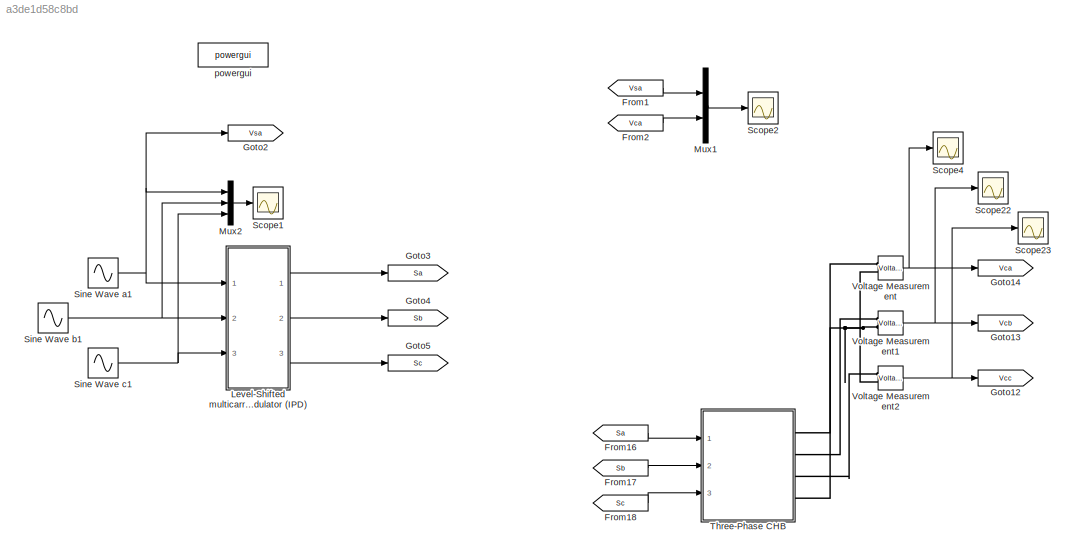
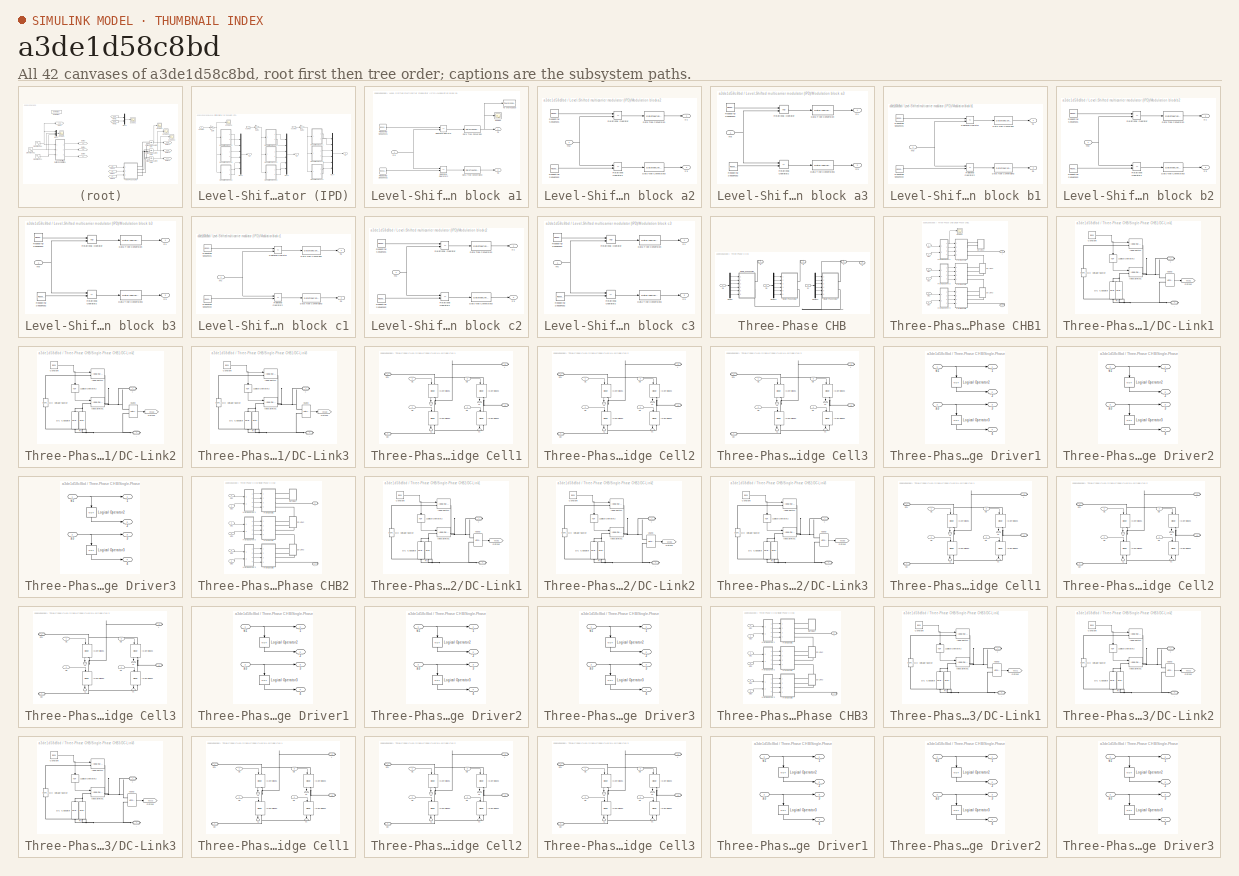
[diagram: thumbnail index - all 42 canvases of the model, root first then tree order]
MODEL slx_a3de1d58c8bd
KIND model
CONFIG InitFcn = GlobalParam;
BLOCK [From] From1
  GotoTag = Vsa
BLOCK [From] From16
  GotoTag = Sa
BLOCK [From] From17
  GotoTag = Sb
BLOCK [From] From18
  GotoTag = Sc
BLOCK [From] From2
  GotoTag = Vca
BLOCK [Goto] Goto12
  GotoTag = Vcc
BLOCK [Goto] Goto13
  GotoTag = Vcb
BLOCK [Goto] Goto14
  GotoTag = Vca
BLOCK [Goto] Goto2
  GotoTag = Vsa
BLOCK [Goto] Goto3
  GotoTag = Sa
BLOCK [Goto] Goto4
  GotoTag = Sb
BLOCK [Goto] Goto5
  GotoTag = Sc
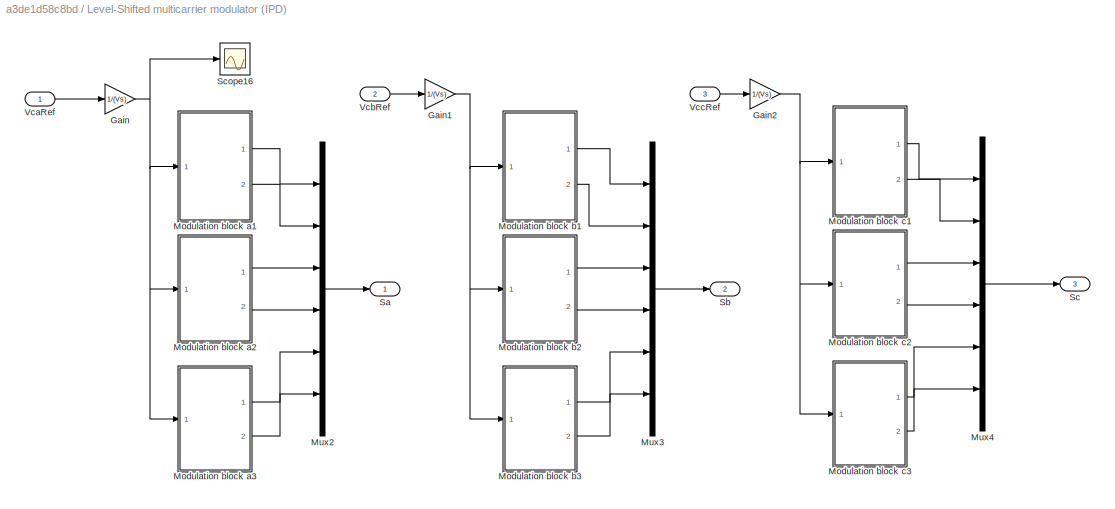
BLOCK [SubSystem] Level-Shifted multicarrier modulator (IPD)
  Ports = [3, 3]
  RequestExecContextInheritance = off
BLOCK [Gain] Level-Shifted multicarrier modulator (IPD)/Gain
  Gain = 1/(Vs)
  OutDataTypeStr = Inherit: Inherit via internal rule
  ParamDataTypeStr = Inherit: Inherit via internal rule
  SaturateOnIntegerOverflow = off
BLOCK [Gain] Level-Shifted multicarrier modulator (IPD)/Gain1
  Gain = 1/(Vs)
  OutDataTypeStr = Inherit: Inherit via internal rule
  ParamDataTypeStr = Inherit: Inherit via internal rule
  SaturateOnIntegerOverflow = off
BLOCK [Gain] Level-Shifted multicarrier modulator (IPD)/Gain2
  Gain = 1/(Vs)
  OutDataTypeStr = Inherit: Inherit via internal rule
  ParamDataTypeStr = Inherit: Inherit via internal rule
  SaturateOnIntegerOverflow = off
BLOCK [SubSystem] Level-Shifted multicarrier modulator (IPD)/Modulation block a1
  Ports = [1, 2]
  RequestExecContextInheritance = off
BLOCK [DataTypeConversion] Level-Shifted multicarrier modulator (IPD)/Modulation block a1/Data Type Conversion
  OutDataTypeStr = double
  RndMeth = Floor
  SaturateOnIntegerOverflow = off
BLOCK [DataTypeConversion] Level-Shifted multicarrier modulator (IPD)/Modulation block a1/Data Type Conversion3
  OutDataTypeStr = double
  RndMeth = Floor
  SaturateOnIntegerOverflow = off
BLOCK [RelationalOperator] Level-Shifted multicarrier modulator (IPD)/Modulation block a1/Relational Operator
  InputSameDT = off
  Operator = <=
  OutDataTypeStr = boolean
  Ports = [2, 1]
BLOCK [RelationalOperator] Level-Shifted multicarrier modulator (IPD)/Modulation block a1/Relational Operator2
  InputSameDT = off
  Operator = <=
  OutDataTypeStr = boolean
  Ports = [2, 1]
BLOCK [Reference] Level-Shifted multicarrier modulator (IPD)/Modulation block a1/Repeating Sequence1  REF=simulink/Sources/Repeating
Sequence
  Ports = [0, 1]
  SourceBlock = simulink/Sources/Repeating\nSequence
  SourceType = Repeating table
  rep_seq_t = [0 (1/fm)/2  1/fm]
  rep_seq_y = [2/3 1 2/3]
BLOCK [Reference] Level-Shifted multicarrier modulator (IPD)/Modulation block a1/Repeating Sequence2  REF=simulink/Sources/Repeating
Sequence
  Ports = [0, 1]
  SourceBlock = simulink/Sources/Repeating\nSequence
  SourceType = Repeating table
  rep_seq_t = [0 (1/fm)/2  1/fm]
  rep_seq_y = [-1 -2/3 -1]
BLOCK [Outport] Level-Shifted multicarrier modulator (IPD)/Modulation block a1/S1
  IconDisplay = Port number
BLOCK [Outport] Level-Shifted multicarrier modulator (IPD)/Modulation block a1/S3
  IconDisplay = Port number
  Port = 2
BLOCK [Scope] Level-Shifted multicarrier modulator (IPD)/Modulation block a1/Scope1
  DataFormat = StructureWithTime
  Floating = off
  NumInputPorts = 1
  Ports = [1]
  SampleTime = 0
  SaveName = ScopeData1
  ShowLegends = off
BLOCK [ToWorkspace] Level-Shifted multicarrier modulator (IPD)/Modulation block a1/To Workspace
  MaxDataPoints = inf
  Ports = [1]
  SampleTime = -1
  SaveFormat = Timeseries
  VariableName = S11
BLOCK [Inport] Level-Shifted multicarrier modulator (IPD)/Modulation block a1/ma
  IconDisplay = Port number
BLOCK [SubSystem] Level-Shifted multicarrier modulator (IPD)/Modulation block a2
  Ports = [1, 2]
  RequestExecContextInheritance = off
BLOCK [DataTypeConversion] Level-Shifted multicarrier modulator (IPD)/Modulation block a2/Data Type Conversion
  OutDataTypeStr = double
  RndMeth = Floor
  SaturateOnIntegerOverflow = off
BLOCK [DataTypeConversion] Level-Shifted multicarrier modulator (IPD)/Modulation block a2/Data Type Conversion3
  OutDataTypeStr = double
  RndMeth = Floor
  SaturateOnIntegerOverflow = off
BLOCK [RelationalOperator] Level-Shifted multicarrier modulator (IPD)/Modulation block a2/Relational Operator
  InputSameDT = off
  Operator = <=
  OutDataTypeStr = boolean
  Ports = [2, 1]
BLOCK [RelationalOperator] Level-Shifted multicarrier modulator (IPD)/Modulation block a2/Relational Operator2
  InputSameDT = off
  Operator = <=
  OutDataTypeStr = boolean
  Ports = [2, 1]
BLOCK [Reference] Level-Shifted multicarrier modulator (IPD)/Modulation block a2/Repeating Sequence1  REF=simulink/Sources/Repeating
Sequence
  Ports = [0, 1]
  SourceBlock = simulink/Sources/Repeating\nSequence
  SourceType = Repeating table
  rep_seq_t = [0 (1/fm)/2  1/fm]
  rep_seq_y = [2/6 2/3 2/6]
BLOCK [Reference] Level-Shifted multicarrier modulator (IPD)/Modulation block a2/Repeating Sequence2  REF=simulink/Sources/Repeating
Sequence
  Ports = [0, 1]
  SourceBlock = simulink/Sources/Repeating\nSequence
  SourceType = Repeating table
  rep_seq_t = [0 (1/fm)/2  1/fm]
  rep_seq_y = [-2/3 -2/6 -2/3]
BLOCK [Outport] Level-Shifted multicarrier modulator (IPD)/Modulation block a2/S1
  IconDisplay = Port number
BLOCK [Outport] Level-Shifted multicarrier modulator (IPD)/Modulation block a2/S3
  IconDisplay = Port number
  Port = 2
BLOCK [Inport] Level-Shifted multicarrier modulator (IPD)/Modulation block a2/ma
  IconDisplay = Port number
BLOCK [SubSystem] Level-Shifted multicarrier modulator (IPD)/Modulation block a3
  Ports = [1, 2]
  RequestExecContextInheritance = off
BLOCK [DataTypeConversion] Level-Shifted multicarrier modulator (IPD)/Modulation block a3/Data Type Conversion
  OutDataTypeStr = double
  RndMeth = Floor
  SaturateOnIntegerOverflow = off
BLOCK [DataTypeConversion] Level-Shifted multicarrier modulator (IPD)/Modulation block a3/Data Type Conversion3
  OutDataTypeStr = double
  RndMeth = Floor
  SaturateOnIntegerOverflow = off
BLOCK [RelationalOperator] Level-Shifted multicarrier modulator (IPD)/Modulation block a3/Relational Operator
  InputSameDT = off
  OutDataTypeStr = boolean
  Ports = [2, 1]
BLOCK [RelationalOperator] Level-Shifted multicarrier modulator (IPD)/Modulation block a3/Relational Operator2
  InputSameDT = off
  Operator = <=
  OutDataTypeStr = boolean
  Ports = [2, 1]
BLOCK [Reference] Level-Shifted multicarrier modulator (IPD)/Modulation block a3/Repeating Sequence1  REF=simulink/Sources/Repeating
Sequence
  Ports = [0, 1]
  SourceBlock = simulink/Sources/Repeating\nSequence
  SourceType = Repeating table
  rep_seq_t = [0 (1/fm)/2  1/fm]
  rep_seq_y = [0 2/6 0]
BLOCK [Reference] Level-Shifted multicarrier modulator (IPD)/Modulation block a3/Repeating Sequence2  REF=simulink/Sources/Repeating
Sequence
  Ports = [0, 1]
  SourceBlock = simulink/Sources/Repeating\nSequence
  SourceType = Repeating table
  rep_seq_t = [0 (1/fm)/2  1/fm]
  rep_seq_y = [-2/6 0 -2/6]
BLOCK [Outport] Level-Shifted multicarrier modulator (IPD)/Modulation block a3/S1
  IconDisplay = Port number
BLOCK [Outport] Level-Shifted multicarrier modulator (IPD)/Modulation block a3/S3
  IconDisplay = Port number
  Port = 2
BLOCK [Inport] Level-Shifted multicarrier modulator (IPD)/Modulation block a3/ma
  IconDisplay = Port number
BLOCK [SubSystem] Level-Shifted multicarrier modulator (IPD)/Modulation block b1
  Ports = [1, 2]
  RequestExecContextInheritance = off
BLOCK [DataTypeConversion] Level-Shifted multicarrier modulator (IPD)/Modulation block b1/Data Type Conversion
  OutDataTypeStr = double
  RndMeth = Floor
  SaturateOnIntegerOverflow = off
BLOCK [DataTypeConversion] Level-Shifted multicarrier modulator (IPD)/Modulation block b1/Data Type Conversion3
  OutDataTypeStr = double
  RndMeth = Floor
  SaturateOnIntegerOverflow = off
BLOCK [RelationalOperator] Level-Shifted multicarrier modulator (IPD)/Modulation block b1/Relational Operator
  InputSameDT = off
  Operator = <=
  OutDataTypeStr = boolean
  Ports = [2, 1]
BLOCK [RelationalOperator] Level-Shifted multicarrier modulator (IPD)/Modulation block b1/Relational Operator2
  InputSameDT = off
  Operator = <=
  OutDataTypeStr = boolean
  Ports = [2, 1]
BLOCK [Reference] Level-Shifted multicarrier modulator (IPD)/Modulation block b1/Repeating Sequence1  REF=simulink/Sources/Repeating
Sequence
  Ports = [0, 1]
  SourceBlock = simulink/Sources/Repeating\nSequence
  SourceType = Repeating table
  rep_seq_t = [0 (1/fm)/2  1/fm]
  rep_seq_y = [2/3 1 2/3]
BLOCK [Reference] Level-Shifted multicarrier modulator (IPD)/Modulation block b1/Repeating Sequence2  REF=simulink/Sources/Repeating
Sequence
  Ports = [0, 1]
  SourceBlock = simulink/Sources/Repeating\nSequence
  SourceType = Repeating table
  rep_seq_t = [0 (1/fm)/2  1/fm]
  rep_seq_y = [-1 -2/3 -1]
BLOCK [Outport] Level-Shifted multicarrier modulator (IPD)/Modulation block b1/S1
  IconDisplay = Port number
BLOCK [Outport] Level-Shifted multicarrier modulator (IPD)/Modulation block b1/S3
  IconDisplay = Port number
  Port = 2
BLOCK [Inport] Level-Shifted multicarrier modulator (IPD)/Modulation block b1/mb
  IconDisplay = Port number
BLOCK [SubSystem] Level-Shifted multicarrier modulator (IPD)/Modulation block b2
  Ports = [1, 2]
  RequestExecContextInheritance = off
BLOCK [DataTypeConversion] Level-Shifted multicarrier modulator (IPD)/Modulation block b2/Data Type Conversion
  OutDataTypeStr = double
  RndMeth = Floor
  SaturateOnIntegerOverflow = off
BLOCK [DataTypeConversion] Level-Shifted multicarrier modulator (IPD)/Modulation block b2/Data Type Conversion3
  OutDataTypeStr = double
  RndMeth = Floor
  SaturateOnIntegerOverflow = off
BLOCK [RelationalOperator] Level-Shifted multicarrier modulator (IPD)/Modulation block b2/Relational Operator
  InputSameDT = off
  Operator = <=
  OutDataTypeStr = boolean
  Ports = [2, 1]
BLOCK [RelationalOperator] Level-Shifted multicarrier modulator (IPD)/Modulation block b2/Relational Operator2
  InputSameDT = off
  Operator = <=
  OutDataTypeStr = boolean
  Ports = [2, 1]
BLOCK [Reference] Level-Shifted multicarrier modulator (IPD)/Modulation block b2/Repeating Sequence1  REF=simulink/Sources/Repeating
Sequence
  Ports = [0, 1]
  SourceBlock = simulink/Sources/Repeating\nSequence
  SourceType = Repeating table
  rep_seq_t = [0 (1/fm)/2  1/fm]
  rep_seq_y = [2/6 2/3 2/6]
BLOCK [Reference] Level-Shifted multicarrier modulator (IPD)/Modulation block b2/Repeating Sequence2  REF=simulink/Sources/Repeating
Sequence
  Ports = [0, 1]
  SourceBlock = simulink/Sources/Repeating\nSequence
  SourceType = Repeating table
  rep_seq_t = [0 (1/fm)/2  1/fm]
  rep_seq_y = [-2/3 -2/6 -2/3]
BLOCK [Outport] Level-Shifted multicarrier modulator (IPD)/Modulation block b2/S1
  IconDisplay = Port number
BLOCK [Outport] Level-Shifted multicarrier modulator (IPD)/Modulation block b2/S3
  IconDisplay = Port number
  Port = 2
BLOCK [Inport] Level-Shifted multicarrier modulator (IPD)/Modulation block b2/mb
  IconDisplay = Port number
BLOCK [SubSystem] Level-Shifted multicarrier modulator (IPD)/Modulation block b3
  Ports = [1, 2]
  RequestExecContextInheritance = off
BLOCK [DataTypeConversion] Level-Shifted multicarrier modulator (IPD)/Modulation block b3/Data Type Conversion
  OutDataTypeStr = double
  RndMeth = Floor
  SaturateOnIntegerOverflow = off
BLOCK [DataTypeConversion] Level-Shifted multicarrier modulator (IPD)/Modulation block b3/Data Type Conversion3
  OutDataTypeStr = double
  RndMeth = Floor
  SaturateOnIntegerOverflow = off
BLOCK [RelationalOperator] Level-Shifted multicarrier modulator (IPD)/Modulation block b3/Relational Operator
  InputSameDT = off
  OutDataTypeStr = boolean
  Ports = [2, 1]
BLOCK [RelationalOperator] Level-Shifted multicarrier modulator (IPD)/Modulation block b3/Relational Operator2
  InputSameDT = off
  Operator = <=
  OutDataTypeStr = boolean
  Ports = [2, 1]
BLOCK [Reference] Level-Shifted multicarrier modulator (IPD)/Modulation block b3/Repeating Sequence1  REF=simulink/Sources/Repeating
Sequence
  Ports = [0, 1]
  SourceBlock = simulink/Sources/Repeating\nSequence
  SourceType = Repeating table
  rep_seq_t = [0 (1/fm)/2  1/fm]
  rep_seq_y = [0 2/6 0]
BLOCK [Reference] Level-Shifted multicarrier modulator (IPD)/Modulation block b3/Repeating Sequence2  REF=simulink/Sources/Repeating
Sequence
  Ports = [0, 1]
  SourceBlock = simulink/Sources/Repeating\nSequence
  SourceType = Repeating table
  rep_seq_t = [0 (1/fm)/2  1/fm]
  rep_seq_y = [-2/6 0 -2/6]
BLOCK [Outport] Level-Shifted multicarrier modulator (IPD)/Modulation block b3/S1
  IconDisplay = Port number
BLOCK [Outport] Level-Shifted multicarrier modulator (IPD)/Modulation block b3/S3
  IconDisplay = Port number
  Port = 2
BLOCK [Inport] Level-Shifted multicarrier modulator (IPD)/Modulation block b3/mb
  IconDisplay = Port number
BLOCK [SubSystem] Level-Shifted multicarrier modulator (IPD)/Modulation block c1
  Ports = [1, 2]
  RequestExecContextInheritance = off
BLOCK [DataTypeConversion] Level-Shifted multicarrier modulator (IPD)/Modulation block c1/Data Type Conversion
  OutDataTypeStr = double
  RndMeth = Floor
  SaturateOnIntegerOverflow = off
BLOCK [DataTypeConversion] Level-Shifted multicarrier modulator (IPD)/Modulation block c1/Data Type Conversion3
  OutDataTypeStr = double
  RndMeth = Floor
  SaturateOnIntegerOverflow = off
BLOCK [RelationalOperator] Level-Shifted multicarrier modulator (IPD)/Modulation block c1/Relational Operator
  InputSameDT = off
  Operator = <=
  OutDataTypeStr = boolean
  Ports = [2, 1]
BLOCK [RelationalOperator] Level-Shifted multicarrier modulator (IPD)/Modulation block c1/Relational Operator2
  InputSameDT = off
  Operator = <=
  OutDataTypeStr = boolean
  Ports = [2, 1]
BLOCK [Reference] Level-Shifted multicarrier modulator (IPD)/Modulation block c1/Repeating Sequence1  REF=simulink/Sources/Repeating
Sequence
  Ports = [0, 1]
  SourceBlock = simulink/Sources/Repeating\nSequence
  SourceType = Repeating table
  rep_seq_t = [0 (1/fm)/2  1/fm]
  rep_seq_y = [2/3 1 2/3]
BLOCK [Reference] Level-Shifted multicarrier modulator (IPD)/Modulation block c1/Repeating Sequence2  REF=simulink/Sources/Repeating
Sequence
  Ports = [0, 1]
  SourceBlock = simulink/Sources/Repeating\nSequence
  SourceType = Repeating table
  rep_seq_t = [0 (1/fm)/2  1/fm]
  rep_seq_y = [-1 -2/3 -1]
BLOCK [Outport] Level-Shifted multicarrier modulator (IPD)/Modulation block c1/S1
  IconDisplay = Port number
BLOCK [Outport] Level-Shifted multicarrier modulator (IPD)/Modulation block c1/S3
  IconDisplay = Port number
  Port = 2
BLOCK [Inport] Level-Shifted multicarrier modulator (IPD)/Modulation block c1/mc
  IconDisplay = Port number
BLOCK [SubSystem] Level-Shifted multicarrier modulator (IPD)/Modulation block c2
  Ports = [1, 2]
  RequestExecContextInheritance = off
BLOCK [DataTypeConversion] Level-Shifted multicarrier modulator (IPD)/Modulation block c2/Data Type Conversion
  OutDataTypeStr = double
  RndMeth = Floor
  SaturateOnIntegerOverflow = off
BLOCK [DataTypeConversion] Level-Shifted multicarrier modulator (IPD)/Modulation block c2/Data Type Conversion3
  OutDataTypeStr = double
  RndMeth = Floor
  SaturateOnIntegerOverflow = off
BLOCK [RelationalOperator] Level-Shifted multicarrier modulator (IPD)/Modulation block c2/Relational Operator
  InputSameDT = off
  Operator = <=
  OutDataTypeStr = boolean
  Ports = [2, 1]
BLOCK [RelationalOperator] Level-Shifted multicarrier modulator (IPD)/Modulation block c2/Relational Operator2
  InputSameDT = off
  Operator = <=
  OutDataTypeStr = boolean
  Ports = [2, 1]
BLOCK [Reference] Level-Shifted multicarrier modulator (IPD)/Modulation block c2/Repeating Sequence1  REF=simulink/Sources/Repeating
Sequence
  Ports = [0, 1]
  SourceBlock = simulink/Sources/Repeating\nSequence
  SourceType = Repeating table
  rep_seq_t = [0 (1/fm)/2  1/fm]
  rep_seq_y = [2/6 2/3 2/6]
BLOCK [Reference] Level-Shifted multicarrier modulator (IPD)/Modulation block c2/Repeating Sequence2  REF=simulink/Sources/Repeating
Sequence
  Ports = [0, 1]
  SourceBlock = simulink/Sources/Repeating\nSequence
  SourceType = Repeating table
  rep_seq_t = [0 (1/fm)/2  1/fm]
  rep_seq_y = [-2/3 -2/6 -2/3]
BLOCK [Outport] Level-Shifted multicarrier modulator (IPD)/Modulation block c2/S1
  IconDisplay = Port number
BLOCK [Outport] Level-Shifted multicarrier modulator (IPD)/Modulation block c2/S3
  IconDisplay = Port number
  Port = 2
BLOCK [Inport] Level-Shifted multicarrier modulator (IPD)/Modulation block c2/mc
  IconDisplay = Port number
BLOCK [SubSystem] Level-Shifted multicarrier modulator (IPD)/Modulation block c3
  Ports = [1, 2]
  RequestExecContextInheritance = off
BLOCK [DataTypeConversion] Level-Shifted multicarrier modulator (IPD)/Modulation block c3/Data Type Conversion
  OutDataTypeStr = double
  RndMeth = Floor
  SaturateOnIntegerOverflow = off
BLOCK [DataTypeConversion] Level-Shifted multicarrier modulator (IPD)/Modulation block c3/Data Type Conversion3
  OutDataTypeStr = double
  RndMeth = Floor
  SaturateOnIntegerOverflow = off
BLOCK [RelationalOperator] Level-Shifted multicarrier modulator (IPD)/Modulation block c3/Relational Operator
  InputSameDT = off
  OutDataTypeStr = boolean
  Ports = [2, 1]
BLOCK [RelationalOperator] Level-Shifted multicarrier modulator (IPD)/Modulation block c3/Relational Operator2
  InputSameDT = off
  Operator = <=
  OutDataTypeStr = boolean
  Ports = [2, 1]
BLOCK [Reference] Level-Shifted multicarrier modulator (IPD)/Modulation block c3/Repeating Sequence1  REF=simulink/Sources/Repeating
Sequence
  Ports = [0, 1]
  SourceBlock = simulink/Sources/Repeating\nSequence
  SourceType = Repeating table
  rep_seq_t = [0 (1/fm)/2  1/fm]
  rep_seq_y = [0 2/6 0]
BLOCK [Reference] Level-Shifted multicarrier modulator (IPD)/Modulation block c3/Repeating Sequence2  REF=simulink/Sources/Repeating
Sequence
  Ports = [0, 1]
  SourceBlock = simulink/Sources/Repeating\nSequence
  SourceType = Repeating table
  rep_seq_t = [0 (1/fm)/2  1/fm]
  rep_seq_y = [-2/6 0 -2/6]
BLOCK [Outport] Level-Shifted multicarrier modulator (IPD)/Modulation block c3/S1
  IconDisplay = Port number
BLOCK [Outport] Level-Shifted multicarrier modulator (IPD)/Modulation block c3/S3
  IconDisplay = Port number
  Port = 2
BLOCK [Inport] Level-Shifted multicarrier modulator (IPD)/Modulation block c3/mc
  IconDisplay = Port number
BLOCK [Mux] Level-Shifted multicarrier modulator (IPD)/Mux2
  DisplayOption = bar
  Inputs = 6
  Ports = [6, 1]
BLOCK [Mux] Level-Shifted multicarrier modulator (IPD)/Mux3
  DisplayOption = bar
  Inputs = 6
  Ports = [6, 1]
BLOCK [Mux] Level-Shifted multicarrier modulator (IPD)/Mux4
  DisplayOption = bar
  Inputs = 6
  Ports = [6, 1]
BLOCK [Outport] Level-Shifted multicarrier modulator (IPD)/Sa
  IconDisplay = Port number
BLOCK [Outport] Level-Shifted multicarrier modulator (IPD)/Sb
  IconDisplay = Port number
  Port = 2
BLOCK [Outport] Level-Shifted multicarrier modulator (IPD)/Sc
  IconDisplay = Port number
  Port = 3
BLOCK [Scope] Level-Shifted multicarrier modulator (IPD)/Scope16
  Floating = off
  LimitDataPoints = off
  NumInputPorts = 1
  Ports = [1]
  SampleTime = 0
  SaveName = vcareftri
  SaveToWorkspace = on
  ShowLegends = off
  YMax = 0.7
  YMin = -1
BLOCK [Inport] Level-Shifted multicarrier modulator (IPD)/VcaRef
  IconDisplay = Port number
BLOCK [Inport] Level-Shifted multicarrier modulator (IPD)/VcbRef
  IconDisplay = Port number
  Port = 2
BLOCK [Inport] Level-Shifted multicarrier modulator (IPD)/VccRef
  IconDisplay = Port number
  Port = 3
BLOCK [Mux] Mux1
  DisplayOption = bar
  Inputs = 2
  Ports = [2, 1]
BLOCK [Mux] Mux2
  DisplayOption = bar
  Inputs = 3
  Ports = [3, 1]
BLOCK [Scope] Scope1
  DataFormat = StructureWithTime
  Floating = off
  LimitDataPoints = off
  NumInputPorts = 1
  Ports = [1]
  SampleTime = 0
  SaveName = vca1
  ShowLegends = off
  YMax = 37500
  YMin = -2500
BLOCK [Scope] Scope2
  DataFormat = StructureWithTime
  Floating = off
  LimitDataPoints = off
  NumInputPorts = 1
  Ports = [1]
  SampleTime = 0
  SaveName = vca2
  ShowLegends = off
  YMax = 350
  YMin = -350
BLOCK [Scope] Scope22
  DataFormat = StructureWithTime
  Floating = off
  LimitDataPoints = off
  NumInputPorts = 1
  Ports = [1]
  SampleTime = 0
  SaveName = vcb
  SaveToWorkspace = on
  ShowLegends = off
  YMax = 37500
  YMin = -2500
BLOCK [Scope] Scope23
  DataFormat = StructureWithTime
  Floating = off
  LimitDataPoints = off
  NumInputPorts = 1
  Ports = [1]
  SampleTime = 0
  SaveName = vcc
  SaveToWorkspace = on
  ShowLegends = off
  YMax = 37500
  YMin = -2500
BLOCK [Scope] Scope4
  DataFormat = StructureWithTime
  Floating = off
  LimitDataPoints = off
  NumInputPorts = 1
  Ports = [1]
  SampleTime = 0
  SaveName = vca
  SaveToWorkspace = on
  ShowLegends = off
  YMax = 37500
  YMin = -2500
BLOCK [Sin] Sine Wave a1
  Amplitude = Vs
  Frequency = we
  Ports = [0, 1]
  SampleTime = 0
BLOCK [Sin] Sine Wave b1
  Amplitude = Vs
  Frequency = we
  Phase = tetab*pi/180
  Ports = [0, 1]
  SampleTime = 0
BLOCK [Sin] Sine Wave c1
  Amplitude = Vs
  Frequency = we
  Phase = tetac*pi/180
  Ports = [0, 1]
  SampleTime = 0
BLOCK [SubSystem] Three-Phase CHB
  Ports = [3, 0, 0, 0, 0, 0, 4]
  RequestExecContextInheritance = off
BLOCK [Demux] Three-Phase CHB/Demux
  DisplayOption = bar
  Outputs = 6
  Ports = [1, 6]
BLOCK [Demux] Three-Phase CHB/Demux1
  DisplayOption = bar
  Outputs = 6
  Ports = [1, 6]
BLOCK [Demux] Three-Phase CHB/Demux2
  DisplayOption = bar
  Outputs = 6
  Ports = [1, 6]
BLOCK [Inport] Three-Phase CHB/Sa
  IconDisplay = Port number
BLOCK [Inport] Three-Phase CHB/Sb
  IconDisplay = Port number
  Port = 2
BLOCK [Inport] Three-Phase CHB/Sc
  IconDisplay = Port number
  Port = 3
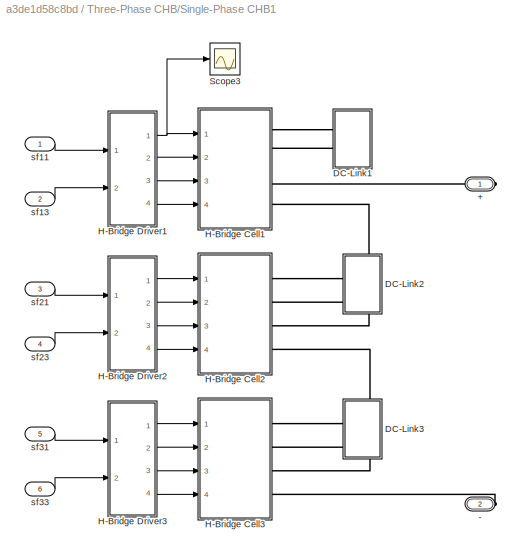
BLOCK [SubSystem] Three-Phase CHB/Single-Phase CHB1
  Ports = [6, 0, 0, 0, 0, 0, 2]
  RequestExecContextInheritance = off
BLOCK [PMIOPort] Three-Phase CHB/Single-Phase CHB1/+
  Port = 1
  Side = Right
BLOCK [PMIOPort] Three-Phase CHB/Single-Phase CHB1/-
  Port = 2
  Side = Right
BLOCK [SubSystem] Three-Phase CHB/Single-Phase CHB1/DC-Link1
  Ports = [0, 0, 0, 0, 0, 0, 2]
  RequestExecContextInheritance = off
BLOCK [PMIOPort] Three-Phase CHB/Single-Phase CHB1/DC-Link1/+
  Port = 1
  Side = Right
BLOCK [PMIOPort] Three-Phase CHB/Single-Phase CHB1/DC-Link1/-
  Port = 2
  Side = Right
BLOCK [Constant] Three-Phase CHB/Single-Phase CHB1/DC-Link1/Constant
  Value = Ideal
BLOCK [Reference] Three-Phase CHB/Single-Phase CHB1/DC-Link1/DC Capacitor  REF=powerlib/Elements/Series RLC Branch
  BranchType = C
  Capacitance = Cdc
  Inductance = 0.002996
  InitialCurrent = 0
  InitialVoltage = Vodc
  LConnTagsString = __new0
  Measurements = None
  Ports = [0, 0, 0, 0, 0, 1, 1]
  RConnTagsString = __new0
  Resistance = 0.09
  SetiL0 = off
  Setx0 = on
  SourceBlock = powerlib/Elements/Series RLC Branch
  SourceType = Series RLC Branch
BLOCK [Reference] Three-Phase CHB/Single-Phase CHB1/DC-Link1/DC Voltage Source  REF=powerlib/Electrical
Sources/DC Voltage Source
  Amplitude = Vdc
  Measurements = None
  Ports = [0, 0, 0, 0, 0, 1, 1]
  SourceBlock = powerlib/Electrical\nSources/DC Voltage Source
  SourceType = DC Voltage Source
BLOCK [Goto] Three-Phase CHB/Single-Phase CHB1/DC-Link1/Goto16
  GotoTag = Vcca1
  TagVisibility = global
BLOCK [Reference] Three-Phase CHB/Single-Phase CHB1/DC-Link1/Ideal Switch  REF=powerlib/Power
Electronics/Ideal Switch
  Cs = inf
  IC = 0
  Lon = 0
  Measurements = on
  Ports = [1, 1, 0, 0, 0, 1, 1]
  Ron = 0.001
  Rs = 1e5
  SourceBlock = powerlib/Power\nElectronics/Ideal Switch
  SourceType = Ideal Switch
BLOCK [Reference] Three-Phase CHB/Single-Phase CHB1/DC-Link1/Ideal Switch1  REF=powerlib/Power
Electronics/Ideal Switch
  Cs = inf
  IC = 0
  Lon = 0
  Measurements = on
  Ports = [1, 1, 0, 0, 0, 1, 1]
  Ron = 0.001
  Rs = 1e5
  SourceBlock = powerlib/Power\nElectronics/Ideal Switch
  SourceType = Ideal Switch
BLOCK [Logic] Three-Phase CHB/Single-Phase CHB1/DC-Link1/Logical Operator2
  AllPortsSameDT = off
  Operator = NOT
  OutDataTypeStr = boolean
  Ports = [1, 1]
BLOCK [Reference] Three-Phase CHB/Single-Phase CHB1/DC-Link1/R1  REF=powerlib/Elements/Series RLC Branch
  BranchType = R
  Capacitance = 1e-6
  Inductance = Lf
  InitialCurrent = 0
  InitialVoltage = 0
  LConnTagsString = __new0
  Measurements = None
  Ports = [0, 0, 0, 0, 0, 1, 1]
  RConnTagsString = __new0
  Resistance = Rdc
  SetiL0 = off
  Setx0 = off
  SourceBlock = powerlib/Elements/Series RLC Branch
  SourceType = Series RLC Branch
BLOCK [Reference] Three-Phase CHB/Single-Phase CHB1/DC-Link1/Vcan3  REF=powerlib/Measurements/Voltage Measurement
  OutputType = Complex
  PSBequivalent = 0
  PhasorSimulation = off
  Ports = [0, 1, 0, 0, 0, 2]
  SourceBlock = powerlib/Measurements/Voltage Measurement
  SourceType = Voltage Measurement
BLOCK [SubSystem] Three-Phase CHB/Single-Phase CHB1/DC-Link2
  Ports = [0, 0, 0, 0, 0, 0, 2]
  RequestExecContextInheritance = off
BLOCK [PMIOPort] Three-Phase CHB/Single-Phase CHB1/DC-Link2/+
  Port = 1
  Side = Right
BLOCK [PMIOPort] Three-Phase CHB/Single-Phase CHB1/DC-Link2/-
  Port = 2
  Side = Right
BLOCK [Constant] Three-Phase CHB/Single-Phase CHB1/DC-Link2/Constant
  Value = Ideal
BLOCK [Reference] Three-Phase CHB/Single-Phase CHB1/DC-Link2/DC Capacitor  REF=powerlib/Elements/Series RLC Branch
  BranchType = C
  Capacitance = Cdc
  Inductance = 0.002996
  InitialCurrent = 0
  InitialVoltage = Vodc
  LConnTagsString = __new0
  Measurements = None
  Ports = [0, 0, 0, 0, 0, 1, 1]
  RConnTagsString = __new0
  Resistance = 0.09
  SetiL0 = off
  Setx0 = on
  SourceBlock = powerlib/Elements/Series RLC Branch
  SourceType = Series RLC Branch
BLOCK [Reference] Three-Phase CHB/Single-Phase CHB1/DC-Link2/DC Voltage Source  REF=powerlib/Electrical
Sources/DC Voltage Source
  Amplitude = Vdc
  Measurements = None
  Ports = [0, 0, 0, 0, 0, 1, 1]
  SourceBlock = powerlib/Electrical\nSources/DC Voltage Source
  SourceType = DC Voltage Source
BLOCK [Goto] Three-Phase CHB/Single-Phase CHB1/DC-Link2/Goto16
  GotoTag = Vcca2
  TagVisibility = global
BLOCK [Reference] Three-Phase CHB/Single-Phase CHB1/DC-Link2/Ideal Switch  REF=powerlib/Power
Electronics/Ideal Switch
  Cs = inf
  IC = 0
  Lon = 0
  Measurements = on
  Ports = [1, 1, 0, 0, 0, 1, 1]
  Ron = 0.001
  Rs = 1e5
  SourceBlock = powerlib/Power\nElectronics/Ideal Switch
  SourceType = Ideal Switch
BLOCK [Reference] Three-Phase CHB/Single-Phase CHB1/DC-Link2/Ideal Switch1  REF=powerlib/Power
Electronics/Ideal Switch
  Cs = inf
  IC = 0
  Lon = 0
  Measurements = on
  Ports = [1, 1, 0, 0, 0, 1, 1]
  Ron = 0.001
  Rs = 1e5
  SourceBlock = powerlib/Power\nElectronics/Ideal Switch
  SourceType = Ideal Switch
BLOCK [Logic] Three-Phase CHB/Single-Phase CHB1/DC-Link2/Logical Operator2
  AllPortsSameDT = off
  Operator = NOT
  OutDataTypeStr = boolean
  Ports = [1, 1]
BLOCK [Reference] Three-Phase CHB/Single-Phase CHB1/DC-Link2/R1  REF=powerlib/Elements/Series RLC Branch
  BranchType = R
  Capacitance = 1e-6
  Inductance = Lf
  InitialCurrent = 0
  InitialVoltage = 0
  LConnTagsString = __new0
  Measurements = None
  Ports = [0, 0, 0, 0, 0, 1, 1]
  RConnTagsString = __new0
  Resistance = Rdc
  SetiL0 = off
  Setx0 = off
  SourceBlock = powerlib/Elements/Series RLC Branch
  SourceType = Series RLC Branch
BLOCK [Reference] Three-Phase CHB/Single-Phase CHB1/DC-Link2/Vcan3  REF=powerlib/Measurements/Voltage Measurement
  OutputType = Complex
  PSBequivalent = 0
  PhasorSimulation = off
  Ports = [0, 1, 0, 0, 0, 2]
  SourceBlock = powerlib/Measurements/Voltage Measurement
  SourceType = Voltage Measurement
BLOCK [SubSystem] Three-Phase CHB/Single-Phase CHB1/DC-Link3
  Ports = [0, 0, 0, 0, 0, 0, 2]
  RequestExecContextInheritance = off
BLOCK [PMIOPort] Three-Phase CHB/Single-Phase CHB1/DC-Link3/+
  Port = 1
  Side = Right
BLOCK [PMIOPort] Three-Phase CHB/Single-Phase CHB1/DC-Link3/-
  Port = 2
  Side = Right
BLOCK [Constant] Three-Phase CHB/Single-Phase CHB1/DC-Link3/Constant
  Value = Ideal
BLOCK [Reference] Three-Phase CHB/Single-Phase CHB1/DC-Link3/DC Capacitor  REF=powerlib/Elements/Series RLC Branch
  BranchType = C
  Capacitance = Cdc
  Inductance = 0.002996
  InitialCurrent = 0
  InitialVoltage = Vodc
  LConnTagsString = __new0
  Measurements = None
  Ports = [0, 0, 0, 0, 0, 1, 1]
  RConnTagsString = __new0
  Resistance = 0.09
  SetiL0 = off
  Setx0 = on
  SourceBlock = powerlib/Elements/Series RLC Branch
  SourceType = Series RLC Branch
BLOCK [Reference] Three-Phase CHB/Single-Phase CHB1/DC-Link3/DC Voltage Source  REF=powerlib/Electrical
Sources/DC Voltage Source
  Amplitude = Vdc
  Measurements = None
  Ports = [0, 0, 0, 0, 0, 1, 1]
  SourceBlock = powerlib/Electrical\nSources/DC Voltage Source
  SourceType = DC Voltage Source
BLOCK [Goto] Three-Phase CHB/Single-Phase CHB1/DC-Link3/Goto16
  GotoTag = Vcca3
  TagVisibility = global
BLOCK [Reference] Three-Phase CHB/Single-Phase CHB1/DC-Link3/Ideal Switch  REF=powerlib/Power
Electronics/Ideal Switch
  Cs = inf
  IC = 0
  Lon = 0
  Measurements = on
  Ports = [1, 1, 0, 0, 0, 1, 1]
  Ron = 0.001
  Rs = 1e5
  SourceBlock = powerlib/Power\nElectronics/Ideal Switch
  SourceType = Ideal Switch
BLOCK [Reference] Three-Phase CHB/Single-Phase CHB1/DC-Link3/Ideal Switch1  REF=powerlib/Power
Electronics/Ideal Switch
  Cs = inf
  IC = 0
  Lon = 0
  Measurements = on
  Ports = [1, 1, 0, 0, 0, 1, 1]
  Ron = 0.001
  Rs = 1e5
  SourceBlock = powerlib/Power\nElectronics/Ideal Switch
  SourceType = Ideal Switch
BLOCK [Logic] Three-Phase CHB/Single-Phase CHB1/DC-Link3/Logical Operator2
  AllPortsSameDT = off
  Operator = NOT
  OutDataTypeStr = boolean
  Ports = [1, 1]
BLOCK [Reference] Three-Phase CHB/Single-Phase CHB1/DC-Link3/R1  REF=powerlib/Elements/Series RLC Branch
  BranchType = R
  Capacitance = 1e-6
  Inductance = Lf
  InitialCurrent = 0
  InitialVoltage = 0
  LConnTagsString = __new0
  Measurements = None
  Ports = [0, 0, 0, 0, 0, 1, 1]
  RConnTagsString = __new0
  Resistance = Rdc
  SetiL0 = off
  Setx0 = off
  SourceBlock = powerlib/Elements/Series RLC Branch
  SourceType = Series RLC Branch
BLOCK [Reference] Three-Phase CHB/Single-Phase CHB1/DC-Link3/Vcan3  REF=powerlib/Measurements/Voltage Measurement
  OutputType = Complex
  PSBequivalent = 0
  PhasorSimulation = off
  Ports = [0, 1, 0, 0, 0, 2]
  SourceBlock = powerlib/Measurements/Voltage Measurement
  SourceType = Voltage Measurement
BLOCK [SubSystem] Three-Phase CHB/Single-Phase CHB1/H-Bridge Cell1
  Ports = [4, 0, 0, 0, 0, 0, 4]
  RequestExecContextInheritance = off
BLOCK [PMIOPort] Three-Phase CHB/Single-Phase CHB1/H-Bridge Cell1/+
  Port = 3
  Side = Right
BLOCK [PMIOPort] Three-Phase CHB/Single-Phase CHB1/H-Bridge Cell1/-
  Port = 4
  Side = Right
BLOCK [PMIOPort] Three-Phase CHB/Single-Phase CHB1/H-Bridge Cell1/DC+
  Port = 1
  Side = Right
BLOCK [PMIOPort] Three-Phase CHB/Single-Phase CHB1/H-Bridge Cell1/DC-
  Port = 2
  Side = Right
BLOCK [Reference] Three-Phase CHB/Single-Phase CHB1/H-Bridge Cell1/IGBT//Diode1  REF=powerlib/Power
Electronics/IGBT//Diode
  Cs = 0.5
  Measurements = on
  Ports = [1, 1, 0, 0, 0, 1, 1]
  Ron = 1e-3
  Rs = 1e5
  SourceBlock = powerlib/Power\nElectronics/IGBT//Diode
  SourceType = IGBT/Diode
BLOCK [Reference] Three-Phase CHB/Single-Phase CHB1/H-Bridge Cell1/IGBT//Diode2  REF=powerlib/Power
Electronics/IGBT//Diode
  Cs = 0.5
  Measurements = on
  Ports = [1, 1, 0, 0, 0, 1, 1]
  Ron = 1e-3
  Rs = 1e5
  SourceBlock = powerlib/Power\nElectronics/IGBT//Diode
  SourceType = IGBT/Diode
BLOCK [Reference] Three-Phase CHB/Single-Phase CHB1/H-Bridge Cell1/IGBT//Diode3  REF=powerlib/Power
Electronics/IGBT//Diode
  Cs = 0.5
  Measurements = on
  Ports = [1, 1, 0, 0, 0, 1, 1]
  Ron = 1e-3
  Rs = 1e5
  SourceBlock = powerlib/Power\nElectronics/IGBT//Diode
  SourceType = IGBT/Diode
BLOCK [Reference] Three-Phase CHB/Single-Phase CHB1/H-Bridge Cell1/IGBT//Diode4  REF=powerlib/Power
Electronics/IGBT//Diode
  Cs = 0.5
  Measurements = on
  Ports = [1, 1, 0, 0, 0, 1, 1]
  Ron = 1e-3
  Rs = 1e5
  SourceBlock = powerlib/Power\nElectronics/IGBT//Diode
  SourceType = IGBT/Diode
BLOCK [Terminator] Three-Phase CHB/Single-Phase CHB1/H-Bridge Cell1/T1
BLOCK [Terminator] Three-Phase CHB/Single-Phase CHB1/H-Bridge Cell1/T2
BLOCK [Terminator] Three-Phase CHB/Single-Phase CHB1/H-Bridge Cell1/T3
BLOCK [Terminator] Three-Phase CHB/Single-Phase CHB1/H-Bridge Cell1/T4
BLOCK [Inport] Three-Phase CHB/Single-Phase CHB1/H-Bridge Cell1/si1
  IconDisplay = Port number
BLOCK [Inport] Three-Phase CHB/Single-Phase CHB1/H-Bridge Cell1/si2
  IconDisplay = Port number
  Port = 2
BLOCK [Inport] Three-Phase CHB/Single-Phase CHB1/H-Bridge Cell1/si3
  IconDisplay = Port number
  Port = 3
BLOCK [Inport] Three-Phase CHB/Single-Phase CHB1/H-Bridge Cell1/si4
  IconDisplay = Port number
  Port = 4
BLOCK [SubSystem] Three-Phase CHB/Single-Phase CHB1/H-Bridge Cell2
  Ports = [4, 0, 0, 0, 0, 0, 4]
  RequestExecContextInheritance = off
BLOCK [PMIOPort] Three-Phase CHB/Single-Phase CHB1/H-Bridge Cell2/+
  Port = 3
  Side = Right
BLOCK [PMIOPort] Three-Phase CHB/Single-Phase CHB1/H-Bridge Cell2/-
  Port = 4
  Side = Right
BLOCK [PMIOPort] Three-Phase CHB/Single-Phase CHB1/H-Bridge Cell2/DC+
  Port = 1
  Side = Right
BLOCK [PMIOPort] Three-Phase CHB/Single-Phase CHB1/H-Bridge Cell2/DC-
  Port = 2
  Side = Right
BLOCK [Reference] Three-Phase CHB/Single-Phase CHB1/H-Bridge Cell2/IGBT//Diode1  REF=powerlib/Power
Electronics/IGBT//Diode
  Cs = 0.5
  Measurements = on
  Ports = [1, 1, 0, 0, 0, 1, 1]
  Ron = 1e-3
  Rs = 1e5
  SourceBlock = powerlib/Power\nElectronics/IGBT//Diode
  SourceType = IGBT/Diode
BLOCK [Reference] Three-Phase CHB/Single-Phase CHB1/H-Bridge Cell2/IGBT//Diode2  REF=powerlib/Power
Electronics/IGBT//Diode
  Cs = 0.5
  Measurements = on
  Ports = [1, 1, 0, 0, 0, 1, 1]
  Ron = 1e-3
  Rs = 1e5
  SourceBlock = powerlib/Power\nElectronics/IGBT//Diode
  SourceType = IGBT/Diode
BLOCK [Reference] Three-Phase CHB/Single-Phase CHB1/H-Bridge Cell2/IGBT//Diode3  REF=powerlib/Power
Electronics/IGBT//Diode
  Cs = 0.5
  Measurements = on
  Ports = [1, 1, 0, 0, 0, 1, 1]
  Ron = 1e-3
  Rs = 1e5
  SourceBlock = powerlib/Power\nElectronics/IGBT//Diode
  SourceType = IGBT/Diode
BLOCK [Reference] Three-Phase CHB/Single-Phase CHB1/H-Bridge Cell2/IGBT//Diode4  REF=powerlib/Power
Electronics/IGBT//Diode
  Cs = 0.5
  Measurements = on
  Ports = [1, 1, 0, 0, 0, 1, 1]
  Ron = 1e-3
  Rs = 1e5
  SourceBlock = powerlib/Power\nElectronics/IGBT//Diode
  SourceType = IGBT/Diode
BLOCK [Terminator] Three-Phase CHB/Single-Phase CHB1/H-Bridge Cell2/T1
BLOCK [Terminator] Three-Phase CHB/Single-Phase CHB1/H-Bridge Cell2/T2
BLOCK [Terminator] Three-Phase CHB/Single-Phase CHB1/H-Bridge Cell2/T3
BLOCK [Terminator] Three-Phase CHB/Single-Phase CHB1/H-Bridge Cell2/T4
BLOCK [Inport] Three-Phase CHB/Single-Phase CHB1/H-Bridge Cell2/si1
  IconDisplay = Port number
BLOCK [Inport] Three-Phase CHB/Single-Phase CHB1/H-Bridge Cell2/si2
  IconDisplay = Port number
  Port = 2
BLOCK [Inport] Three-Phase CHB/Single-Phase CHB1/H-Bridge Cell2/si3
  IconDisplay = Port number
  Port = 3
BLOCK [Inport] Three-Phase CHB/Single-Phase CHB1/H-Bridge Cell2/si4
  IconDisplay = Port number
  Port = 4
BLOCK [SubSystem] Three-Phase CHB/Single-Phase CHB1/H-Bridge Cell3
  Ports = [4, 0, 0, 0, 0, 0, 4]
  RequestExecContextInheritance = off
BLOCK [PMIOPort] Three-Phase CHB/Single-Phase CHB1/H-Bridge Cell3/+
  Port = 3
  Side = Right
BLOCK [PMIOPort] Three-Phase CHB/Single-Phase CHB1/H-Bridge Cell3/-
  Port = 4
  Side = Right
BLOCK [PMIOPort] Three-Phase CHB/Single-Phase CHB1/H-Bridge Cell3/DC+
  Port = 1
  Side = Right
BLOCK [PMIOPort] Three-Phase CHB/Single-Phase CHB1/H-Bridge Cell3/DC-
  Port = 2
  Side = Right
BLOCK [Reference] Three-Phase CHB/Single-Phase CHB1/H-Bridge Cell3/IGBT//Diode1  REF=powerlib/Power
Electronics/IGBT//Diode
  Cs = 0.5
  Measurements = on
  Ports = [1, 1, 0, 0, 0, 1, 1]
  Ron = 1e-3
  Rs = 1e5
  SourceBlock = powerlib/Power\nElectronics/IGBT//Diode
  SourceType = IGBT/Diode
BLOCK [Reference] Three-Phase CHB/Single-Phase CHB1/H-Bridge Cell3/IGBT//Diode2  REF=powerlib/Power
Electronics/IGBT//Diode
  Cs = 0.5
  Measurements = on
  Ports = [1, 1, 0, 0, 0, 1, 1]
  Ron = 1e-3
  Rs = 1e5
  SourceBlock = powerlib/Power\nElectronics/IGBT//Diode
  SourceType = IGBT/Diode
BLOCK [Reference] Three-Phase CHB/Single-Phase CHB1/H-Bridge Cell3/IGBT//Diode3  REF=powerlib/Power
Electronics/IGBT//Diode
  Cs = 0.5
  Measurements = on
  Ports = [1, 1, 0, 0, 0, 1, 1]
  Ron = 1e-3
  Rs = 1e5
  SourceBlock = powerlib/Power\nElectronics/IGBT//Diode
  SourceType = IGBT/Diode
BLOCK [Reference] Three-Phase CHB/Single-Phase CHB1/H-Bridge Cell3/IGBT//Diode4  REF=powerlib/Power
Electronics/IGBT//Diode
  Cs = 0.5
  Measurements = on
  Ports = [1, 1, 0, 0, 0, 1, 1]
  Ron = 1e-3
  Rs = 1e5
  SourceBlock = powerlib/Power\nElectronics/IGBT//Diode
  SourceType = IGBT/Diode
BLOCK [Terminator] Three-Phase CHB/Single-Phase CHB1/H-Bridge Cell3/T1
BLOCK [Terminator] Three-Phase CHB/Single-Phase CHB1/H-Bridge Cell3/T2
BLOCK [Terminator] Three-Phase CHB/Single-Phase CHB1/H-Bridge Cell3/T3
BLOCK [Terminator] Three-Phase CHB/Single-Phase CHB1/H-Bridge Cell3/T4
BLOCK [Inport] Three-Phase CHB/Single-Phase CHB1/H-Bridge Cell3/si1
  IconDisplay = Port number
BLOCK [Inport] Three-Phase CHB/Single-Phase CHB1/H-Bridge Cell3/si2
  IconDisplay = Port number
  Port = 2
BLOCK [Inport] Three-Phase CHB/Single-Phase CHB1/H-Bridge Cell3/si3
  IconDisplay = Port number
  Port = 3
BLOCK [Inport] Three-Phase CHB/Single-Phase CHB1/H-Bridge Cell3/si4
  IconDisplay = Port number
  Port = 4
BLOCK [SubSystem] Three-Phase CHB/Single-Phase CHB1/H-Bridge Driver1
  Ports = [2, 4]
  RequestExecContextInheritance = off
BLOCK [Outport] Three-Phase CHB/Single-Phase CHB1/H-Bridge Driver1/1
  IconDisplay = Port number
BLOCK [Outport] Three-Phase CHB/Single-Phase CHB1/H-Bridge Driver1/2
  IconDisplay = Port number
  Port = 2
BLOCK [Outport] Three-Phase CHB/Single-Phase CHB1/H-Bridge Driver1/3
  IconDisplay = Port number
  Port = 3
BLOCK [Outport] Three-Phase CHB/Single-Phase CHB1/H-Bridge Driver1/4
  IconDisplay = Port number
  Port = 4
BLOCK [Logic] Three-Phase CHB/Single-Phase CHB1/H-Bridge Driver1/Logical Operator2
  AllPortsSameDT = off
  Operator = NOT
  OutDataTypeStr = boolean
  Ports = [1, 1]
BLOCK [Logic] Three-Phase CHB/Single-Phase CHB1/H-Bridge Driver1/Logical Operator3
  AllPortsSameDT = off
  Operator = NOT
  OutDataTypeStr = boolean
  Ports = [1, 1]
BLOCK [Inport] Three-Phase CHB/Single-Phase CHB1/H-Bridge Driver1/si1
  IconDisplay = Port number
BLOCK [Inport] Three-Phase CHB/Single-Phase CHB1/H-Bridge Driver1/si3
  IconDisplay = Port number
  Port = 2
BLOCK [SubSystem] Three-Phase CHB/Single-Phase CHB1/H-Bridge Driver2
  Ports = [2, 4]
  RequestExecContextInheritance = off
BLOCK [Outport] Three-Phase CHB/Single-Phase CHB1/H-Bridge Driver2/1
  IconDisplay = Port number
BLOCK [Outport] Three-Phase CHB/Single-Phase CHB1/H-Bridge Driver2/2
  IconDisplay = Port number
  Port = 2
BLOCK [Outport] Three-Phase CHB/Single-Phase CHB1/H-Bridge Driver2/3
  IconDisplay = Port number
  Port = 3
BLOCK [Outport] Three-Phase CHB/Single-Phase CHB1/H-Bridge Driver2/4
  IconDisplay = Port number
  Port = 4
BLOCK [Logic] Three-Phase CHB/Single-Phase CHB1/H-Bridge Driver2/Logical Operator2
  AllPortsSameDT = off
  Operator = NOT
  OutDataTypeStr = boolean
  Ports = [1, 1]
BLOCK [Logic] Three-Phase CHB/Single-Phase CHB1/H-Bridge Driver2/Logical Operator3
  AllPortsSameDT = off
  Operator = NOT
  OutDataTypeStr = boolean
  Ports = [1, 1]
BLOCK [Inport] Three-Phase CHB/Single-Phase CHB1/H-Bridge Driver2/si1
  IconDisplay = Port number
BLOCK [Inport] Three-Phase CHB/Single-Phase CHB1/H-Bridge Driver2/si3
  IconDisplay = Port number
  Port = 2
BLOCK [SubSystem] Three-Phase CHB/Single-Phase CHB1/H-Bridge Driver3
  Ports = [2, 4]
  RequestExecContextInheritance = off
BLOCK [Outport] Three-Phase CHB/Single-Phase CHB1/H-Bridge Driver3/1
  IconDisplay = Port number
BLOCK [Outport] Three-Phase CHB/Single-Phase CHB1/H-Bridge Driver3/2
  IconDisplay = Port number
  Port = 2
BLOCK [Outport] Three-Phase CHB/Single-Phase CHB1/H-Bridge Driver3/3
  IconDisplay = Port number
  Port = 3
BLOCK [Outport] Three-Phase CHB/Single-Phase CHB1/H-Bridge Driver3/4
  IconDisplay = Port number
  Port = 4
BLOCK [Logic] Three-Phase CHB/Single-Phase CHB1/H-Bridge Driver3/Logical Operator2
  AllPortsSameDT = off
  Operator = NOT
  OutDataTypeStr = boolean
  Ports = [1, 1]
BLOCK [Logic] Three-Phase CHB/Single-Phase CHB1/H-Bridge Driver3/Logical Operator3
  AllPortsSameDT = off
  Operator = NOT
  OutDataTypeStr = boolean
  Ports = [1, 1]
BLOCK [Inport] Three-Phase CHB/Single-Phase CHB1/H-Bridge Driver3/si1
  IconDisplay = Port number
BLOCK [Inport] Three-Phase CHB/Single-Phase CHB1/H-Bridge Driver3/si3
  IconDisplay = Port number
  Port = 2
BLOCK [Scope] Three-Phase CHB/Single-Phase CHB1/Scope3
  DataFormat = StructureWithTime
  Floating = off
  LimitDataPoints = off
  NumInputPorts = 1
  Ports = [1]
  SampleTime = 0
  SaveName = sa11
  SaveToWorkspace = on
  ShowLegends = off
  YMax = 37500
  YMin = -2500
BLOCK [Inport] Three-Phase CHB/Single-Phase CHB1/sf11
  IconDisplay = Port number
BLOCK [Inport] Three-Phase CHB/Single-Phase CHB1/sf13
  IconDisplay = Port number
  Port = 2
BLOCK [Inport] Three-Phase CHB/Single-Phase CHB1/sf21
  IconDisplay = Port number
  Port = 3
BLOCK [Inport] Three-Phase CHB/Single-Phase CHB1/sf23
  IconDisplay = Port number
  Port = 4
BLOCK [Inport] Three-Phase CHB/Single-Phase CHB1/sf31
  IconDisplay = Port number
  Port = 5
BLOCK [Inport] Three-Phase CHB/Single-Phase CHB1/sf33
  IconDisplay = Port number
  Port = 6
BLOCK [SubSystem] Three-Phase CHB/Single-Phase CHB2
  Ports = [6, 0, 0, 0, 0, 0, 2]
  RequestExecContextInheritance = off
BLOCK [PMIOPort] Three-Phase CHB/Single-Phase CHB2/+
  Port = 1
  Side = Right
BLOCK [PMIOPort] Three-Phase CHB/Single-Phase CHB2/-
  Port = 2
  Side = Right
BLOCK [SubSystem] Three-Phase CHB/Single-Phase CHB2/DC-Link1
  Ports = [0, 0, 0, 0, 0, 0, 2]
  RequestExecContextInheritance = off
BLOCK [PMIOPort] Three-Phase CHB/Single-Phase CHB2/DC-Link1/+
  Port = 1
  Side = Right
BLOCK [PMIOPort] Three-Phase CHB/Single-Phase CHB2/DC-Link1/-
  Port = 2
  Side = Right
BLOCK [Constant] Three-Phase CHB/Single-Phase CHB2/DC-Link1/Constant
  Value = Ideal
BLOCK [Reference] Three-Phase CHB/Single-Phase CHB2/DC-Link1/DC Capacitor  REF=powerlib/Elements/Series RLC Branch
  BranchType = C
  Capacitance = Cdc
  Inductance = 0.002996
  InitialCurrent = 0
  InitialVoltage = Vodc
  LConnTagsString = __new0
  Measurements = None
  Ports = [0, 0, 0, 0, 0, 1, 1]
  RConnTagsString = __new0
  Resistance = 0.09
  SetiL0 = off
  Setx0 = on
  SourceBlock = powerlib/Elements/Series RLC Branch
  SourceType = Series RLC Branch
BLOCK [Reference] Three-Phase CHB/Single-Phase CHB2/DC-Link1/DC Voltage Source  REF=powerlib/Electrical
Sources/DC Voltage Source
  Amplitude = Vdc
  Measurements = None
  Ports = [0, 0, 0, 0, 0, 1, 1]
  SourceBlock = powerlib/Electrical\nSources/DC Voltage Source
  SourceType = DC Voltage Source
BLOCK [Goto] Three-Phase CHB/Single-Phase CHB2/DC-Link1/Goto16
  GotoTag = Vccb1
  TagVisibility = global
BLOCK [Reference] Three-Phase CHB/Single-Phase CHB2/DC-Link1/Ideal Switch  REF=powerlib/Power
Electronics/Ideal Switch
  Cs = inf
  IC = 0
  Lon = 0
  Measurements = on
  Ports = [1, 1, 0, 0, 0, 1, 1]
  Ron = 0.001
  Rs = 1e5
  SourceBlock = powerlib/Power\nElectronics/Ideal Switch
  SourceType = Ideal Switch
BLOCK [Reference] Three-Phase CHB/Single-Phase CHB2/DC-Link1/Ideal Switch1  REF=powerlib/Power
Electronics/Ideal Switch
  Cs = inf
  IC = 0
  Lon = 0
  Measurements = on
  Ports = [1, 1, 0, 0, 0, 1, 1]
  Ron = 0.001
  Rs = 1e5
  SourceBlock = powerlib/Power\nElectronics/Ideal Switch
  SourceType = Ideal Switch
BLOCK [Logic] Three-Phase CHB/Single-Phase CHB2/DC-Link1/Logical Operator2
  AllPortsSameDT = off
  Operator = NOT
  OutDataTypeStr = boolean
  Ports = [1, 1]
BLOCK [Reference] Three-Phase CHB/Single-Phase CHB2/DC-Link1/R1  REF=powerlib/Elements/Series RLC Branch
  BranchType = R
  Capacitance = 1e-6
  Inductance = Lf
  InitialCurrent = 0
  InitialVoltage = 0
  LConnTagsString = __new0
  Measurements = None
  Ports = [0, 0, 0, 0, 0, 1, 1]
  RConnTagsString = __new0
  Resistance = Rdc
  SetiL0 = off
  Setx0 = off
  SourceBlock = powerlib/Elements/Series RLC Branch
  SourceType = Series RLC Branch
BLOCK [Reference] Three-Phase CHB/Single-Phase CHB2/DC-Link1/Vcan3  REF=powerlib/Measurements/Voltage Measurement
  OutputType = Complex
  PSBequivalent = 0
  PhasorSimulation = off
  Ports = [0, 1, 0, 0, 0, 2]
  SourceBlock = powerlib/Measurements/Voltage Measurement
  SourceType = Voltage Measurement
BLOCK [SubSystem] Three-Phase CHB/Single-Phase CHB2/DC-Link2
  Ports = [0, 0, 0, 0, 0, 0, 2]
  RequestExecContextInheritance = off
BLOCK [PMIOPort] Three-Phase CHB/Single-Phase CHB2/DC-Link2/+
  Port = 1
  Side = Right
BLOCK [PMIOPort] Three-Phase CHB/Single-Phase CHB2/DC-Link2/-
  Port = 2
  Side = Right
BLOCK [Constant] Three-Phase CHB/Single-Phase CHB2/DC-Link2/Constant
  Value = Ideal
BLOCK [Reference] Three-Phase CHB/Single-Phase CHB2/DC-Link2/DC Capacitor  REF=powerlib/Elements/Series RLC Branch
  BranchType = C
  Capacitance = Cdc
  Inductance = 0.002996
  InitialCurrent = 0
  InitialVoltage = Vodc
  LConnTagsString = __new0
  Measurements = None
  Ports = [0, 0, 0, 0, 0, 1, 1]
  RConnTagsString = __new0
  Resistance = 0.09
  SetiL0 = off
  Setx0 = on
  SourceBlock = powerlib/Elements/Series RLC Branch
  SourceType = Series RLC Branch
BLOCK [Reference] Three-Phase CHB/Single-Phase CHB2/DC-Link2/DC Voltage Source  REF=powerlib/Electrical
Sources/DC Voltage Source
  Amplitude = Vdc
  Measurements = None
  Ports = [0, 0, 0, 0, 0, 1, 1]
  SourceBlock = powerlib/Electrical\nSources/DC Voltage Source
  SourceType = DC Voltage Source
BLOCK [Goto] Three-Phase CHB/Single-Phase CHB2/DC-Link2/Goto16
  GotoTag = Vccb2
  TagVisibility = global
BLOCK [Reference] Three-Phase CHB/Single-Phase CHB2/DC-Link2/Ideal Switch  REF=powerlib/Power
Electronics/Ideal Switch
  Cs = inf
  IC = 0
  Lon = 0
  Measurements = on
  Ports = [1, 1, 0, 0, 0, 1, 1]
  Ron = 0.001
  Rs = 1e5
  SourceBlock = powerlib/Power\nElectronics/Ideal Switch
  SourceType = Ideal Switch
BLOCK [Reference] Three-Phase CHB/Single-Phase CHB2/DC-Link2/Ideal Switch1  REF=powerlib/Power
Electronics/Ideal Switch
  Cs = inf
  IC = 0
  Lon = 0
  Measurements = on
  Ports = [1, 1, 0, 0, 0, 1, 1]
  Ron = 0.001
  Rs = 1e5
  SourceBlock = powerlib/Power\nElectronics/Ideal Switch
  SourceType = Ideal Switch
BLOCK [Logic] Three-Phase CHB/Single-Phase CHB2/DC-Link2/Logical Operator2
  AllPortsSameDT = off
  Operator = NOT
  OutDataTypeStr = boolean
  Ports = [1, 1]
BLOCK [Reference] Three-Phase CHB/Single-Phase CHB2/DC-Link2/R1  REF=powerlib/Elements/Series RLC Branch
  BranchType = R
  Capacitance = 1e-6
  Inductance = Lf
  InitialCurrent = 0
  InitialVoltage = 0
  LConnTagsString = __new0
  Measurements = None
  Ports = [0, 0, 0, 0, 0, 1, 1]
  RConnTagsString = __new0
  Resistance = Rdc
  SetiL0 = off
  Setx0 = off
  SourceBlock = powerlib/Elements/Series RLC Branch
  SourceType = Series RLC Branch
BLOCK [Reference] Three-Phase CHB/Single-Phase CHB2/DC-Link2/Vcan3  REF=powerlib/Measurements/Voltage Measurement
  OutputType = Complex
  PSBequivalent = 0
  PhasorSimulation = off
  Ports = [0, 1, 0, 0, 0, 2]
  SourceBlock = powerlib/Measurements/Voltage Measurement
  SourceType = Voltage Measurement
BLOCK [SubSystem] Three-Phase CHB/Single-Phase CHB2/DC-Link3
  Ports = [0, 0, 0, 0, 0, 0, 2]
  RequestExecContextInheritance = off
BLOCK [PMIOPort] Three-Phase CHB/Single-Phase CHB2/DC-Link3/+
  Port = 1
  Side = Right
BLOCK [PMIOPort] Three-Phase CHB/Single-Phase CHB2/DC-Link3/-
  Port = 2
  Side = Right
BLOCK [Constant] Three-Phase CHB/Single-Phase CHB2/DC-Link3/Constant
  Value = Ideal
BLOCK [Reference] Three-Phase CHB/Single-Phase CHB2/DC-Link3/DC Capacitor  REF=powerlib/Elements/Series RLC Branch
  BranchType = C
  Capacitance = Cdc
  Inductance = 0.002996
  InitialCurrent = 0
  InitialVoltage = Vodc
  LConnTagsString = __new0
  Measurements = None
  Ports = [0, 0, 0, 0, 0, 1, 1]
  RConnTagsString = __new0
  Resistance = 0.09
  SetiL0 = off
  Setx0 = on
  SourceBlock = powerlib/Elements/Series RLC Branch
  SourceType = Series RLC Branch
BLOCK [Reference] Three-Phase CHB/Single-Phase CHB2/DC-Link3/DC Voltage Source  REF=powerlib/Electrical
Sources/DC Voltage Source
  Amplitude = Vdc
  Measurements = None
  Ports = [0, 0, 0, 0, 0, 1, 1]
  SourceBlock = powerlib/Electrical\nSources/DC Voltage Source
  SourceType = DC Voltage Source
BLOCK [Goto] Three-Phase CHB/Single-Phase CHB2/DC-Link3/Goto16
  GotoTag = Vccb3
  TagVisibility = global
BLOCK [Reference] Three-Phase CHB/Single-Phase CHB2/DC-Link3/Ideal Switch  REF=powerlib/Power
Electronics/Ideal Switch
  Cs = inf
  IC = 0
  Lon = 0
  Measurements = on
  Ports = [1, 1, 0, 0, 0, 1, 1]
  Ron = 0.001
  Rs = 1e5
  SourceBlock = powerlib/Power\nElectronics/Ideal Switch
  SourceType = Ideal Switch
BLOCK [Reference] Three-Phase CHB/Single-Phase CHB2/DC-Link3/Ideal Switch1  REF=powerlib/Power
Electronics/Ideal Switch
  Cs = inf
  IC = 0
  Lon = 0
  Measurements = on
  Ports = [1, 1, 0, 0, 0, 1, 1]
  Ron = 0.001
  Rs = 1e5
  SourceBlock = powerlib/Power\nElectronics/Ideal Switch
  SourceType = Ideal Switch
BLOCK [Logic] Three-Phase CHB/Single-Phase CHB2/DC-Link3/Logical Operator2
  AllPortsSameDT = off
  Operator = NOT
  OutDataTypeStr = boolean
  Ports = [1, 1]
BLOCK [Reference] Three-Phase CHB/Single-Phase CHB2/DC-Link3/R1  REF=powerlib/Elements/Series RLC Branch
  BranchType = R
  Capacitance = 1e-6
  Inductance = Lf
  InitialCurrent = 0
  InitialVoltage = 0
  LConnTagsString = __new0
  Measurements = None
  Ports = [0, 0, 0, 0, 0, 1, 1]
  RConnTagsString = __new0
  Resistance = Rdc
  SetiL0 = off
  Setx0 = off
  SourceBlock = powerlib/Elements/Series RLC Branch
  SourceType = Series RLC Branch
BLOCK [Reference] Three-Phase CHB/Single-Phase CHB2/DC-Link3/Vcan3  REF=powerlib/Measurements/Voltage Measurement
  OutputType = Complex
  PSBequivalent = 0
  PhasorSimulation = off
  Ports = [0, 1, 0, 0, 0, 2]
  SourceBlock = powerlib/Measurements/Voltage Measurement
  SourceType = Voltage Measurement
BLOCK [SubSystem] Three-Phase CHB/Single-Phase CHB2/H-Bridge Cell1
  Ports = [4, 0, 0, 0, 0, 0, 4]
  RequestExecContextInheritance = off
BLOCK [PMIOPort] Three-Phase CHB/Single-Phase CHB2/H-Bridge Cell1/+
  Port = 3
  Side = Right
BLOCK [PMIOPort] Three-Phase CHB/Single-Phase CHB2/H-Bridge Cell1/-
  Port = 4
  Side = Right
BLOCK [PMIOPort] Three-Phase CHB/Single-Phase CHB2/H-Bridge Cell1/DC+
  Port = 1
  Side = Right
BLOCK [PMIOPort] Three-Phase CHB/Single-Phase CHB2/H-Bridge Cell1/DC-
  Port = 2
  Side = Right
BLOCK [Reference] Three-Phase CHB/Single-Phase CHB2/H-Bridge Cell1/IGBT//Diode1  REF=powerlib/Power
Electronics/IGBT//Diode
  Cs = 0.5
  Measurements = on
  Ports = [1, 1, 0, 0, 0, 1, 1]
  Ron = 1e-3
  Rs = 1e5
  SourceBlock = powerlib/Power\nElectronics/IGBT//Diode
  SourceType = IGBT/Diode
BLOCK [Reference] Three-Phase CHB/Single-Phase CHB2/H-Bridge Cell1/IGBT//Diode2  REF=powerlib/Power
Electronics/IGBT//Diode
  Cs = 0.5
  Measurements = on
  Ports = [1, 1, 0, 0, 0, 1, 1]
  Ron = 1e-3
  Rs = 1e5
  SourceBlock = powerlib/Power\nElectronics/IGBT//Diode
  SourceType = IGBT/Diode
BLOCK [Reference] Three-Phase CHB/Single-Phase CHB2/H-Bridge Cell1/IGBT//Diode3  REF=powerlib/Power
Electronics/IGBT//Diode
  Cs = 0.5
  Measurements = on
  Ports = [1, 1, 0, 0, 0, 1, 1]
  Ron = 1e-3
  Rs = 1e5
  SourceBlock = powerlib/Power\nElectronics/IGBT//Diode
  SourceType = IGBT/Diode
BLOCK [Reference] Three-Phase CHB/Single-Phase CHB2/H-Bridge Cell1/IGBT//Diode4  REF=powerlib/Power
Electronics/IGBT//Diode
  Cs = 0.5
  Measurements = on
  Ports = [1, 1, 0, 0, 0, 1, 1]
  Ron = 1e-3
  Rs = 1e5
  SourceBlock = powerlib/Power\nElectronics/IGBT//Diode
  SourceType = IGBT/Diode
BLOCK [Terminator] Three-Phase CHB/Single-Phase CHB2/H-Bridge Cell1/T1
BLOCK [Terminator] Three-Phase CHB/Single-Phase CHB2/H-Bridge Cell1/T2
BLOCK [Terminator] Three-Phase CHB/Single-Phase CHB2/H-Bridge Cell1/T3
BLOCK [Terminator] Three-Phase CHB/Single-Phase CHB2/H-Bridge Cell1/T4
BLOCK [Inport] Three-Phase CHB/Single-Phase CHB2/H-Bridge Cell1/si1
  IconDisplay = Port number
BLOCK [Inport] Three-Phase CHB/Single-Phase CHB2/H-Bridge Cell1/si2
  IconDisplay = Port number
  Port = 2
BLOCK [Inport] Three-Phase CHB/Single-Phase CHB2/H-Bridge Cell1/si3
  IconDisplay = Port number
  Port = 3
BLOCK [Inport] Three-Phase CHB/Single-Phase CHB2/H-Bridge Cell1/si4
  IconDisplay = Port number
  Port = 4
BLOCK [SubSystem] Three-Phase CHB/Single-Phase CHB2/H-Bridge Cell2
  Ports = [4, 0, 0, 0, 0, 0, 4]
  RequestExecContextInheritance = off
BLOCK [PMIOPort] Three-Phase CHB/Single-Phase CHB2/H-Bridge Cell2/+
  Port = 3
  Side = Right
BLOCK [PMIOPort] Three-Phase CHB/Single-Phase CHB2/H-Bridge Cell2/-
  Port = 4
  Side = Right
BLOCK [PMIOPort] Three-Phase CHB/Single-Phase CHB2/H-Bridge Cell2/DC+
  Port = 1
  Side = Right
BLOCK [PMIOPort] Three-Phase CHB/Single-Phase CHB2/H-Bridge Cell2/DC-
  Port = 2
  Side = Right
BLOCK [Reference] Three-Phase CHB/Single-Phase CHB2/H-Bridge Cell2/IGBT//Diode1  REF=powerlib/Power
Electronics/IGBT//Diode
  Cs = 0.5
  Measurements = on
  Ports = [1, 1, 0, 0, 0, 1, 1]
  Ron = 1e-3
  Rs = 1e5
  SourceBlock = powerlib/Power\nElectronics/IGBT//Diode
  SourceType = IGBT/Diode
BLOCK [Reference] Three-Phase CHB/Single-Phase CHB2/H-Bridge Cell2/IGBT//Diode2  REF=powerlib/Power
Electronics/IGBT//Diode
  Cs = 0.5
  Measurements = on
  Ports = [1, 1, 0, 0, 0, 1, 1]
  Ron = 1e-3
  Rs = 1e5
  SourceBlock = powerlib/Power\nElectronics/IGBT//Diode
  SourceType = IGBT/Diode
BLOCK [Reference] Three-Phase CHB/Single-Phase CHB2/H-Bridge Cell2/IGBT//Diode3  REF=powerlib/Power
Electronics/IGBT//Diode
  Cs = 0.5
  Measurements = on
  Ports = [1, 1, 0, 0, 0, 1, 1]
  Ron = 1e-3
  Rs = 1e5
  SourceBlock = powerlib/Power\nElectronics/IGBT//Diode
  SourceType = IGBT/Diode
BLOCK [Reference] Three-Phase CHB/Single-Phase CHB2/H-Bridge Cell2/IGBT//Diode4  REF=powerlib/Power
Electronics/IGBT//Diode
  Cs = 0.5
  Measurements = on
  Ports = [1, 1, 0, 0, 0, 1, 1]
  Ron = 1e-3
  Rs = 1e5
  SourceBlock = powerlib/Power\nElectronics/IGBT//Diode
  SourceType = IGBT/Diode
BLOCK [Terminator] Three-Phase CHB/Single-Phase CHB2/H-Bridge Cell2/T1
BLOCK [Terminator] Three-Phase CHB/Single-Phase CHB2/H-Bridge Cell2/T2
BLOCK [Terminator] Three-Phase CHB/Single-Phase CHB2/H-Bridge Cell2/T3
BLOCK [Terminator] Three-Phase CHB/Single-Phase CHB2/H-Bridge Cell2/T4
BLOCK [Inport] Three-Phase CHB/Single-Phase CHB2/H-Bridge Cell2/si1
  IconDisplay = Port number
BLOCK [Inport] Three-Phase CHB/Single-Phase CHB2/H-Bridge Cell2/si2
  IconDisplay = Port number
  Port = 2
BLOCK [Inport] Three-Phase CHB/Single-Phase CHB2/H-Bridge Cell2/si3
  IconDisplay = Port number
  Port = 3
BLOCK [Inport] Three-Phase CHB/Single-Phase CHB2/H-Bridge Cell2/si4
  IconDisplay = Port number
  Port = 4
BLOCK [SubSystem] Three-Phase CHB/Single-Phase CHB2/H-Bridge Cell3
  Ports = [4, 0, 0, 0, 0, 0, 4]
  RequestExecContextInheritance = off
BLOCK [PMIOPort] Three-Phase CHB/Single-Phase CHB2/H-Bridge Cell3/+
  Port = 3
  Side = Right
BLOCK [PMIOPort] Three-Phase CHB/Single-Phase CHB2/H-Bridge Cell3/-
  Port = 4
  Side = Right
BLOCK [PMIOPort] Three-Phase CHB/Single-Phase CHB2/H-Bridge Cell3/DC+
  Port = 1
  Side = Right
BLOCK [PMIOPort] Three-Phase CHB/Single-Phase CHB2/H-Bridge Cell3/DC-
  Port = 2
  Side = Right
BLOCK [Reference] Three-Phase CHB/Single-Phase CHB2/H-Bridge Cell3/IGBT//Diode1  REF=powerlib/Power
Electronics/IGBT//Diode
  Cs = 0.5
  Measurements = on
  Ports = [1, 1, 0, 0, 0, 1, 1]
  Ron = 1e-3
  Rs = 1e5
  SourceBlock = powerlib/Power\nElectronics/IGBT//Diode
  SourceType = IGBT/Diode
BLOCK [Reference] Three-Phase CHB/Single-Phase CHB2/H-Bridge Cell3/IGBT//Diode2  REF=powerlib/Power
Electronics/IGBT//Diode
  Cs = 0.5
  Measurements = on
  Ports = [1, 1, 0, 0, 0, 1, 1]
  Ron = 1e-3
  Rs = 1e5
  SourceBlock = powerlib/Power\nElectronics/IGBT//Diode
  SourceType = IGBT/Diode
BLOCK [Reference] Three-Phase CHB/Single-Phase CHB2/H-Bridge Cell3/IGBT//Diode3  REF=powerlib/Power
Electronics/IGBT//Diode
  Cs = 0.5
  Measurements = on
  Ports = [1, 1, 0, 0, 0, 1, 1]
  Ron = 1e-3
  Rs = 1e5
  SourceBlock = powerlib/Power\nElectronics/IGBT//Diode
  SourceType = IGBT/Diode
BLOCK [Reference] Three-Phase CHB/Single-Phase CHB2/H-Bridge Cell3/IGBT//Diode4  REF=powerlib/Power
Electronics/IGBT//Diode
  Cs = 0.5
  Measurements = on
  Ports = [1, 1, 0, 0, 0, 1, 1]
  Ron = 1e-3
  Rs = 1e5
  SourceBlock = powerlib/Power\nElectronics/IGBT//Diode
  SourceType = IGBT/Diode
BLOCK [Terminator] Three-Phase CHB/Single-Phase CHB2/H-Bridge Cell3/T1
BLOCK [Terminator] Three-Phase CHB/Single-Phase CHB2/H-Bridge Cell3/T2
BLOCK [Terminator] Three-Phase CHB/Single-Phase CHB2/H-Bridge Cell3/T3
BLOCK [Terminator] Three-Phase CHB/Single-Phase CHB2/H-Bridge Cell3/T4
BLOCK [Inport] Three-Phase CHB/Single-Phase CHB2/H-Bridge Cell3/si1
  IconDisplay = Port number
BLOCK [Inport] Three-Phase CHB/Single-Phase CHB2/H-Bridge Cell3/si2
  IconDisplay = Port number
  Port = 2
BLOCK [Inport] Three-Phase CHB/Single-Phase CHB2/H-Bridge Cell3/si3
  IconDisplay = Port number
  Port = 3
BLOCK [Inport] Three-Phase CHB/Single-Phase CHB2/H-Bridge Cell3/si4
  IconDisplay = Port number
  Port = 4
BLOCK [SubSystem] Three-Phase CHB/Single-Phase CHB2/H-Bridge Driver1
  Ports = [2, 4]
  RequestExecContextInheritance = off
BLOCK [Outport] Three-Phase CHB/Single-Phase CHB2/H-Bridge Driver1/1
  IconDisplay = Port number
BLOCK [Outport] Three-Phase CHB/Single-Phase CHB2/H-Bridge Driver1/2
  IconDisplay = Port number
  Port = 2
BLOCK [Outport] Three-Phase CHB/Single-Phase CHB2/H-Bridge Driver1/3
  IconDisplay = Port number
  Port = 3
BLOCK [Outport] Three-Phase CHB/Single-Phase CHB2/H-Bridge Driver1/4
  IconDisplay = Port number
  Port = 4
BLOCK [Logic] Three-Phase CHB/Single-Phase CHB2/H-Bridge Driver1/Logical Operator2
  AllPortsSameDT = off
  Operator = NOT
  OutDataTypeStr = boolean
  Ports = [1, 1]
BLOCK [Logic] Three-Phase CHB/Single-Phase CHB2/H-Bridge Driver1/Logical Operator3
  AllPortsSameDT = off
  Operator = NOT
  OutDataTypeStr = boolean
  Ports = [1, 1]
BLOCK [Inport] Three-Phase CHB/Single-Phase CHB2/H-Bridge Driver1/si1
  IconDisplay = Port number
BLOCK [Inport] Three-Phase CHB/Single-Phase CHB2/H-Bridge Driver1/si3
  IconDisplay = Port number
  Port = 2
BLOCK [SubSystem] Three-Phase CHB/Single-Phase CHB2/H-Bridge Driver2
  Ports = [2, 4]
  RequestExecContextInheritance = off
BLOCK [Outport] Three-Phase CHB/Single-Phase CHB2/H-Bridge Driver2/1
  IconDisplay = Port number
BLOCK [Outport] Three-Phase CHB/Single-Phase CHB2/H-Bridge Driver2/2
  IconDisplay = Port number
  Port = 2
BLOCK [Outport] Three-Phase CHB/Single-Phase CHB2/H-Bridge Driver2/3
  IconDisplay = Port number
  Port = 3
BLOCK [Outport] Three-Phase CHB/Single-Phase CHB2/H-Bridge Driver2/4
  IconDisplay = Port number
  Port = 4
BLOCK [Logic] Three-Phase CHB/Single-Phase CHB2/H-Bridge Driver2/Logical Operator2
  AllPortsSameDT = off
  Operator = NOT
  OutDataTypeStr = boolean
  Ports = [1, 1]
BLOCK [Logic] Three-Phase CHB/Single-Phase CHB2/H-Bridge Driver2/Logical Operator3
  AllPortsSameDT = off
  Operator = NOT
  OutDataTypeStr = boolean
  Ports = [1, 1]
BLOCK [Inport] Three-Phase CHB/Single-Phase CHB2/H-Bridge Driver2/si1
  IconDisplay = Port number
BLOCK [Inport] Three-Phase CHB/Single-Phase CHB2/H-Bridge Driver2/si3
  IconDisplay = Port number
  Port = 2
BLOCK [SubSystem] Three-Phase CHB/Single-Phase CHB2/H-Bridge Driver3
  Ports = [2, 4]
  RequestExecContextInheritance = off
BLOCK [Outport] Three-Phase CHB/Single-Phase CHB2/H-Bridge Driver3/1
  IconDisplay = Port number
BLOCK [Outport] Three-Phase CHB/Single-Phase CHB2/H-Bridge Driver3/2
  IconDisplay = Port number
  Port = 2
BLOCK [Outport] Three-Phase CHB/Single-Phase CHB2/H-Bridge Driver3/3
  IconDisplay = Port number
  Port = 3
BLOCK [Outport] Three-Phase CHB/Single-Phase CHB2/H-Bridge Driver3/4
  IconDisplay = Port number
  Port = 4
BLOCK [Logic] Three-Phase CHB/Single-Phase CHB2/H-Bridge Driver3/Logical Operator2
  AllPortsSameDT = off
  Operator = NOT
  OutDataTypeStr = boolean
  Ports = [1, 1]
BLOCK [Logic] Three-Phase CHB/Single-Phase CHB2/H-Bridge Driver3/Logical Operator3
  AllPortsSameDT = off
  Operator = NOT
  OutDataTypeStr = boolean
  Ports = [1, 1]
BLOCK [Inport] Three-Phase CHB/Single-Phase CHB2/H-Bridge Driver3/si1
  IconDisplay = Port number
BLOCK [Inport] Three-Phase CHB/Single-Phase CHB2/H-Bridge Driver3/si3
  IconDisplay = Port number
  Port = 2
BLOCK [Inport] Three-Phase CHB/Single-Phase CHB2/sf11
  IconDisplay = Port number
BLOCK [Inport] Three-Phase CHB/Single-Phase CHB2/sf13
  IconDisplay = Port number
  Port = 2
BLOCK [Inport] Three-Phase CHB/Single-Phase CHB2/sf21
  IconDisplay = Port number
  Port = 3
BLOCK [Inport] Three-Phase CHB/Single-Phase CHB2/sf23
  IconDisplay = Port number
  Port = 4
BLOCK [Inport] Three-Phase CHB/Single-Phase CHB2/sf31
  IconDisplay = Port number
  Port = 5
BLOCK [Inport] Three-Phase CHB/Single-Phase CHB2/sf33
  IconDisplay = Port number
  Port = 6
BLOCK [SubSystem] Three-Phase CHB/Single-Phase CHB3
  Ports = [6, 0, 0, 0, 0, 0, 2]
  RequestExecContextInheritance = off
BLOCK [PMIOPort] Three-Phase CHB/Single-Phase CHB3/+
  Port = 1
  Side = Right
BLOCK [PMIOPort] Three-Phase CHB/Single-Phase CHB3/-
  Port = 2
  Side = Right
BLOCK [SubSystem] Three-Phase CHB/Single-Phase CHB3/DC-Link1
  Ports = [0, 0, 0, 0, 0, 0, 2]
  RequestExecContextInheritance = off
BLOCK [PMIOPort] Three-Phase CHB/Single-Phase CHB3/DC-Link1/+
  Port = 1
  Side = Right
BLOCK [PMIOPort] Three-Phase CHB/Single-Phase CHB3/DC-Link1/-
  Port = 2
  Side = Right
BLOCK [Constant] Three-Phase CHB/Single-Phase CHB3/DC-Link1/Constant
  Value = Ideal
BLOCK [Reference] Three-Phase CHB/Single-Phase CHB3/DC-Link1/DC Capacitor  REF=powerlib/Elements/Series RLC Branch
  BranchType = C
  Capacitance = Cdc
  Inductance = 0.002996
  InitialCurrent = 0
  InitialVoltage = Vodc
  LConnTagsString = __new0
  Measurements = None
  Ports = [0, 0, 0, 0, 0, 1, 1]
  RConnTagsString = __new0
  Resistance = 0.09
  SetiL0 = off
  Setx0 = on
  SourceBlock = powerlib/Elements/Series RLC Branch
  SourceType = Series RLC Branch
BLOCK [Reference] Three-Phase CHB/Single-Phase CHB3/DC-Link1/DC Voltage Source  REF=powerlib/Electrical
Sources/DC Voltage Source
  Amplitude = Vdc
  Measurements = None
  Ports = [0, 0, 0, 0, 0, 1, 1]
  SourceBlock = powerlib/Electrical\nSources/DC Voltage Source
  SourceType = DC Voltage Source
BLOCK [Goto] Three-Phase CHB/Single-Phase CHB3/DC-Link1/Goto16
  GotoTag = Vccc1
  TagVisibility = global
BLOCK [Reference] Three-Phase CHB/Single-Phase CHB3/DC-Link1/Ideal Switch  REF=powerlib/Power
Electronics/Ideal Switch
  Cs = inf
  IC = 0
  Lon = 0
  Measurements = on
  Ports = [1, 1, 0, 0, 0, 1, 1]
  Ron = 0.001
  Rs = 1e5
  SourceBlock = powerlib/Power\nElectronics/Ideal Switch
  SourceType = Ideal Switch
BLOCK [Reference] Three-Phase CHB/Single-Phase CHB3/DC-Link1/Ideal Switch1  REF=powerlib/Power
Electronics/Ideal Switch
  Cs = inf
  IC = 0
  Lon = 0
  Measurements = on
  Ports = [1, 1, 0, 0, 0, 1, 1]
  Ron = 0.001
  Rs = 1e5
  SourceBlock = powerlib/Power\nElectronics/Ideal Switch
  SourceType = Ideal Switch
BLOCK [Logic] Three-Phase CHB/Single-Phase CHB3/DC-Link1/Logical Operator2
  AllPortsSameDT = off
  Operator = NOT
  OutDataTypeStr = boolean
  Ports = [1, 1]
BLOCK [Reference] Three-Phase CHB/Single-Phase CHB3/DC-Link1/R1  REF=powerlib/Elements/Series RLC Branch
  BranchType = R
  Capacitance = 1e-6
  Inductance = Lf
  InitialCurrent = 0
  InitialVoltage = 0
  LConnTagsString = __new0
  Measurements = None
  Ports = [0, 0, 0, 0, 0, 1, 1]
  RConnTagsString = __new0
  Resistance = Rdc
  SetiL0 = off
  Setx0 = off
  SourceBlock = powerlib/Elements/Series RLC Branch
  SourceType = Series RLC Branch
BLOCK [Reference] Three-Phase CHB/Single-Phase CHB3/DC-Link1/Vcan3  REF=powerlib/Measurements/Voltage Measurement
  OutputType = Complex
  PSBequivalent = 0
  PhasorSimulation = off
  Ports = [0, 1, 0, 0, 0, 2]
  SourceBlock = powerlib/Measurements/Voltage Measurement
  SourceType = Voltage Measurement
BLOCK [SubSystem] Three-Phase CHB/Single-Phase CHB3/DC-Link2
  Ports = [0, 0, 0, 0, 0, 0, 2]
  RequestExecContextInheritance = off
BLOCK [PMIOPort] Three-Phase CHB/Single-Phase CHB3/DC-Link2/+
  Port = 1
  Side = Right
BLOCK [PMIOPort] Three-Phase CHB/Single-Phase CHB3/DC-Link2/-
  Port = 2
  Side = Right
BLOCK [Constant] Three-Phase CHB/Single-Phase CHB3/DC-Link2/Constant
  Value = Ideal
BLOCK [Reference] Three-Phase CHB/Single-Phase CHB3/DC-Link2/DC Capacitor  REF=powerlib/Elements/Series RLC Branch
  BranchType = C
  Capacitance = Cdc
  Inductance = 0.002996
  InitialCurrent = 0
  InitialVoltage = Vodc
  LConnTagsString = __new0
  Measurements = None
  Ports = [0, 0, 0, 0, 0, 1, 1]
  RConnTagsString = __new0
  Resistance = 0.09
  SetiL0 = off
  Setx0 = on
  SourceBlock = powerlib/Elements/Series RLC Branch
  SourceType = Series RLC Branch
BLOCK [Reference] Three-Phase CHB/Single-Phase CHB3/DC-Link2/DC Voltage Source  REF=powerlib/Electrical
Sources/DC Voltage Source
  Amplitude = Vdc
  Measurements = None
  Ports = [0, 0, 0, 0, 0, 1, 1]
  SourceBlock = powerlib/Electrical\nSources/DC Voltage Source
  SourceType = DC Voltage Source
BLOCK [Goto] Three-Phase CHB/Single-Phase CHB3/DC-Link2/Goto16
  GotoTag = Vccc2
  TagVisibility = global
BLOCK [Reference] Three-Phase CHB/Single-Phase CHB3/DC-Link2/Ideal Switch  REF=powerlib/Power
Electronics/Ideal Switch
  Cs = inf
  IC = 0
  Lon = 0
  Measurements = on
  Ports = [1, 1, 0, 0, 0, 1, 1]
  Ron = 0.001
  Rs = 1e5
  SourceBlock = powerlib/Power\nElectronics/Ideal Switch
  SourceType = Ideal Switch
BLOCK [Reference] Three-Phase CHB/Single-Phase CHB3/DC-Link2/Ideal Switch1  REF=powerlib/Power
Electronics/Ideal Switch
  Cs = inf
  IC = 0
  Lon = 0
  Measurements = on
  Ports = [1, 1, 0, 0, 0, 1, 1]
  Ron = 0.001
  Rs = 1e5
  SourceBlock = powerlib/Power\nElectronics/Ideal Switch
  SourceType = Ideal Switch
BLOCK [Logic] Three-Phase CHB/Single-Phase CHB3/DC-Link2/Logical Operator2
  AllPortsSameDT = off
  Operator = NOT
  OutDataTypeStr = boolean
  Ports = [1, 1]
BLOCK [Reference] Three-Phase CHB/Single-Phase CHB3/DC-Link2/R1  REF=powerlib/Elements/Series RLC Branch
  BranchType = R
  Capacitance = 1e-6
  Inductance = Lf
  InitialCurrent = 0
  InitialVoltage = 0
  LConnTagsString = __new0
  Measurements = None
  Ports = [0, 0, 0, 0, 0, 1, 1]
  RConnTagsString = __new0
  Resistance = Rdc
  SetiL0 = off
  Setx0 = off
  SourceBlock = powerlib/Elements/Series RLC Branch
  SourceType = Series RLC Branch
BLOCK [Reference] Three-Phase CHB/Single-Phase CHB3/DC-Link2/Vcan3  REF=powerlib/Measurements/Voltage Measurement
  OutputType = Complex
  PSBequivalent = 0
  PhasorSimulation = off
  Ports = [0, 1, 0, 0, 0, 2]
  SourceBlock = powerlib/Measurements/Voltage Measurement
  SourceType = Voltage Measurement
BLOCK [SubSystem] Three-Phase CHB/Single-Phase CHB3/DC-Link3
  Ports = [0, 0, 0, 0, 0, 0, 2]
  RequestExecContextInheritance = off
BLOCK [PMIOPort] Three-Phase CHB/Single-Phase CHB3/DC-Link3/+
  Port = 1
  Side = Right
BLOCK [PMIOPort] Three-Phase CHB/Single-Phase CHB3/DC-Link3/-
  Port = 2
  Side = Right
BLOCK [Constant] Three-Phase CHB/Single-Phase CHB3/DC-Link3/Constant
  Value = Ideal
BLOCK [Reference] Three-Phase CHB/Single-Phase CHB3/DC-Link3/DC Capacitor  REF=powerlib/Elements/Series RLC Branch
  BranchType = C
  Capacitance = Cdc
  Inductance = 0.002996
  InitialCurrent = 0
  InitialVoltage = Vodc
  LConnTagsString = __new0
  Measurements = None
  Ports = [0, 0, 0, 0, 0, 1, 1]
  RConnTagsString = __new0
  Resistance = 0.09
  SetiL0 = off
  Setx0 = on
  SourceBlock = powerlib/Elements/Series RLC Branch
  SourceType = Series RLC Branch
BLOCK [Reference] Three-Phase CHB/Single-Phase CHB3/DC-Link3/DC Voltage Source  REF=powerlib/Electrical
Sources/DC Voltage Source
  Amplitude = Vdc
  Measurements = None
  Ports = [0, 0, 0, 0, 0, 1, 1]
  SourceBlock = powerlib/Electrical\nSources/DC Voltage Source
  SourceType = DC Voltage Source
BLOCK [Goto] Three-Phase CHB/Single-Phase CHB3/DC-Link3/Goto16
  GotoTag = Vccc3
  TagVisibility = global
BLOCK [Reference] Three-Phase CHB/Single-Phase CHB3/DC-Link3/Ideal Switch  REF=powerlib/Power
Electronics/Ideal Switch
  Cs = inf
  IC = 0
  Lon = 0
  Measurements = on
  Ports = [1, 1, 0, 0, 0, 1, 1]
  Ron = 0.001
  Rs = 1e5
  SourceBlock = powerlib/Power\nElectronics/Ideal Switch
  SourceType = Ideal Switch
BLOCK [Reference] Three-Phase CHB/Single-Phase CHB3/DC-Link3/Ideal Switch1  REF=powerlib/Power
Electronics/Ideal Switch
  Cs = inf
  IC = 0
  Lon = 0
  Measurements = on
  Ports = [1, 1, 0, 0, 0, 1, 1]
  Ron = 0.001
  Rs = 1e5
  SourceBlock = powerlib/Power\nElectronics/Ideal Switch
  SourceType = Ideal Switch
BLOCK [Logic] Three-Phase CHB/Single-Phase CHB3/DC-Link3/Logical Operator2
  AllPortsSameDT = off
  Operator = NOT
  OutDataTypeStr = boolean
  Ports = [1, 1]
BLOCK [Reference] Three-Phase CHB/Single-Phase CHB3/DC-Link3/R1  REF=powerlib/Elements/Series RLC Branch
  BranchType = R
  Capacitance = 1e-6
  Inductance = Lf
  InitialCurrent = 0
  InitialVoltage = 0
  LConnTagsString = __new0
  Measurements = None
  Ports = [0, 0, 0, 0, 0, 1, 1]
  RConnTagsString = __new0
  Resistance = Rdc
  SetiL0 = off
  Setx0 = off
  SourceBlock = powerlib/Elements/Series RLC Branch
  SourceType = Series RLC Branch
BLOCK [Reference] Three-Phase CHB/Single-Phase CHB3/DC-Link3/Vcan3  REF=powerlib/Measurements/Voltage Measurement
  OutputType = Complex
  PSBequivalent = 0
  PhasorSimulation = off
  Ports = [0, 1, 0, 0, 0, 2]
  SourceBlock = powerlib/Measurements/Voltage Measurement
  SourceType = Voltage Measurement
BLOCK [SubSystem] Three-Phase CHB/Single-Phase CHB3/H-Bridge Cell1
  Ports = [4, 0, 0, 0, 0, 0, 4]
  RequestExecContextInheritance = off
BLOCK [PMIOPort] Three-Phase CHB/Single-Phase CHB3/H-Bridge Cell1/+
  Port = 3
  Side = Right
BLOCK [PMIOPort] Three-Phase CHB/Single-Phase CHB3/H-Bridge Cell1/-
  Port = 4
  Side = Right
BLOCK [PMIOPort] Three-Phase CHB/Single-Phase CHB3/H-Bridge Cell1/DC+
  Port = 1
  Side = Right
BLOCK [PMIOPort] Three-Phase CHB/Single-Phase CHB3/H-Bridge Cell1/DC-
  Port = 2
  Side = Right
BLOCK [Reference] Three-Phase CHB/Single-Phase CHB3/H-Bridge Cell1/IGBT//Diode1  REF=powerlib/Power
Electronics/IGBT//Diode
  Cs = 0.5
  Measurements = on
  Ports = [1, 1, 0, 0, 0, 1, 1]
  Ron = 1e-3
  Rs = 1e5
  SourceBlock = powerlib/Power\nElectronics/IGBT//Diode
  SourceType = IGBT/Diode
BLOCK [Reference] Three-Phase CHB/Single-Phase CHB3/H-Bridge Cell1/IGBT//Diode2  REF=powerlib/Power
Electronics/IGBT//Diode
  Cs = 0.5
  Measurements = on
  Ports = [1, 1, 0, 0, 0, 1, 1]
  Ron = 1e-3
  Rs = 1e5
  SourceBlock = powerlib/Power\nElectronics/IGBT//Diode
  SourceType = IGBT/Diode
BLOCK [Reference] Three-Phase CHB/Single-Phase CHB3/H-Bridge Cell1/IGBT//Diode3  REF=powerlib/Power
Electronics/IGBT//Diode
  Cs = 0.5
  Measurements = on
  Ports = [1, 1, 0, 0, 0, 1, 1]
  Ron = 1e-3
  Rs = 1e5
  SourceBlock = powerlib/Power\nElectronics/IGBT//Diode
  SourceType = IGBT/Diode
BLOCK [Reference] Three-Phase CHB/Single-Phase CHB3/H-Bridge Cell1/IGBT//Diode4  REF=powerlib/Power
Electronics/IGBT//Diode
  Cs = 0.5
  Measurements = on
  Ports = [1, 1, 0, 0, 0, 1, 1]
  Ron = 1e-3
  Rs = 1e5
  SourceBlock = powerlib/Power\nElectronics/IGBT//Diode
  SourceType = IGBT/Diode
BLOCK [Terminator] Three-Phase CHB/Single-Phase CHB3/H-Bridge Cell1/T1
BLOCK [Terminator] Three-Phase CHB/Single-Phase CHB3/H-Bridge Cell1/T2
BLOCK [Terminator] Three-Phase CHB/Single-Phase CHB3/H-Bridge Cell1/T3
BLOCK [Terminator] Three-Phase CHB/Single-Phase CHB3/H-Bridge Cell1/T4
BLOCK [Inport] Three-Phase CHB/Single-Phase CHB3/H-Bridge Cell1/si1
  IconDisplay = Port number
BLOCK [Inport] Three-Phase CHB/Single-Phase CHB3/H-Bridge Cell1/si2
  IconDisplay = Port number
  Port = 2
BLOCK [Inport] Three-Phase CHB/Single-Phase CHB3/H-Bridge Cell1/si3
  IconDisplay = Port number
  Port = 3
BLOCK [Inport] Three-Phase CHB/Single-Phase CHB3/H-Bridge Cell1/si4
  IconDisplay = Port number
  Port = 4
BLOCK [SubSystem] Three-Phase CHB/Single-Phase CHB3/H-Bridge Cell2
  Ports = [4, 0, 0, 0, 0, 0, 4]
  RequestExecContextInheritance = off
BLOCK [PMIOPort] Three-Phase CHB/Single-Phase CHB3/H-Bridge Cell2/+
  Port = 3
  Side = Right
BLOCK [PMIOPort] Three-Phase CHB/Single-Phase CHB3/H-Bridge Cell2/-
  Port = 4
  Side = Right
BLOCK [PMIOPort] Three-Phase CHB/Single-Phase CHB3/H-Bridge Cell2/DC+
  Port = 1
  Side = Right
BLOCK [PMIOPort] Three-Phase CHB/Single-Phase CHB3/H-Bridge Cell2/DC-
  Port = 2
  Side = Right
BLOCK [Reference] Three-Phase CHB/Single-Phase CHB3/H-Bridge Cell2/IGBT//Diode1  REF=powerlib/Power
Electronics/IGBT//Diode
  Cs = 0.5
  Measurements = on
  Ports = [1, 1, 0, 0, 0, 1, 1]
  Ron = 1e-3
  Rs = 1e5
  SourceBlock = powerlib/Power\nElectronics/IGBT//Diode
  SourceType = IGBT/Diode
BLOCK [Reference] Three-Phase CHB/Single-Phase CHB3/H-Bridge Cell2/IGBT//Diode2  REF=powerlib/Power
Electronics/IGBT//Diode
  Cs = 0.5
  Measurements = on
  Ports = [1, 1, 0, 0, 0, 1, 1]
  Ron = 1e-3
  Rs = 1e5
  SourceBlock = powerlib/Power\nElectronics/IGBT//Diode
  SourceType = IGBT/Diode
BLOCK [Reference] Three-Phase CHB/Single-Phase CHB3/H-Bridge Cell2/IGBT//Diode3  REF=powerlib/Power
Electronics/IGBT//Diode
  Cs = 0.5
  Measurements = on
  Ports = [1, 1, 0, 0, 0, 1, 1]
  Ron = 1e-3
  Rs = 1e5
  SourceBlock = powerlib/Power\nElectronics/IGBT//Diode
  SourceType = IGBT/Diode
BLOCK [Reference] Three-Phase CHB/Single-Phase CHB3/H-Bridge Cell2/IGBT//Diode4  REF=powerlib/Power
Electronics/IGBT//Diode
  Cs = 0.5
  Measurements = on
  Ports = [1, 1, 0, 0, 0, 1, 1]
  Ron = 1e-3
  Rs = 1e5
  SourceBlock = powerlib/Power\nElectronics/IGBT//Diode
  SourceType = IGBT/Diode
BLOCK [Terminator] Three-Phase CHB/Single-Phase CHB3/H-Bridge Cell2/T1
BLOCK [Terminator] Three-Phase CHB/Single-Phase CHB3/H-Bridge Cell2/T2
BLOCK [Terminator] Three-Phase CHB/Single-Phase CHB3/H-Bridge Cell2/T3
BLOCK [Terminator] Three-Phase CHB/Single-Phase CHB3/H-Bridge Cell2/T4
BLOCK [Inport] Three-Phase CHB/Single-Phase CHB3/H-Bridge Cell2/si1
  IconDisplay = Port number
BLOCK [Inport] Three-Phase CHB/Single-Phase CHB3/H-Bridge Cell2/si2
  IconDisplay = Port number
  Port = 2
BLOCK [Inport] Three-Phase CHB/Single-Phase CHB3/H-Bridge Cell2/si3
  IconDisplay = Port number
  Port = 3
BLOCK [Inport] Three-Phase CHB/Single-Phase CHB3/H-Bridge Cell2/si4
  IconDisplay = Port number
  Port = 4
BLOCK [SubSystem] Three-Phase CHB/Single-Phase CHB3/H-Bridge Cell3
  Ports = [4, 0, 0, 0, 0, 0, 4]
  RequestExecContextInheritance = off
BLOCK [PMIOPort] Three-Phase CHB/Single-Phase CHB3/H-Bridge Cell3/+
  Port = 3
  Side = Right
BLOCK [PMIOPort] Three-Phase CHB/Single-Phase CHB3/H-Bridge Cell3/-
  Port = 4
  Side = Right
BLOCK [PMIOPort] Three-Phase CHB/Single-Phase CHB3/H-Bridge Cell3/DC+
  Port = 1
  Side = Right
BLOCK [PMIOPort] Three-Phase CHB/Single-Phase CHB3/H-Bridge Cell3/DC-
  Port = 2
  Side = Right
BLOCK [Reference] Three-Phase CHB/Single-Phase CHB3/H-Bridge Cell3/IGBT//Diode1  REF=powerlib/Power
Electronics/IGBT//Diode
  Cs = 0.5
  Measurements = on
  Ports = [1, 1, 0, 0, 0, 1, 1]
  Ron = 1e-3
  Rs = 1e5
  SourceBlock = powerlib/Power\nElectronics/IGBT//Diode
  SourceType = IGBT/Diode
BLOCK [Reference] Three-Phase CHB/Single-Phase CHB3/H-Bridge Cell3/IGBT//Diode2  REF=powerlib/Power
Electronics/IGBT//Diode
  Cs = 0.5
  Measurements = on
  Ports = [1, 1, 0, 0, 0, 1, 1]
  Ron = 1e-3
  Rs = 1e5
  SourceBlock = powerlib/Power\nElectronics/IGBT//Diode
  SourceType = IGBT/Diode
BLOCK [Reference] Three-Phase CHB/Single-Phase CHB3/H-Bridge Cell3/IGBT//Diode3  REF=powerlib/Power
Electronics/IGBT//Diode
  Cs = 0.5
  Measurements = on
  Ports = [1, 1, 0, 0, 0, 1, 1]
  Ron = 1e-3
  Rs = 1e5
  SourceBlock = powerlib/Power\nElectronics/IGBT//Diode
  SourceType = IGBT/Diode
BLOCK [Reference] Three-Phase CHB/Single-Phase CHB3/H-Bridge Cell3/IGBT//Diode4  REF=powerlib/Power
Electronics/IGBT//Diode
  Cs = 0.5
  Measurements = on
  Ports = [1, 1, 0, 0, 0, 1, 1]
  Ron = 1e-3
  Rs = 1e5
  SourceBlock = powerlib/Power\nElectronics/IGBT//Diode
  SourceType = IGBT/Diode
BLOCK [Terminator] Three-Phase CHB/Single-Phase CHB3/H-Bridge Cell3/T1
BLOCK [Terminator] Three-Phase CHB/Single-Phase CHB3/H-Bridge Cell3/T2
BLOCK [Terminator] Three-Phase CHB/Single-Phase CHB3/H-Bridge Cell3/T3
BLOCK [Terminator] Three-Phase CHB/Single-Phase CHB3/H-Bridge Cell3/T4
BLOCK [Inport] Three-Phase CHB/Single-Phase CHB3/H-Bridge Cell3/si1
  IconDisplay = Port number
BLOCK [Inport] Three-Phase CHB/Single-Phase CHB3/H-Bridge Cell3/si2
  IconDisplay = Port number
  Port = 2
BLOCK [Inport] Three-Phase CHB/Single-Phase CHB3/H-Bridge Cell3/si3
  IconDisplay = Port number
  Port = 3
BLOCK [Inport] Three-Phase CHB/Single-Phase CHB3/H-Bridge Cell3/si4
  IconDisplay = Port number
  Port = 4
BLOCK [SubSystem] Three-Phase CHB/Single-Phase CHB3/H-Bridge Driver1
  Ports = [2, 4]
  RequestExecContextInheritance = off
BLOCK [Outport] Three-Phase CHB/Single-Phase CHB3/H-Bridge Driver1/1
  IconDisplay = Port number
BLOCK [Outport] Three-Phase CHB/Single-Phase CHB3/H-Bridge Driver1/2
  IconDisplay = Port number
  Port = 2
BLOCK [Outport] Three-Phase CHB/Single-Phase CHB3/H-Bridge Driver1/3
  IconDisplay = Port number
  Port = 3
BLOCK [Outport] Three-Phase CHB/Single-Phase CHB3/H-Bridge Driver1/4
  IconDisplay = Port number
  Port = 4
BLOCK [Logic] Three-Phase CHB/Single-Phase CHB3/H-Bridge Driver1/Logical Operator2
  AllPortsSameDT = off
  Operator = NOT
  OutDataTypeStr = boolean
  Ports = [1, 1]
BLOCK [Logic] Three-Phase CHB/Single-Phase CHB3/H-Bridge Driver1/Logical Operator3
  AllPortsSameDT = off
  Operator = NOT
  OutDataTypeStr = boolean
  Ports = [1, 1]
BLOCK [Inport] Three-Phase CHB/Single-Phase CHB3/H-Bridge Driver1/si1
  IconDisplay = Port number
BLOCK [Inport] Three-Phase CHB/Single-Phase CHB3/H-Bridge Driver1/si3
  IconDisplay = Port number
  Port = 2
BLOCK [SubSystem] Three-Phase CHB/Single-Phase CHB3/H-Bridge Driver2
  Ports = [2, 4]
  RequestExecContextInheritance = off
BLOCK [Outport] Three-Phase CHB/Single-Phase CHB3/H-Bridge Driver2/1
  IconDisplay = Port number
BLOCK [Outport] Three-Phase CHB/Single-Phase CHB3/H-Bridge Driver2/2
  IconDisplay = Port number
  Port = 2
BLOCK [Outport] Three-Phase CHB/Single-Phase CHB3/H-Bridge Driver2/3
  IconDisplay = Port number
  Port = 3
BLOCK [Outport] Three-Phase CHB/Single-Phase CHB3/H-Bridge Driver2/4
  IconDisplay = Port number
  Port = 4
BLOCK [Logic] Three-Phase CHB/Single-Phase CHB3/H-Bridge Driver2/Logical Operator2
  AllPortsSameDT = off
  Operator = NOT
  OutDataTypeStr = boolean
  Ports = [1, 1]
BLOCK [Logic] Three-Phase CHB/Single-Phase CHB3/H-Bridge Driver2/Logical Operator3
  AllPortsSameDT = off
  Operator = NOT
  OutDataTypeStr = boolean
  Ports = [1, 1]
BLOCK [Inport] Three-Phase CHB/Single-Phase CHB3/H-Bridge Driver2/si1
  IconDisplay = Port number
BLOCK [Inport] Three-Phase CHB/Single-Phase CHB3/H-Bridge Driver2/si3
  IconDisplay = Port number
  Port = 2
BLOCK [SubSystem] Three-Phase CHB/Single-Phase CHB3/H-Bridge Driver3
  Ports = [2, 4]
  RequestExecContextInheritance = off
BLOCK [Outport] Three-Phase CHB/Single-Phase CHB3/H-Bridge Driver3/1
  IconDisplay = Port number
BLOCK [Outport] Three-Phase CHB/Single-Phase CHB3/H-Bridge Driver3/2
  IconDisplay = Port number
  Port = 2
BLOCK [Outport] Three-Phase CHB/Single-Phase CHB3/H-Bridge Driver3/3
  IconDisplay = Port number
  Port = 3
BLOCK [Outport] Three-Phase CHB/Single-Phase CHB3/H-Bridge Driver3/4
  IconDisplay = Port number
  Port = 4
BLOCK [Logic] Three-Phase CHB/Single-Phase CHB3/H-Bridge Driver3/Logical Operator2
  AllPortsSameDT = off
  Operator = NOT
  OutDataTypeStr = boolean
  Ports = [1, 1]
BLOCK [Logic] Three-Phase CHB/Single-Phase CHB3/H-Bridge Driver3/Logical Operator3
  AllPortsSameDT = off
  Operator = NOT
  OutDataTypeStr = boolean
  Ports = [1, 1]
BLOCK [Inport] Three-Phase CHB/Single-Phase CHB3/H-Bridge Driver3/si1
  IconDisplay = Port number
BLOCK [Inport] Three-Phase CHB/Single-Phase CHB3/H-Bridge Driver3/si3
  IconDisplay = Port number
  Port = 2
BLOCK [Inport] Three-Phase CHB/Single-Phase CHB3/sf11
  IconDisplay = Port number
BLOCK [Inport] Three-Phase CHB/Single-Phase CHB3/sf13
  IconDisplay = Port number
  Port = 2
BLOCK [Inport] Three-Phase CHB/Single-Phase CHB3/sf21
  IconDisplay = Port number
  Port = 3
BLOCK [Inport] Three-Phase CHB/Single-Phase CHB3/sf23
  IconDisplay = Port number
  Port = 4
BLOCK [Inport] Three-Phase CHB/Single-Phase CHB3/sf31
  IconDisplay = Port number
  Port = 5
BLOCK [Inport] Three-Phase CHB/Single-Phase CHB3/sf33
  IconDisplay = Port number
  Port = 6
BLOCK [PMIOPort] Three-Phase CHB/a
  Port = 1
  Side = Right
BLOCK [PMIOPort] Three-Phase CHB/b
  Port = 2
  Side = Right
BLOCK [PMIOPort] Three-Phase CHB/c
  Port = 3
  Side = Right
BLOCK [PMIOPort] Three-Phase CHB/n
  Port = 4
  Side = Right
BLOCK [Reference] Voltage Measurement  REF=powerlib/Measurements/Voltage Measurement
  OutputType = Complex
  PSBequivalent = 0
  PhasorSimulation = off
  Ports = [0, 1, 0, 0, 0, 2]
  SourceBlock = powerlib/Measurements/Voltage Measurement
  SourceType = Voltage Measurement
  UserDataPersistent = on
BLOCK [Reference] Voltage Measurement1  REF=powerlib/Measurements/Voltage Measurement
  OutputType = Complex
  PSBequivalent = 0
  PhasorSimulation = off
  Ports = [0, 1, 0, 0, 0, 2]
  SourceBlock = powerlib/Measurements/Voltage Measurement
  SourceType = Voltage Measurement
  UserDataPersistent = on
BLOCK [Reference] Voltage Measurement2  REF=powerlib/Measurements/Voltage Measurement
  OutputType = Complex
  PSBequivalent = 0
  PhasorSimulation = off
  Ports = [0, 1, 0, 0, 0, 2]
  SourceBlock = powerlib/Measurements/Voltage Measurement
  SourceType = Voltage Measurement
  UserDataPersistent = on
BLOCK [Reference] powergui  REF=powerlib/powergui
  DisableRonSwitches = off
  DisableSnubberDevices = off
  DisableVfSwitches = off
  DisplayEquations = off
  DisplayStyle = 1
  EnableUseOfTLC = off
  ErrMax = 1e-4
  Frange = [0:2:500]
  FreqAxis = off
  FunctionMessages = off
  HookPort = off
  Interpol = off
  Iterations = 50
  MaxFrequency = 10000
  Pbase = 100e6
  Ports = []
  ResistiveCurrentMeasurement = off
  RestoreLinks = warning
  RmsSteady = 1
  SPID = off
  SampleTime = Ts
  ShowGrid = off
  SolverType = Backward Euler
  SourceBlock = powerlib/powergui
  SourceType = PSB option menu block
  StartTime = 0
  SwTol = 0
  Ts = 0
  UnitsV = kV
  UnitsW = MW
  UserDataPersistent = on
  Xlog = on
  Ylog = off
  ZoomFFT = off
  cycles = 8
  display = off
  echomessages = off
  frequency = 60
  frequencyindice = 0
  frequencyindicesteady = 1
  fundamental = 50
  methode = off
  save = off
  structure = sa11
  variable = ZData
  x0status = blocks
LINE From16:1 -> Three-Phase CHB:1
LINE From17:1 -> Three-Phase CHB:2
LINE From18:1 -> Three-Phase CHB:3
LINE From1:1 -> Mux1:1
LINE From2:1 -> Mux1:2
NET Level-Shifted multicarrier modulator (IPD)/Gain1:1 -> Level-Shifted multicarrier modulator (IPD)/Modulation block b1:1, Level-Shifted multicarrier modulator (IPD)/Modulation block b2:1, Level-Shifted multicarrier modulator (IPD)/Modulation block b3:1
NET Level-Shifted multicarrier modulator (IPD)/Gain2:1 -> Level-Shifted multicarrier modulator (IPD)/Modulation block c1:1, Level-Shifted multicarrier modulator (IPD)/Modulation block c2:1, Level-Shifted multicarrier modulator (IPD)/Modulation block c3:1
NET Level-Shifted multicarrier modulator (IPD)/Gain:1 -> Level-Shifted multicarrier modulator (IPD)/Modulation block a1:1, Level-Shifted multicarrier modulator (IPD)/Modulation block a2:1, Level-Shifted multicarrier modulator (IPD)/Modulation block a3:1, Level-Shifted multicarrier modulator (IPD)/Scope16:1
LINE Level-Shifted multicarrier modulator (IPD)/Modulation block a1/Data Type Conversion3:1 -> Level-Shifted multicarrier modulator (IPD)/Modulation block a1/S3:1
NET Level-Shifted multicarrier modulator (IPD)/Modulation block a1/Data Type Conversion:1 -> Level-Shifted multicarrier modulator (IPD)/Modulation block a1/S1:1, Level-Shifted multicarrier modulator (IPD)/Modulation block a1/Scope1:1, Level-Shifted multicarrier modulator (IPD)/Modulation block a1/To Workspace:1
LINE Level-Shifted multicarrier modulator (IPD)/Modulation block a1/Relational Operator2:1 -> Level-Shifted multicarrier modulator (IPD)/Modulation block a1/Data Type Conversion3:1
LINE Level-Shifted multicarrier modulator (IPD)/Modulation block a1/Relational Operator:1 -> Level-Shifted multicarrier modulator (IPD)/Modulation block a1/Data Type Conversion:1
LINE Level-Shifted multicarrier modulator (IPD)/Modulation block a1/Repeating Sequence1:1 -> Level-Shifted multicarrier modulator (IPD)/Modulation block a1/Relational Operator:1
LINE Level-Shifted multicarrier modulator (IPD)/Modulation block a1/Repeating Sequence2:1 -> Level-Shifted multicarrier modulator (IPD)/Modulation block a1/Relational Operator2:2
NET Level-Shifted multicarrier modulator (IPD)/Modulation block a1/ma:1 -> Level-Shifted multicarrier modulator (IPD)/Modulation block a1/Relational Operator2:1, Level-Shifted multicarrier modulator (IPD)/Modulation block a1/Relational Operator:2
LINE Level-Shifted multicarrier modulator (IPD)/Modulation block a1:1 -> Level-Shifted multicarrier modulator (IPD)/Mux2:1
LINE Level-Shifted multicarrier modulator (IPD)/Modulation block a1:2 -> Level-Shifted multicarrier modulator (IPD)/Mux2:2
LINE Level-Shifted multicarrier modulator (IPD)/Modulation block a2/Data Type Conversion3:1 -> Level-Shifted multicarrier modulator (IPD)/Modulation block a2/S3:1
LINE Level-Shifted multicarrier modulator (IPD)/Modulation block a2/Data Type Conversion:1 -> Level-Shifted multicarrier modulator (IPD)/Modulation block a2/S1:1
LINE Level-Shifted multicarrier modulator (IPD)/Modulation block a2/Relational Operator2:1 -> Level-Shifted multicarrier modulator (IPD)/Modulation block a2/Data Type Conversion3:1
LINE Level-Shifted multicarrier modulator (IPD)/Modulation block a2/Relational Operator:1 -> Level-Shifted multicarrier modulator (IPD)/Modulation block a2/Data Type Conversion:1
LINE Level-Shifted multicarrier modulator (IPD)/Modulation block a2/Repeating Sequence1:1 -> Level-Shifted multicarrier modulator (IPD)/Modulation block a2/Relational Operator:1
LINE Level-Shifted multicarrier modulator (IPD)/Modulation block a2/Repeating Sequence2:1 -> Level-Shifted multicarrier modulator (IPD)/Modulation block a2/Relational Operator2:2
NET Level-Shifted multicarrier modulator (IPD)/Modulation block a2/ma:1 -> Level-Shifted multicarrier modulator (IPD)/Modulation block a2/Relational Operator2:1, Level-Shifted multicarrier modulator (IPD)/Modulation block a2/Relational Operator:2
LINE Level-Shifted multicarrier modulator (IPD)/Modulation block a2:1 -> Level-Shifted multicarrier modulator (IPD)/Mux2:3
LINE Level-Shifted multicarrier modulator (IPD)/Modulation block a2:2 -> Level-Shifted multicarrier modulator (IPD)/Mux2:4
LINE Level-Shifted multicarrier modulator (IPD)/Modulation block a3/Data Type Conversion3:1 -> Level-Shifted multicarrier modulator (IPD)/Modulation block a3/S3:1
LINE Level-Shifted multicarrier modulator (IPD)/Modulation block a3/Data Type Conversion:1 -> Level-Shifted multicarrier modulator (IPD)/Modulation block a3/S1:1
LINE Level-Shifted multicarrier modulator (IPD)/Modulation block a3/Relational Operator2:1 -> Level-Shifted multicarrier modulator (IPD)/Modulation block a3/Data Type Conversion3:1
LINE Level-Shifted multicarrier modulator (IPD)/Modulation block a3/Relational Operator:1 -> Level-Shifted multicarrier modulator (IPD)/Modulation block a3/Data Type Conversion:1
LINE Level-Shifted multicarrier modulator (IPD)/Modulation block a3/Repeating Sequence1:1 -> Level-Shifted multicarrier modulator (IPD)/Modulation block a3/Relational Operator:1
LINE Level-Shifted multicarrier modulator (IPD)/Modulation block a3/Repeating Sequence2:1 -> Level-Shifted multicarrier modulator (IPD)/Modulation block a3/Relational Operator2:2
NET Level-Shifted multicarrier modulator (IPD)/Modulation block a3/ma:1 -> Level-Shifted multicarrier modulator (IPD)/Modulation block a3/Relational Operator2:1, Level-Shifted multicarrier modulator (IPD)/Modulation block a3/Relational Operator:2
LINE Level-Shifted multicarrier modulator (IPD)/Modulation block a3:1 -> Level-Shifted multicarrier modulator (IPD)/Mux2:5
LINE Level-Shifted multicarrier modulator (IPD)/Modulation block a3:2 -> Level-Shifted multicarrier modulator (IPD)/Mux2:6
LINE Level-Shifted multicarrier modulator (IPD)/Modulation block b1/Data Type Conversion3:1 -> Level-Shifted multicarrier modulator (IPD)/Modulation block b1/S3:1
LINE Level-Shifted multicarrier modulator (IPD)/Modulation block b1/Data Type Conversion:1 -> Level-Shifted multicarrier modulator (IPD)/Modulation block b1/S1:1
LINE Level-Shifted multicarrier modulator (IPD)/Modulation block b1/Relational Operator2:1 -> Level-Shifted multicarrier modulator (IPD)/Modulation block b1/Data Type Conversion3:1
LINE Level-Shifted multicarrier modulator (IPD)/Modulation block b1/Relational Operator:1 -> Level-Shifted multicarrier modulator (IPD)/Modulation block b1/Data Type Conversion:1
LINE Level-Shifted multicarrier modulator (IPD)/Modulation block b1/Repeating Sequence1:1 -> Level-Shifted multicarrier modulator (IPD)/Modulation block b1/Relational Operator:1
LINE Level-Shifted multicarrier modulator (IPD)/Modulation block b1/Repeating Sequence2:1 -> Level-Shifted multicarrier modulator (IPD)/Modulation block b1/Relational Operator2:2
NET Level-Shifted multicarrier modulator (IPD)/Modulation block b1/mb:1 -> Level-Shifted multicarrier modulator (IPD)/Modulation block b1/Relational Operator2:1, Level-Shifted multicarrier modulator (IPD)/Modulation block b1/Relational Operator:2
LINE Level-Shifted multicarrier modulator (IPD)/Modulation block b1:1 -> Level-Shifted multicarrier modulator (IPD)/Mux3:1
LINE Level-Shifted multicarrier modulator (IPD)/Modulation block b1:2 -> Level-Shifted multicarrier modulator (IPD)/Mux3:2
LINE Level-Shifted multicarrier modulator (IPD)/Modulation block b2/Data Type Conversion3:1 -> Level-Shifted multicarrier modulator (IPD)/Modulation block b2/S3:1
LINE Level-Shifted multicarrier modulator (IPD)/Modulation block b2/Data Type Conversion:1 -> Level-Shifted multicarrier modulator (IPD)/Modulation block b2/S1:1
LINE Level-Shifted multicarrier modulator (IPD)/Modulation block b2/Relational Operator2:1 -> Level-Shifted multicarrier modulator (IPD)/Modulation block b2/Data Type Conversion3:1
LINE Level-Shifted multicarrier modulator (IPD)/Modulation block b2/Relational Operator:1 -> Level-Shifted multicarrier modulator (IPD)/Modulation block b2/Data Type Conversion:1
LINE Level-Shifted multicarrier modulator (IPD)/Modulation block b2/Repeating Sequence1:1 -> Level-Shifted multicarrier modulator (IPD)/Modulation block b2/Relational Operator:1
LINE Level-Shifted multicarrier modulator (IPD)/Modulation block b2/Repeating Sequence2:1 -> Level-Shifted multicarrier modulator (IPD)/Modulation block b2/Relational Operator2:2
NET Level-Shifted multicarrier modulator (IPD)/Modulation block b2/mb:1 -> Level-Shifted multicarrier modulator (IPD)/Modulation block b2/Relational Operator2:1, Level-Shifted multicarrier modulator (IPD)/Modulation block b2/Relational Operator:2
LINE Level-Shifted multicarrier modulator (IPD)/Modulation block b2:1 -> Level-Shifted multicarrier modulator (IPD)/Mux3:3
LINE Level-Shifted multicarrier modulator (IPD)/Modulation block b2:2 -> Level-Shifted multicarrier modulator (IPD)/Mux3:4
LINE Level-Shifted multicarrier modulator (IPD)/Modulation block b3/Data Type Conversion3:1 -> Level-Shifted multicarrier modulator (IPD)/Modulation block b3/S3:1
LINE Level-Shifted multicarrier modulator (IPD)/Modulation block b3/Data Type Conversion:1 -> Level-Shifted multicarrier modulator (IPD)/Modulation block b3/S1:1
LINE Level-Shifted multicarrier modulator (IPD)/Modulation block b3/Relational Operator2:1 -> Level-Shifted multicarrier modulator (IPD)/Modulation block b3/Data Type Conversion3:1
LINE Level-Shifted multicarrier modulator (IPD)/Modulation block b3/Relational Operator:1 -> Level-Shifted multicarrier modulator (IPD)/Modulation block b3/Data Type Conversion:1
LINE Level-Shifted multicarrier modulator (IPD)/Modulation block b3/Repeating Sequence1:1 -> Level-Shifted multicarrier modulator (IPD)/Modulation block b3/Relational Operator:1
LINE Level-Shifted multicarrier modulator (IPD)/Modulation block b3/Repeating Sequence2:1 -> Level-Shifted multicarrier modulator (IPD)/Modulation block b3/Relational Operator2:2
NET Level-Shifted multicarrier modulator (IPD)/Modulation block b3/mb:1 -> Level-Shifted multicarrier modulator (IPD)/Modulation block b3/Relational Operator2:1, Level-Shifted multicarrier modulator (IPD)/Modulation block b3/Relational Operator:2
LINE Level-Shifted multicarrier modulator (IPD)/Modulation block b3:1 -> Level-Shifted multicarrier modulator (IPD)/Mux3:5
LINE Level-Shifted multicarrier modulator (IPD)/Modulation block b3:2 -> Level-Shifted multicarrier modulator (IPD)/Mux3:6
LINE Level-Shifted multicarrier modulator (IPD)/Modulation block c1/Data Type Conversion3:1 -> Level-Shifted multicarrier modulator (IPD)/Modulation block c1/S3:1
LINE Level-Shifted multicarrier modulator (IPD)/Modulation block c1/Data Type Conversion:1 -> Level-Shifted multicarrier modulator (IPD)/Modulation block c1/S1:1
LINE Level-Shifted multicarrier modulator (IPD)/Modulation block c1/Relational Operator2:1 -> Level-Shifted multicarrier modulator (IPD)/Modulation block c1/Data Type Conversion3:1
LINE Level-Shifted multicarrier modulator (IPD)/Modulation block c1/Relational Operator:1 -> Level-Shifted multicarrier modulator (IPD)/Modulation block c1/Data Type Conversion:1
LINE Level-Shifted multicarrier modulator (IPD)/Modulation block c1/Repeating Sequence1:1 -> Level-Shifted multicarrier modulator (IPD)/Modulation block c1/Relational Operator:1
LINE Level-Shifted multicarrier modulator (IPD)/Modulation block c1/Repeating Sequence2:1 -> Level-Shifted multicarrier modulator (IPD)/Modulation block c1/Relational Operator2:2
NET Level-Shifted multicarrier modulator (IPD)/Modulation block c1/mc:1 -> Level-Shifted multicarrier modulator (IPD)/Modulation block c1/Relational Operator2:1, Level-Shifted multicarrier modulator (IPD)/Modulation block c1/Relational Operator:2
LINE Level-Shifted multicarrier modulator (IPD)/Modulation block c1:1 -> Level-Shifted multicarrier modulator (IPD)/Mux4:1
LINE Level-Shifted multicarrier modulator (IPD)/Modulation block c1:2 -> Level-Shifted multicarrier modulator (IPD)/Mux4:2
LINE Level-Shifted multicarrier modulator (IPD)/Modulation block c2/Data Type Conversion3:1 -> Level-Shifted multicarrier modulator (IPD)/Modulation block c2/S3:1
LINE Level-Shifted multicarrier modulator (IPD)/Modulation block c2/Data Type Conversion:1 -> Level-Shifted multicarrier modulator (IPD)/Modulation block c2/S1:1
LINE Level-Shifted multicarrier modulator (IPD)/Modulation block c2/Relational Operator2:1 -> Level-Shifted multicarrier modulator (IPD)/Modulation block c2/Data Type Conversion3:1
LINE Level-Shifted multicarrier modulator (IPD)/Modulation block c2/Relational Operator:1 -> Level-Shifted multicarrier modulator (IPD)/Modulation block c2/Data Type Conversion:1
LINE Level-Shifted multicarrier modulator (IPD)/Modulation block c2/Repeating Sequence1:1 -> Level-Shifted multicarrier modulator (IPD)/Modulation block c2/Relational Operator:1
LINE Level-Shifted multicarrier modulator (IPD)/Modulation block c2/Repeating Sequence2:1 -> Level-Shifted multicarrier modulator (IPD)/Modulation block c2/Relational Operator2:2
NET Level-Shifted multicarrier modulator (IPD)/Modulation block c2/mc:1 -> Level-Shifted multicarrier modulator (IPD)/Modulation block c2/Relational Operator2:1, Level-Shifted multicarrier modulator (IPD)/Modulation block c2/Relational Operator:2
LINE Level-Shifted multicarrier modulator (IPD)/Modulation block c2:1 -> Level-Shifted multicarrier modulator (IPD)/Mux4:3
LINE Level-Shifted multicarrier modulator (IPD)/Modulation block c2:2 -> Level-Shifted multicarrier modulator (IPD)/Mux4:4
LINE Level-Shifted multicarrier modulator (IPD)/Modulation block c3/Data Type Conversion3:1 -> Level-Shifted multicarrier modulator (IPD)/Modulation block c3/S3:1
LINE Level-Shifted multicarrier modulator (IPD)/Modulation block c3/Data Type Conversion:1 -> Level-Shifted multicarrier modulator (IPD)/Modulation block c3/S1:1
LINE Level-Shifted multicarrier modulator (IPD)/Modulation block c3/Relational Operator2:1 -> Level-Shifted multicarrier modulator (IPD)/Modulation block c3/Data Type Conversion3:1
LINE Level-Shifted multicarrier modulator (IPD)/Modulation block c3/Relational Operator:1 -> Level-Shifted multicarrier modulator (IPD)/Modulation block c3/Data Type Conversion:1
LINE Level-Shifted multicarrier modulator (IPD)/Modulation block c3/Repeating Sequence1:1 -> Level-Shifted multicarrier modulator (IPD)/Modulation block c3/Relational Operator:1
LINE Level-Shifted multicarrier modulator (IPD)/Modulation block c3/Repeating Sequence2:1 -> Level-Shifted multicarrier modulator (IPD)/Modulation block c3/Relational Operator2:2
NET Level-Shifted multicarrier modulator (IPD)/Modulation block c3/mc:1 -> Level-Shifted multicarrier modulator (IPD)/Modulation block c3/Relational Operator2:1, Level-Shifted multicarrier modulator (IPD)/Modulation block c3/Relational Operator:2
LINE Level-Shifted multicarrier modulator (IPD)/Modulation block c3:1 -> Level-Shifted multicarrier modulator (IPD)/Mux4:5
LINE Level-Shifted multicarrier modulator (IPD)/Modulation block c3:2 -> Level-Shifted multicarrier modulator (IPD)/Mux4:6
LINE Level-Shifted multicarrier modulator (IPD)/Mux2:1 -> Level-Shifted multicarrier modulator (IPD)/Sa:1
LINE Level-Shifted multicarrier modulator (IPD)/Mux3:1 -> Level-Shifted multicarrier modulator (IPD)/Sb:1
LINE Level-Shifted multicarrier modulator (IPD)/Mux4:1 -> Level-Shifted multicarrier modulator (IPD)/Sc:1
LINE Level-Shifted multicarrier modulator (IPD)/VcaRef:1 -> Level-Shifted multicarrier modulator (IPD)/Gain:1
LINE Level-Shifted multicarrier modulator (IPD)/VcbRef:1 -> Level-Shifted multicarrier modulator (IPD)/Gain1:1
LINE Level-Shifted multicarrier modulator (IPD)/VccRef:1 -> Level-Shifted multicarrier modulator (IPD)/Gain2:1
LINE Level-Shifted multicarrier modulator (IPD):1 -> Goto3:1
LINE Level-Shifted multicarrier modulator (IPD):2 -> Goto4:1
LINE Level-Shifted multicarrier modulator (IPD):3 -> Goto5:1
LINE Mux1:1 -> Scope2:1
LINE Mux2:1 -> Scope1:1
NET Sine Wave a1:1 -> Goto2:1, Level-Shifted multicarrier modulator (IPD):1, Mux2:1
NET Sine Wave b1:1 -> Level-Shifted multicarrier modulator (IPD):2, Mux2:2
NET Sine Wave c1:1 -> Level-Shifted multicarrier modulator (IPD):3, Mux2:3
LINE Three-Phase CHB/Demux1:1 -> Three-Phase CHB/Single-Phase CHB2:1
LINE Three-Phase CHB/Demux1:2 -> Three-Phase CHB/Single-Phase CHB2:2
LINE Three-Phase CHB/Demux1:3 -> Three-Phase CHB/Single-Phase CHB2:3
LINE Three-Phase CHB/Demux1:4 -> Three-Phase CHB/Single-Phase CHB2:4
LINE Three-Phase CHB/Demux1:5 -> Three-Phase CHB/Single-Phase CHB2:5
LINE Three-Phase CHB/Demux1:6 -> Three-Phase CHB/Single-Phase CHB2:6
LINE Three-Phase CHB/Demux2:1 -> Three-Phase CHB/Single-Phase CHB3:1
LINE Three-Phase CHB/Demux2:2 -> Three-Phase CHB/Single-Phase CHB3:2
LINE Three-Phase CHB/Demux2:3 -> Three-Phase CHB/Single-Phase CHB3:3
LINE Three-Phase CHB/Demux2:4 -> Three-Phase CHB/Single-Phase CHB3:4
LINE Three-Phase CHB/Demux2:5 -> Three-Phase CHB/Single-Phase CHB3:5
LINE Three-Phase CHB/Demux2:6 -> Three-Phase CHB/Single-Phase CHB3:6
LINE Three-Phase CHB/Demux:1 -> Three-Phase CHB/Single-Phase CHB1:1
LINE Three-Phase CHB/Demux:2 -> Three-Phase CHB/Single-Phase CHB1:2
LINE Three-Phase CHB/Demux:3 -> Three-Phase CHB/Single-Phase CHB1:3
LINE Three-Phase CHB/Demux:4 -> Three-Phase CHB/Single-Phase CHB1:4
LINE Three-Phase CHB/Demux:5 -> Three-Phase CHB/Single-Phase CHB1:5
LINE Three-Phase CHB/Demux:6 -> Three-Phase CHB/Single-Phase CHB1:6
LINE Three-Phase CHB/Sa:1 -> Three-Phase CHB/Demux:1
LINE Three-Phase CHB/Sb:1 -> Three-Phase CHB/Demux1:1
LINE Three-Phase CHB/Sc:1 -> Three-Phase CHB/Demux2:1
NET Three-Phase CHB/Single-Phase CHB1/DC-Link1/Constant:1 -> Three-Phase CHB/Single-Phase CHB1/DC-Link1/Ideal Switch:1, Three-Phase CHB/Single-Phase CHB1/DC-Link1/Logical Operator2:1
LINE Three-Phase CHB/Single-Phase CHB1/DC-Link1/Logical Operator2:1 -> Three-Phase CHB/Single-Phase CHB1/DC-Link1/Ideal Switch1:1
LINE Three-Phase CHB/Single-Phase CHB1/DC-Link1/Vcan3:1 -> Three-Phase CHB/Single-Phase CHB1/DC-Link1/Goto16:1
NET Three-Phase CHB/Single-Phase CHB1/DC-Link2/Constant:1 -> Three-Phase CHB/Single-Phase CHB1/DC-Link2/Ideal Switch:1, Three-Phase CHB/Single-Phase CHB1/DC-Link2/Logical Operator2:1
LINE Three-Phase CHB/Single-Phase CHB1/DC-Link2/Logical Operator2:1 -> Three-Phase CHB/Single-Phase CHB1/DC-Link2/Ideal Switch1:1
LINE Three-Phase CHB/Single-Phase CHB1/DC-Link2/Vcan3:1 -> Three-Phase CHB/Single-Phase CHB1/DC-Link2/Goto16:1
NET Three-Phase CHB/Single-Phase CHB1/DC-Link3/Constant:1 -> Three-Phase CHB/Single-Phase CHB1/DC-Link3/Ideal Switch:1, Three-Phase CHB/Single-Phase CHB1/DC-Link3/Logical Operator2:1
LINE Three-Phase CHB/Single-Phase CHB1/DC-Link3/Logical Operator2:1 -> Three-Phase CHB/Single-Phase CHB1/DC-Link3/Ideal Switch1:1
LINE Three-Phase CHB/Single-Phase CHB1/DC-Link3/Vcan3:1 -> Three-Phase CHB/Single-Phase CHB1/DC-Link3/Goto16:1
LINE Three-Phase CHB/Single-Phase CHB1/H-Bridge Cell1/IGBT//Diode1:1 -> Three-Phase CHB/Single-Phase CHB1/H-Bridge Cell1/T1:1
LINE Three-Phase CHB/Single-Phase CHB1/H-Bridge Cell1/IGBT//Diode2:1 -> Three-Phase CHB/Single-Phase CHB1/H-Bridge Cell1/T2:1
LINE Three-Phase CHB/Single-Phase CHB1/H-Bridge Cell1/IGBT//Diode3:1 -> Three-Phase CHB/Single-Phase CHB1/H-Bridge Cell1/T3:1
LINE Three-Phase CHB/Single-Phase CHB1/H-Bridge Cell1/IGBT//Diode4:1 -> Three-Phase CHB/Single-Phase CHB1/H-Bridge Cell1/T4:1
LINE Three-Phase CHB/Single-Phase CHB1/H-Bridge Cell1/si1:1 -> Three-Phase CHB/Single-Phase CHB1/H-Bridge Cell1/IGBT//Diode1:1
LINE Three-Phase CHB/Single-Phase CHB1/H-Bridge Cell1/si2:1 -> Three-Phase CHB/Single-Phase CHB1/H-Bridge Cell1/IGBT//Diode2:1
LINE Three-Phase CHB/Single-Phase CHB1/H-Bridge Cell1/si3:1 -> Three-Phase CHB/Single-Phase CHB1/H-Bridge Cell1/IGBT//Diode3:1
LINE Three-Phase CHB/Single-Phase CHB1/H-Bridge Cell1/si4:1 -> Three-Phase CHB/Single-Phase CHB1/H-Bridge Cell1/IGBT//Diode4:1
LINE Three-Phase CHB/Single-Phase CHB1/H-Bridge Cell2/IGBT//Diode1:1 -> Three-Phase CHB/Single-Phase CHB1/H-Bridge Cell2/T1:1
LINE Three-Phase CHB/Single-Phase CHB1/H-Bridge Cell2/IGBT//Diode2:1 -> Three-Phase CHB/Single-Phase CHB1/H-Bridge Cell2/T2:1
LINE Three-Phase CHB/Single-Phase CHB1/H-Bridge Cell2/IGBT//Diode3:1 -> Three-Phase CHB/Single-Phase CHB1/H-Bridge Cell2/T3:1
LINE Three-Phase CHB/Single-Phase CHB1/H-Bridge Cell2/IGBT//Diode4:1 -> Three-Phase CHB/Single-Phase CHB1/H-Bridge Cell2/T4:1
LINE Three-Phase CHB/Single-Phase CHB1/H-Bridge Cell2/si1:1 -> Three-Phase CHB/Single-Phase CHB1/H-Bridge Cell2/IGBT//Diode1:1
LINE Three-Phase CHB/Single-Phase CHB1/H-Bridge Cell2/si2:1 -> Three-Phase CHB/Single-Phase CHB1/H-Bridge Cell2/IGBT//Diode2:1
LINE Three-Phase CHB/Single-Phase CHB1/H-Bridge Cell2/si3:1 -> Three-Phase CHB/Single-Phase CHB1/H-Bridge Cell2/IGBT//Diode3:1
LINE Three-Phase CHB/Single-Phase CHB1/H-Bridge Cell2/si4:1 -> Three-Phase CHB/Single-Phase CHB1/H-Bridge Cell2/IGBT//Diode4:1
LINE Three-Phase CHB/Single-Phase CHB1/H-Bridge Cell3/IGBT//Diode1:1 -> Three-Phase CHB/Single-Phase CHB1/H-Bridge Cell3/T1:1
LINE Three-Phase CHB/Single-Phase CHB1/H-Bridge Cell3/IGBT//Diode2:1 -> Three-Phase CHB/Single-Phase CHB1/H-Bridge Cell3/T2:1
LINE Three-Phase CHB/Single-Phase CHB1/H-Bridge Cell3/IGBT//Diode3:1 -> Three-Phase CHB/Single-Phase CHB1/H-Bridge Cell3/T3:1
LINE Three-Phase CHB/Single-Phase CHB1/H-Bridge Cell3/IGBT//Diode4:1 -> Three-Phase CHB/Single-Phase CHB1/H-Bridge Cell3/T4:1
LINE Three-Phase CHB/Single-Phase CHB1/H-Bridge Cell3/si1:1 -> Three-Phase CHB/Single-Phase CHB1/H-Bridge Cell3/IGBT//Diode1:1
LINE Three-Phase CHB/Single-Phase CHB1/H-Bridge Cell3/si2:1 -> Three-Phase CHB/Single-Phase CHB1/H-Bridge Cell3/IGBT//Diode2:1
LINE Three-Phase CHB/Single-Phase CHB1/H-Bridge Cell3/si3:1 -> Three-Phase CHB/Single-Phase CHB1/H-Bridge Cell3/IGBT//Diode3:1
LINE Three-Phase CHB/Single-Phase CHB1/H-Bridge Cell3/si4:1 -> Three-Phase CHB/Single-Phase CHB1/H-Bridge Cell3/IGBT//Diode4:1
LINE Three-Phase CHB/Single-Phase CHB1/H-Bridge Driver1/Logical Operator2:1 -> Three-Phase CHB/Single-Phase CHB1/H-Bridge Driver1/2:1
LINE Three-Phase CHB/Single-Phase CHB1/H-Bridge Driver1/Logical Operator3:1 -> Three-Phase CHB/Single-Phase CHB1/H-Bridge Driver1/4:1
NET Three-Phase CHB/Single-Phase CHB1/H-Bridge Driver1/si1:1 -> Three-Phase CHB/Single-Phase CHB1/H-Bridge Driver1/1:1, Three-Phase CHB/Single-Phase CHB1/H-Bridge Driver1/Logical Operator2:1
NET Three-Phase CHB/Single-Phase CHB1/H-Bridge Driver1/si3:1 -> Three-Phase CHB/Single-Phase CHB1/H-Bridge Driver1/3:1, Three-Phase CHB/Single-Phase CHB1/H-Bridge Driver1/Logical Operator3:1
NET Three-Phase CHB/Single-Phase CHB1/H-Bridge Driver1:1 -> Three-Phase CHB/Single-Phase CHB1/H-Bridge Cell1:1, Three-Phase CHB/Single-Phase CHB1/Scope3:1
LINE Three-Phase CHB/Single-Phase CHB1/H-Bridge Driver1:2 -> Three-Phase CHB/Single-Phase CHB1/H-Bridge Cell1:2
LINE Three-Phase CHB/Single-Phase CHB1/H-Bridge Driver1:3 -> Three-Phase CHB/Single-Phase CHB1/H-Bridge Cell1:3
LINE Three-Phase CHB/Single-Phase CHB1/H-Bridge Driver1:4 -> Three-Phase CHB/Single-Phase CHB1/H-Bridge Cell1:4
LINE Three-Phase CHB/Single-Phase CHB1/H-Bridge Driver2/Logical Operator2:1 -> Three-Phase CHB/Single-Phase CHB1/H-Bridge Driver2/2:1
LINE Three-Phase CHB/Single-Phase CHB1/H-Bridge Driver2/Logical Operator3:1 -> Three-Phase CHB/Single-Phase CHB1/H-Bridge Driver2/4:1
NET Three-Phase CHB/Single-Phase CHB1/H-Bridge Driver2/si1:1 -> Three-Phase CHB/Single-Phase CHB1/H-Bridge Driver2/1:1, Three-Phase CHB/Single-Phase CHB1/H-Bridge Driver2/Logical Operator2:1
NET Three-Phase CHB/Single-Phase CHB1/H-Bridge Driver2/si3:1 -> Three-Phase CHB/Single-Phase CHB1/H-Bridge Driver2/3:1, Three-Phase CHB/Single-Phase CHB1/H-Bridge Driver2/Logical Operator3:1
LINE Three-Phase CHB/Single-Phase CHB1/H-Bridge Driver2:1 -> Three-Phase CHB/Single-Phase CHB1/H-Bridge Cell2:1
LINE Three-Phase CHB/Single-Phase CHB1/H-Bridge Driver2:2 -> Three-Phase CHB/Single-Phase CHB1/H-Bridge Cell2:2
LINE Three-Phase CHB/Single-Phase CHB1/H-Bridge Driver2:3 -> Three-Phase CHB/Single-Phase CHB1/H-Bridge Cell2:3
LINE Three-Phase CHB/Single-Phase CHB1/H-Bridge Driver2:4 -> Three-Phase CHB/Single-Phase CHB1/H-Bridge Cell2:4
LINE Three-Phase CHB/Single-Phase CHB1/H-Bridge Driver3/Logical Operator2:1 -> Three-Phase CHB/Single-Phase CHB1/H-Bridge Driver3/2:1
LINE Three-Phase CHB/Single-Phase CHB1/H-Bridge Driver3/Logical Operator3:1 -> Three-Phase CHB/Single-Phase CHB1/H-Bridge Driver3/4:1
NET Three-Phase CHB/Single-Phase CHB1/H-Bridge Driver3/si1:1 -> Three-Phase CHB/Single-Phase CHB1/H-Bridge Driver3/1:1, Three-Phase CHB/Single-Phase CHB1/H-Bridge Driver3/Logical Operator2:1
NET Three-Phase CHB/Single-Phase CHB1/H-Bridge Driver3/si3:1 -> Three-Phase CHB/Single-Phase CHB1/H-Bridge Driver3/3:1, Three-Phase CHB/Single-Phase CHB1/H-Bridge Driver3/Logical Operator3:1
LINE Three-Phase CHB/Single-Phase CHB1/H-Bridge Driver3:1 -> Three-Phase CHB/Single-Phase CHB1/H-Bridge Cell3:1
LINE Three-Phase CHB/Single-Phase CHB1/H-Bridge Driver3:2 -> Three-Phase CHB/Single-Phase CHB1/H-Bridge Cell3:2
LINE Three-Phase CHB/Single-Phase CHB1/H-Bridge Driver3:3 -> Three-Phase CHB/Single-Phase CHB1/H-Bridge Cell3:3
LINE Three-Phase CHB/Single-Phase CHB1/H-Bridge Driver3:4 -> Three-Phase CHB/Single-Phase CHB1/H-Bridge Cell3:4
LINE Three-Phase CHB/Single-Phase CHB1/sf11:1 -> Three-Phase CHB/Single-Phase CHB1/H-Bridge Driver1:1
LINE Three-Phase CHB/Single-Phase CHB1/sf13:1 -> Three-Phase CHB/Single-Phase CHB1/H-Bridge Driver1:2
LINE Three-Phase CHB/Single-Phase CHB1/sf21:1 -> Three-Phase CHB/Single-Phase CHB1/H-Bridge Driver2:1
LINE Three-Phase CHB/Single-Phase CHB1/sf23:1 -> Three-Phase CHB/Single-Phase CHB1/H-Bridge Driver2:2
LINE Three-Phase CHB/Single-Phase CHB1/sf31:1 -> Three-Phase CHB/Single-Phase CHB1/H-Bridge Driver3:1
LINE Three-Phase CHB/Single-Phase CHB1/sf33:1 -> Three-Phase CHB/Single-Phase CHB1/H-Bridge Driver3:2
NET Three-Phase CHB/Single-Phase CHB2/DC-Link1/Constant:1 -> Three-Phase CHB/Single-Phase CHB2/DC-Link1/Ideal Switch:1, Three-Phase CHB/Single-Phase CHB2/DC-Link1/Logical Operator2:1
LINE Three-Phase CHB/Single-Phase CHB2/DC-Link1/Logical Operator2:1 -> Three-Phase CHB/Single-Phase CHB2/DC-Link1/Ideal Switch1:1
LINE Three-Phase CHB/Single-Phase CHB2/DC-Link1/Vcan3:1 -> Three-Phase CHB/Single-Phase CHB2/DC-Link1/Goto16:1
NET Three-Phase CHB/Single-Phase CHB2/DC-Link2/Constant:1 -> Three-Phase CHB/Single-Phase CHB2/DC-Link2/Ideal Switch:1, Three-Phase CHB/Single-Phase CHB2/DC-Link2/Logical Operator2:1
LINE Three-Phase CHB/Single-Phase CHB2/DC-Link2/Logical Operator2:1 -> Three-Phase CHB/Single-Phase CHB2/DC-Link2/Ideal Switch1:1
LINE Three-Phase CHB/Single-Phase CHB2/DC-Link2/Vcan3:1 -> Three-Phase CHB/Single-Phase CHB2/DC-Link2/Goto16:1
NET Three-Phase CHB/Single-Phase CHB2/DC-Link3/Constant:1 -> Three-Phase CHB/Single-Phase CHB2/DC-Link3/Ideal Switch:1, Three-Phase CHB/Single-Phase CHB2/DC-Link3/Logical Operator2:1
LINE Three-Phase CHB/Single-Phase CHB2/DC-Link3/Logical Operator2:1 -> Three-Phase CHB/Single-Phase CHB2/DC-Link3/Ideal Switch1:1
LINE Three-Phase CHB/Single-Phase CHB2/DC-Link3/Vcan3:1 -> Three-Phase CHB/Single-Phase CHB2/DC-Link3/Goto16:1
LINE Three-Phase CHB/Single-Phase CHB2/H-Bridge Cell1/IGBT//Diode1:1 -> Three-Phase CHB/Single-Phase CHB2/H-Bridge Cell1/T1:1
LINE Three-Phase CHB/Single-Phase CHB2/H-Bridge Cell1/IGBT//Diode2:1 -> Three-Phase CHB/Single-Phase CHB2/H-Bridge Cell1/T2:1
LINE Three-Phase CHB/Single-Phase CHB2/H-Bridge Cell1/IGBT//Diode3:1 -> Three-Phase CHB/Single-Phase CHB2/H-Bridge Cell1/T3:1
LINE Three-Phase CHB/Single-Phase CHB2/H-Bridge Cell1/IGBT//Diode4:1 -> Three-Phase CHB/Single-Phase CHB2/H-Bridge Cell1/T4:1
LINE Three-Phase CHB/Single-Phase CHB2/H-Bridge Cell1/si1:1 -> Three-Phase CHB/Single-Phase CHB2/H-Bridge Cell1/IGBT//Diode1:1
LINE Three-Phase CHB/Single-Phase CHB2/H-Bridge Cell1/si2:1 -> Three-Phase CHB/Single-Phase CHB2/H-Bridge Cell1/IGBT//Diode2:1
LINE Three-Phase CHB/Single-Phase CHB2/H-Bridge Cell1/si3:1 -> Three-Phase CHB/Single-Phase CHB2/H-Bridge Cell1/IGBT//Diode3:1
LINE Three-Phase CHB/Single-Phase CHB2/H-Bridge Cell1/si4:1 -> Three-Phase CHB/Single-Phase CHB2/H-Bridge Cell1/IGBT//Diode4:1
LINE Three-Phase CHB/Single-Phase CHB2/H-Bridge Cell2/IGBT//Diode1:1 -> Three-Phase CHB/Single-Phase CHB2/H-Bridge Cell2/T1:1
LINE Three-Phase CHB/Single-Phase CHB2/H-Bridge Cell2/IGBT//Diode2:1 -> Three-Phase CHB/Single-Phase CHB2/H-Bridge Cell2/T2:1
LINE Three-Phase CHB/Single-Phase CHB2/H-Bridge Cell2/IGBT//Diode3:1 -> Three-Phase CHB/Single-Phase CHB2/H-Bridge Cell2/T3:1
LINE Three-Phase CHB/Single-Phase CHB2/H-Bridge Cell2/IGBT//Diode4:1 -> Three-Phase CHB/Single-Phase CHB2/H-Bridge Cell2/T4:1
LINE Three-Phase CHB/Single-Phase CHB2/H-Bridge Cell2/si1:1 -> Three-Phase CHB/Single-Phase CHB2/H-Bridge Cell2/IGBT//Diode1:1
LINE Three-Phase CHB/Single-Phase CHB2/H-Bridge Cell2/si2:1 -> Three-Phase CHB/Single-Phase CHB2/H-Bridge Cell2/IGBT//Diode2:1
LINE Three-Phase CHB/Single-Phase CHB2/H-Bridge Cell2/si3:1 -> Three-Phase CHB/Single-Phase CHB2/H-Bridge Cell2/IGBT//Diode3:1
LINE Three-Phase CHB/Single-Phase CHB2/H-Bridge Cell2/si4:1 -> Three-Phase CHB/Single-Phase CHB2/H-Bridge Cell2/IGBT//Diode4:1
LINE Three-Phase CHB/Single-Phase CHB2/H-Bridge Cell3/IGBT//Diode1:1 -> Three-Phase CHB/Single-Phase CHB2/H-Bridge Cell3/T1:1
LINE Three-Phase CHB/Single-Phase CHB2/H-Bridge Cell3/IGBT//Diode2:1 -> Three-Phase CHB/Single-Phase CHB2/H-Bridge Cell3/T2:1
LINE Three-Phase CHB/Single-Phase CHB2/H-Bridge Cell3/IGBT//Diode3:1 -> Three-Phase CHB/Single-Phase CHB2/H-Bridge Cell3/T3:1
LINE Three-Phase CHB/Single-Phase CHB2/H-Bridge Cell3/IGBT//Diode4:1 -> Three-Phase CHB/Single-Phase CHB2/H-Bridge Cell3/T4:1
LINE Three-Phase CHB/Single-Phase CHB2/H-Bridge Cell3/si1:1 -> Three-Phase CHB/Single-Phase CHB2/H-Bridge Cell3/IGBT//Diode1:1
LINE Three-Phase CHB/Single-Phase CHB2/H-Bridge Cell3/si2:1 -> Three-Phase CHB/Single-Phase CHB2/H-Bridge Cell3/IGBT//Diode2:1
LINE Three-Phase CHB/Single-Phase CHB2/H-Bridge Cell3/si3:1 -> Three-Phase CHB/Single-Phase CHB2/H-Bridge Cell3/IGBT//Diode3:1
LINE Three-Phase CHB/Single-Phase CHB2/H-Bridge Cell3/si4:1 -> Three-Phase CHB/Single-Phase CHB2/H-Bridge Cell3/IGBT//Diode4:1
LINE Three-Phase CHB/Single-Phase CHB2/H-Bridge Driver1/Logical Operator2:1 -> Three-Phase CHB/Single-Phase CHB2/H-Bridge Driver1/2:1
LINE Three-Phase CHB/Single-Phase CHB2/H-Bridge Driver1/Logical Operator3:1 -> Three-Phase CHB/Single-Phase CHB2/H-Bridge Driver1/4:1
NET Three-Phase CHB/Single-Phase CHB2/H-Bridge Driver1/si1:1 -> Three-Phase CHB/Single-Phase CHB2/H-Bridge Driver1/1:1, Three-Phase CHB/Single-Phase CHB2/H-Bridge Driver1/Logical Operator2:1
NET Three-Phase CHB/Single-Phase CHB2/H-Bridge Driver1/si3:1 -> Three-Phase CHB/Single-Phase CHB2/H-Bridge Driver1/3:1, Three-Phase CHB/Single-Phase CHB2/H-Bridge Driver1/Logical Operator3:1
LINE Three-Phase CHB/Single-Phase CHB2/H-Bridge Driver1:1 -> Three-Phase CHB/Single-Phase CHB2/H-Bridge Cell1:1
LINE Three-Phase CHB/Single-Phase CHB2/H-Bridge Driver1:2 -> Three-Phase CHB/Single-Phase CHB2/H-Bridge Cell1:2
LINE Three-Phase CHB/Single-Phase CHB2/H-Bridge Driver1:3 -> Three-Phase CHB/Single-Phase CHB2/H-Bridge Cell1:3
LINE Three-Phase CHB/Single-Phase CHB2/H-Bridge Driver1:4 -> Three-Phase CHB/Single-Phase CHB2/H-Bridge Cell1:4
LINE Three-Phase CHB/Single-Phase CHB2/H-Bridge Driver2/Logical Operator2:1 -> Three-Phase CHB/Single-Phase CHB2/H-Bridge Driver2/2:1
LINE Three-Phase CHB/Single-Phase CHB2/H-Bridge Driver2/Logical Operator3:1 -> Three-Phase CHB/Single-Phase CHB2/H-Bridge Driver2/4:1
NET Three-Phase CHB/Single-Phase CHB2/H-Bridge Driver2/si1:1 -> Three-Phase CHB/Single-Phase CHB2/H-Bridge Driver2/1:1, Three-Phase CHB/Single-Phase CHB2/H-Bridge Driver2/Logical Operator2:1
NET Three-Phase CHB/Single-Phase CHB2/H-Bridge Driver2/si3:1 -> Three-Phase CHB/Single-Phase CHB2/H-Bridge Driver2/3:1, Three-Phase CHB/Single-Phase CHB2/H-Bridge Driver2/Logical Operator3:1
LINE Three-Phase CHB/Single-Phase CHB2/H-Bridge Driver2:1 -> Three-Phase CHB/Single-Phase CHB2/H-Bridge Cell2:1
LINE Three-Phase CHB/Single-Phase CHB2/H-Bridge Driver2:2 -> Three-Phase CHB/Single-Phase CHB2/H-Bridge Cell2:2
LINE Three-Phase CHB/Single-Phase CHB2/H-Bridge Driver2:3 -> Three-Phase CHB/Single-Phase CHB2/H-Bridge Cell2:3
LINE Three-Phase CHB/Single-Phase CHB2/H-Bridge Driver2:4 -> Three-Phase CHB/Single-Phase CHB2/H-Bridge Cell2:4
LINE Three-Phase CHB/Single-Phase CHB2/H-Bridge Driver3/Logical Operator2:1 -> Three-Phase CHB/Single-Phase CHB2/H-Bridge Driver3/2:1
LINE Three-Phase CHB/Single-Phase CHB2/H-Bridge Driver3/Logical Operator3:1 -> Three-Phase CHB/Single-Phase CHB2/H-Bridge Driver3/4:1
NET Three-Phase CHB/Single-Phase CHB2/H-Bridge Driver3/si1:1 -> Three-Phase CHB/Single-Phase CHB2/H-Bridge Driver3/1:1, Three-Phase CHB/Single-Phase CHB2/H-Bridge Driver3/Logical Operator2:1
NET Three-Phase CHB/Single-Phase CHB2/H-Bridge Driver3/si3:1 -> Three-Phase CHB/Single-Phase CHB2/H-Bridge Driver3/3:1, Three-Phase CHB/Single-Phase CHB2/H-Bridge Driver3/Logical Operator3:1
LINE Three-Phase CHB/Single-Phase CHB2/H-Bridge Driver3:1 -> Three-Phase CHB/Single-Phase CHB2/H-Bridge Cell3:1
LINE Three-Phase CHB/Single-Phase CHB2/H-Bridge Driver3:2 -> Three-Phase CHB/Single-Phase CHB2/H-Bridge Cell3:2
LINE Three-Phase CHB/Single-Phase CHB2/H-Bridge Driver3:3 -> Three-Phase CHB/Single-Phase CHB2/H-Bridge Cell3:3
LINE Three-Phase CHB/Single-Phase CHB2/H-Bridge Driver3:4 -> Three-Phase CHB/Single-Phase CHB2/H-Bridge Cell3:4
LINE Three-Phase CHB/Single-Phase CHB2/sf11:1 -> Three-Phase CHB/Single-Phase CHB2/H-Bridge Driver1:1
LINE Three-Phase CHB/Single-Phase CHB2/sf13:1 -> Three-Phase CHB/Single-Phase CHB2/H-Bridge Driver1:2
LINE Three-Phase CHB/Single-Phase CHB2/sf21:1 -> Three-Phase CHB/Single-Phase CHB2/H-Bridge Driver2:1
LINE Three-Phase CHB/Single-Phase CHB2/sf23:1 -> Three-Phase CHB/Single-Phase CHB2/H-Bridge Driver2:2
LINE Three-Phase CHB/Single-Phase CHB2/sf31:1 -> Three-Phase CHB/Single-Phase CHB2/H-Bridge Driver3:1
LINE Three-Phase CHB/Single-Phase CHB2/sf33:1 -> Three-Phase CHB/Single-Phase CHB2/H-Bridge Driver3:2
NET Three-Phase CHB/Single-Phase CHB3/DC-Link1/Constant:1 -> Three-Phase CHB/Single-Phase CHB3/DC-Link1/Ideal Switch:1, Three-Phase CHB/Single-Phase CHB3/DC-Link1/Logical Operator2:1
LINE Three-Phase CHB/Single-Phase CHB3/DC-Link1/Logical Operator2:1 -> Three-Phase CHB/Single-Phase CHB3/DC-Link1/Ideal Switch1:1
LINE Three-Phase CHB/Single-Phase CHB3/DC-Link1/Vcan3:1 -> Three-Phase CHB/Single-Phase CHB3/DC-Link1/Goto16:1
NET Three-Phase CHB/Single-Phase CHB3/DC-Link2/Constant:1 -> Three-Phase CHB/Single-Phase CHB3/DC-Link2/Ideal Switch:1, Three-Phase CHB/Single-Phase CHB3/DC-Link2/Logical Operator2:1
LINE Three-Phase CHB/Single-Phase CHB3/DC-Link2/Logical Operator2:1 -> Three-Phase CHB/Single-Phase CHB3/DC-Link2/Ideal Switch1:1
LINE Three-Phase CHB/Single-Phase CHB3/DC-Link2/Vcan3:1 -> Three-Phase CHB/Single-Phase CHB3/DC-Link2/Goto16:1
NET Three-Phase CHB/Single-Phase CHB3/DC-Link3/Constant:1 -> Three-Phase CHB/Single-Phase CHB3/DC-Link3/Ideal Switch:1, Three-Phase CHB/Single-Phase CHB3/DC-Link3/Logical Operator2:1
LINE Three-Phase CHB/Single-Phase CHB3/DC-Link3/Logical Operator2:1 -> Three-Phase CHB/Single-Phase CHB3/DC-Link3/Ideal Switch1:1
LINE Three-Phase CHB/Single-Phase CHB3/DC-Link3/Vcan3:1 -> Three-Phase CHB/Single-Phase CHB3/DC-Link3/Goto16:1
LINE Three-Phase CHB/Single-Phase CHB3/H-Bridge Cell1/IGBT//Diode1:1 -> Three-Phase CHB/Single-Phase CHB3/H-Bridge Cell1/T1:1
LINE Three-Phase CHB/Single-Phase CHB3/H-Bridge Cell1/IGBT//Diode2:1 -> Three-Phase CHB/Single-Phase CHB3/H-Bridge Cell1/T2:1
LINE Three-Phase CHB/Single-Phase CHB3/H-Bridge Cell1/IGBT//Diode3:1 -> Three-Phase CHB/Single-Phase CHB3/H-Bridge Cell1/T3:1
LINE Three-Phase CHB/Single-Phase CHB3/H-Bridge Cell1/IGBT//Diode4:1 -> Three-Phase CHB/Single-Phase CHB3/H-Bridge Cell1/T4:1
LINE Three-Phase CHB/Single-Phase CHB3/H-Bridge Cell1/si1:1 -> Three-Phase CHB/Single-Phase CHB3/H-Bridge Cell1/IGBT//Diode1:1
LINE Three-Phase CHB/Single-Phase CHB3/H-Bridge Cell1/si2:1 -> Three-Phase CHB/Single-Phase CHB3/H-Bridge Cell1/IGBT//Diode2:1
LINE Three-Phase CHB/Single-Phase CHB3/H-Bridge Cell1/si3:1 -> Three-Phase CHB/Single-Phase CHB3/H-Bridge Cell1/IGBT//Diode3:1
LINE Three-Phase CHB/Single-Phase CHB3/H-Bridge Cell1/si4:1 -> Three-Phase CHB/Single-Phase CHB3/H-Bridge Cell1/IGBT//Diode4:1
LINE Three-Phase CHB/Single-Phase CHB3/H-Bridge Cell2/IGBT//Diode1:1 -> Three-Phase CHB/Single-Phase CHB3/H-Bridge Cell2/T1:1
LINE Three-Phase CHB/Single-Phase CHB3/H-Bridge Cell2/IGBT//Diode2:1 -> Three-Phase CHB/Single-Phase CHB3/H-Bridge Cell2/T2:1
LINE Three-Phase CHB/Single-Phase CHB3/H-Bridge Cell2/IGBT//Diode3:1 -> Three-Phase CHB/Single-Phase CHB3/H-Bridge Cell2/T3:1
LINE Three-Phase CHB/Single-Phase CHB3/H-Bridge Cell2/IGBT//Diode4:1 -> Three-Phase CHB/Single-Phase CHB3/H-Bridge Cell2/T4:1
LINE Three-Phase CHB/Single-Phase CHB3/H-Bridge Cell2/si1:1 -> Three-Phase CHB/Single-Phase CHB3/H-Bridge Cell2/IGBT//Diode1:1
LINE Three-Phase CHB/Single-Phase CHB3/H-Bridge Cell2/si2:1 -> Three-Phase CHB/Single-Phase CHB3/H-Bridge Cell2/IGBT//Diode2:1
LINE Three-Phase CHB/Single-Phase CHB3/H-Bridge Cell2/si3:1 -> Three-Phase CHB/Single-Phase CHB3/H-Bridge Cell2/IGBT//Diode3:1
LINE Three-Phase CHB/Single-Phase CHB3/H-Bridge Cell2/si4:1 -> Three-Phase CHB/Single-Phase CHB3/H-Bridge Cell2/IGBT//Diode4:1
LINE Three-Phase CHB/Single-Phase CHB3/H-Bridge Cell3/IGBT//Diode1:1 -> Three-Phase CHB/Single-Phase CHB3/H-Bridge Cell3/T1:1
LINE Three-Phase CHB/Single-Phase CHB3/H-Bridge Cell3/IGBT//Diode2:1 -> Three-Phase CHB/Single-Phase CHB3/H-Bridge Cell3/T2:1
LINE Three-Phase CHB/Single-Phase CHB3/H-Bridge Cell3/IGBT//Diode3:1 -> Three-Phase CHB/Single-Phase CHB3/H-Bridge Cell3/T3:1
LINE Three-Phase CHB/Single-Phase CHB3/H-Bridge Cell3/IGBT//Diode4:1 -> Three-Phase CHB/Single-Phase CHB3/H-Bridge Cell3/T4:1
LINE Three-Phase CHB/Single-Phase CHB3/H-Bridge Cell3/si1:1 -> Three-Phase CHB/Single-Phase CHB3/H-Bridge Cell3/IGBT//Diode1:1
LINE Three-Phase CHB/Single-Phase CHB3/H-Bridge Cell3/si2:1 -> Three-Phase CHB/Single-Phase CHB3/H-Bridge Cell3/IGBT//Diode2:1
LINE Three-Phase CHB/Single-Phase CHB3/H-Bridge Cell3/si3:1 -> Three-Phase CHB/Single-Phase CHB3/H-Bridge Cell3/IGBT//Diode3:1
LINE Three-Phase CHB/Single-Phase CHB3/H-Bridge Cell3/si4:1 -> Three-Phase CHB/Single-Phase CHB3/H-Bridge Cell3/IGBT//Diode4:1
LINE Three-Phase CHB/Single-Phase CHB3/H-Bridge Driver1/Logical Operator2:1 -> Three-Phase CHB/Single-Phase CHB3/H-Bridge Driver1/2:1
LINE Three-Phase CHB/Single-Phase CHB3/H-Bridge Driver1/Logical Operator3:1 -> Three-Phase CHB/Single-Phase CHB3/H-Bridge Driver1/4:1
NET Three-Phase CHB/Single-Phase CHB3/H-Bridge Driver1/si1:1 -> Three-Phase CHB/Single-Phase CHB3/H-Bridge Driver1/1:1, Three-Phase CHB/Single-Phase CHB3/H-Bridge Driver1/Logical Operator2:1
NET Three-Phase CHB/Single-Phase CHB3/H-Bridge Driver1/si3:1 -> Three-Phase CHB/Single-Phase CHB3/H-Bridge Driver1/3:1, Three-Phase CHB/Single-Phase CHB3/H-Bridge Driver1/Logical Operator3:1
LINE Three-Phase CHB/Single-Phase CHB3/H-Bridge Driver1:1 -> Three-Phase CHB/Single-Phase CHB3/H-Bridge Cell1:1
LINE Three-Phase CHB/Single-Phase CHB3/H-Bridge Driver1:2 -> Three-Phase CHB/Single-Phase CHB3/H-Bridge Cell1:2
LINE Three-Phase CHB/Single-Phase CHB3/H-Bridge Driver1:3 -> Three-Phase CHB/Single-Phase CHB3/H-Bridge Cell1:3
LINE Three-Phase CHB/Single-Phase CHB3/H-Bridge Driver1:4 -> Three-Phase CHB/Single-Phase CHB3/H-Bridge Cell1:4
LINE Three-Phase CHB/Single-Phase CHB3/H-Bridge Driver2/Logical Operator2:1 -> Three-Phase CHB/Single-Phase CHB3/H-Bridge Driver2/2:1
LINE Three-Phase CHB/Single-Phase CHB3/H-Bridge Driver2/Logical Operator3:1 -> Three-Phase CHB/Single-Phase CHB3/H-Bridge Driver2/4:1
NET Three-Phase CHB/Single-Phase CHB3/H-Bridge Driver2/si1:1 -> Three-Phase CHB/Single-Phase CHB3/H-Bridge Driver2/1:1, Three-Phase CHB/Single-Phase CHB3/H-Bridge Driver2/Logical Operator2:1
NET Three-Phase CHB/Single-Phase CHB3/H-Bridge Driver2/si3:1 -> Three-Phase CHB/Single-Phase CHB3/H-Bridge Driver2/3:1, Three-Phase CHB/Single-Phase CHB3/H-Bridge Driver2/Logical Operator3:1
LINE Three-Phase CHB/Single-Phase CHB3/H-Bridge Driver2:1 -> Three-Phase CHB/Single-Phase CHB3/H-Bridge Cell2:1
LINE Three-Phase CHB/Single-Phase CHB3/H-Bridge Driver2:2 -> Three-Phase CHB/Single-Phase CHB3/H-Bridge Cell2:2
LINE Three-Phase CHB/Single-Phase CHB3/H-Bridge Driver2:3 -> Three-Phase CHB/Single-Phase CHB3/H-Bridge Cell2:3
LINE Three-Phase CHB/Single-Phase CHB3/H-Bridge Driver2:4 -> Three-Phase CHB/Single-Phase CHB3/H-Bridge Cell2:4
LINE Three-Phase CHB/Single-Phase CHB3/H-Bridge Driver3/Logical Operator2:1 -> Three-Phase CHB/Single-Phase CHB3/H-Bridge Driver3/2:1
LINE Three-Phase CHB/Single-Phase CHB3/H-Bridge Driver3/Logical Operator3:1 -> Three-Phase CHB/Single-Phase CHB3/H-Bridge Driver3/4:1
NET Three-Phase CHB/Single-Phase CHB3/H-Bridge Driver3/si1:1 -> Three-Phase CHB/Single-Phase CHB3/H-Bridge Driver3/1:1, Three-Phase CHB/Single-Phase CHB3/H-Bridge Driver3/Logical Operator2:1
NET Three-Phase CHB/Single-Phase CHB3/H-Bridge Driver3/si3:1 -> Three-Phase CHB/Single-Phase CHB3/H-Bridge Driver3/3:1, Three-Phase CHB/Single-Phase CHB3/H-Bridge Driver3/Logical Operator3:1
LINE Three-Phase CHB/Single-Phase CHB3/H-Bridge Driver3:1 -> Three-Phase CHB/Single-Phase CHB3/H-Bridge Cell3:1
LINE Three-Phase CHB/Single-Phase CHB3/H-Bridge Driver3:2 -> Three-Phase CHB/Single-Phase CHB3/H-Bridge Cell3:2
LINE Three-Phase CHB/Single-Phase CHB3/H-Bridge Driver3:3 -> Three-Phase CHB/Single-Phase CHB3/H-Bridge Cell3:3
LINE Three-Phase CHB/Single-Phase CHB3/H-Bridge Driver3:4 -> Three-Phase CHB/Single-Phase CHB3/H-Bridge Cell3:4
LINE Three-Phase CHB/Single-Phase CHB3/sf11:1 -> Three-Phase CHB/Single-Phase CHB3/H-Bridge Driver1:1
LINE Three-Phase CHB/Single-Phase CHB3/sf13:1 -> Three-Phase CHB/Single-Phase CHB3/H-Bridge Driver1:2
LINE Three-Phase CHB/Single-Phase CHB3/sf21:1 -> Three-Phase CHB/Single-Phase CHB3/H-Bridge Driver2:1
LINE Three-Phase CHB/Single-Phase CHB3/sf23:1 -> Three-Phase CHB/Single-Phase CHB3/H-Bridge Driver2:2
LINE Three-Phase CHB/Single-Phase CHB3/sf31:1 -> Three-Phase CHB/Single-Phase CHB3/H-Bridge Driver3:1
LINE Three-Phase CHB/Single-Phase CHB3/sf33:1 -> Three-Phase CHB/Single-Phase CHB3/H-Bridge Driver3:2
NET Voltage Measurement1:1 -> Goto13:1, Scope22:1
NET Voltage Measurement2:1 -> Goto12:1, Scope23:1
NET Voltage Measurement:1 -> Goto14:1, Scope4:1
PLINE Three-Phase CHB/Single-Phase CHB1/+:RConn1 -- Three-Phase CHB/Single-Phase CHB1/H-Bridge Cell1:RConn3
PLINE Three-Phase CHB/Single-Phase CHB1/-:RConn1 -- Three-Phase CHB/Single-Phase CHB1/H-Bridge Cell3:RConn4
PNET net1: Three-Phase CHB/Single-Phase CHB1/DC-Link1/+:RConn1 -- Three-Phase CHB/Single-Phase CHB1/DC-Link1/Ideal Switch1:RConn1 -- Three-Phase CHB/Single-Phase CHB1/DC-Link1/Ideal Switch:RConn1 -- Three-Phase CHB/Single-Phase CHB1/DC-Link1/Vcan3:LConn1
PNET net2: Three-Phase CHB/Single-Phase CHB1/DC-Link1/-:RConn1 -- Three-Phase CHB/Single-Phase CHB1/DC-Link1/DC Capacitor:RConn1 -- Three-Phase CHB/Single-Phase CHB1/DC-Link1/DC Voltage Source:LConn1 -- Three-Phase CHB/Single-Phase CHB1/DC-Link1/R1:RConn1 -- Three-Phase CHB/Single-Phase CHB1/DC-Link1/Vcan3:LConn2
PNET net3: Three-Phase CHB/Single-Phase CHB1/DC-Link1/DC Capacitor:LConn1 -- Three-Phase CHB/Single-Phase CHB1/DC-Link1/Ideal Switch1:LConn1 -- Three-Phase CHB/Single-Phase CHB1/DC-Link1/R1:LConn1
PLINE Three-Phase CHB/Single-Phase CHB1/DC-Link1/DC Voltage Source:RConn1 -- Three-Phase CHB/Single-Phase CHB1/DC-Link1/Ideal Switch:LConn1
PLINE Three-Phase CHB/Single-Phase CHB1/DC-Link1:RConn1 -- Three-Phase CHB/Single-Phase CHB1/H-Bridge Cell1:RConn1
PLINE Three-Phase CHB/Single-Phase CHB1/DC-Link1:RConn2 -- Three-Phase CHB/Single-Phase CHB1/H-Bridge Cell1:RConn2
PNET net4: Three-Phase CHB/Single-Phase CHB1/DC-Link2/+:RConn1 -- Three-Phase CHB/Single-Phase CHB1/DC-Link2/Ideal Switch1:RConn1 -- Three-Phase CHB/Single-Phase CHB1/DC-Link2/Ideal Switch:RConn1 -- Three-Phase CHB/Single-Phase CHB1/DC-Link2/Vcan3:LConn1
PNET net5: Three-Phase CHB/Single-Phase CHB1/DC-Link2/-:RConn1 -- Three-Phase CHB/Single-Phase CHB1/DC-Link2/DC Capacitor:RConn1 -- Three-Phase CHB/Single-Phase CHB1/DC-Link2/DC Voltage Source:LConn1 -- Three-Phase CHB/Single-Phase CHB1/DC-Link2/R1:RConn1 -- Three-Phase CHB/Single-Phase CHB1/DC-Link2/Vcan3:LConn2
PNET net6: Three-Phase CHB/Single-Phase CHB1/DC-Link2/DC Capacitor:LConn1 -- Three-Phase CHB/Single-Phase CHB1/DC-Link2/Ideal Switch1:LConn1 -- Three-Phase CHB/Single-Phase CHB1/DC-Link2/R1:LConn1
PLINE Three-Phase CHB/Single-Phase CHB1/DC-Link2/DC Voltage Source:RConn1 -- Three-Phase CHB/Single-Phase CHB1/DC-Link2/Ideal Switch:LConn1
PLINE Three-Phase CHB/Single-Phase CHB1/DC-Link2:RConn1 -- Three-Phase CHB/Single-Phase CHB1/H-Bridge Cell2:RConn1
PLINE Three-Phase CHB/Single-Phase CHB1/DC-Link2:RConn2 -- Three-Phase CHB/Single-Phase CHB1/H-Bridge Cell2:RConn2
PNET net7: Three-Phase CHB/Single-Phase CHB1/DC-Link3/+:RConn1 -- Three-Phase CHB/Single-Phase CHB1/DC-Link3/Ideal Switch1:RConn1 -- Three-Phase CHB/Single-Phase CHB1/DC-Link3/Ideal Switch:RConn1 -- Three-Phase CHB/Single-Phase CHB1/DC-Link3/Vcan3:LConn1
PNET net8: Three-Phase CHB/Single-Phase CHB1/DC-Link3/-:RConn1 -- Three-Phase CHB/Single-Phase CHB1/DC-Link3/DC Capacitor:RConn1 -- Three-Phase CHB/Single-Phase CHB1/DC-Link3/DC Voltage Source:LConn1 -- Three-Phase CHB/Single-Phase CHB1/DC-Link3/R1:RConn1 -- Three-Phase CHB/Single-Phase CHB1/DC-Link3/Vcan3:LConn2
PNET net9: Three-Phase CHB/Single-Phase CHB1/DC-Link3/DC Capacitor:LConn1 -- Three-Phase CHB/Single-Phase CHB1/DC-Link3/Ideal Switch1:LConn1 -- Three-Phase CHB/Single-Phase CHB1/DC-Link3/R1:LConn1
PLINE Three-Phase CHB/Single-Phase CHB1/DC-Link3/DC Voltage Source:RConn1 -- Three-Phase CHB/Single-Phase CHB1/DC-Link3/Ideal Switch:LConn1
PLINE Three-Phase CHB/Single-Phase CHB1/DC-Link3:RConn1 -- Three-Phase CHB/Single-Phase CHB1/H-Bridge Cell3:RConn1
PLINE Three-Phase CHB/Single-Phase CHB1/DC-Link3:RConn2 -- Three-Phase CHB/Single-Phase CHB1/H-Bridge Cell3:RConn2
PNET net10: Three-Phase CHB/Single-Phase CHB1/H-Bridge Cell1/+:RConn1 -- Three-Phase CHB/Single-Phase CHB1/H-Bridge Cell1/IGBT//Diode1:RConn1 -- Three-Phase CHB/Single-Phase CHB1/H-Bridge Cell1/IGBT//Diode2:LConn1
PNET net11: Three-Phase CHB/Single-Phase CHB1/H-Bridge Cell1/-:RConn1 -- Three-Phase CHB/Single-Phase CHB1/H-Bridge Cell1/IGBT//Diode3:RConn1 -- Three-Phase CHB/Single-Phase CHB1/H-Bridge Cell1/IGBT//Diode4:LConn1
PNET net12: Three-Phase CHB/Single-Phase CHB1/H-Bridge Cell1/DC+:RConn1 -- Three-Phase CHB/Single-Phase CHB1/H-Bridge Cell1/IGBT//Diode1:LConn1 -- Three-Phase CHB/Single-Phase CHB1/H-Bridge Cell1/IGBT//Diode3:LConn1
PNET net13: Three-Phase CHB/Single-Phase CHB1/H-Bridge Cell1/DC-:RConn1 -- Three-Phase CHB/Single-Phase CHB1/H-Bridge Cell1/IGBT//Diode2:RConn1 -- Three-Phase CHB/Single-Phase CHB1/H-Bridge Cell1/IGBT//Diode4:RConn1
PLINE Three-Phase CHB/Single-Phase CHB1/H-Bridge Cell1:RConn4 -- Three-Phase CHB/Single-Phase CHB1/H-Bridge Cell2:RConn3
PNET net14: Three-Phase CHB/Single-Phase CHB1/H-Bridge Cell2/+:RConn1 -- Three-Phase CHB/Single-Phase CHB1/H-Bridge Cell2/IGBT//Diode1:RConn1 -- Three-Phase CHB/Single-Phase CHB1/H-Bridge Cell2/IGBT//Diode2:LConn1
PNET net15: Three-Phase CHB/Single-Phase CHB1/H-Bridge Cell2/-:RConn1 -- Three-Phase CHB/Single-Phase CHB1/H-Bridge Cell2/IGBT//Diode3:RConn1 -- Three-Phase CHB/Single-Phase CHB1/H-Bridge Cell2/IGBT//Diode4:LConn1
PNET net16: Three-Phase CHB/Single-Phase CHB1/H-Bridge Cell2/DC+:RConn1 -- Three-Phase CHB/Single-Phase CHB1/H-Bridge Cell2/IGBT//Diode1:LConn1 -- Three-Phase CHB/Single-Phase CHB1/H-Bridge Cell2/IGBT//Diode3:LConn1
PNET net17: Three-Phase CHB/Single-Phase CHB1/H-Bridge Cell2/DC-:RConn1 -- Three-Phase CHB/Single-Phase CHB1/H-Bridge Cell2/IGBT//Diode2:RConn1 -- Three-Phase CHB/Single-Phase CHB1/H-Bridge Cell2/IGBT//Diode4:RConn1
PLINE Three-Phase CHB/Single-Phase CHB1/H-Bridge Cell2:RConn4 -- Three-Phase CHB/Single-Phase CHB1/H-Bridge Cell3:RConn3
PNET net18: Three-Phase CHB/Single-Phase CHB1/H-Bridge Cell3/+:RConn1 -- Three-Phase CHB/Single-Phase CHB1/H-Bridge Cell3/IGBT//Diode1:RConn1 -- Three-Phase CHB/Single-Phase CHB1/H-Bridge Cell3/IGBT//Diode2:LConn1
PNET net19: Three-Phase CHB/Single-Phase CHB1/H-Bridge Cell3/-:RConn1 -- Three-Phase CHB/Single-Phase CHB1/H-Bridge Cell3/IGBT//Diode3:RConn1 -- Three-Phase CHB/Single-Phase CHB1/H-Bridge Cell3/IGBT//Diode4:LConn1
PNET net20: Three-Phase CHB/Single-Phase CHB1/H-Bridge Cell3/DC+:RConn1 -- Three-Phase CHB/Single-Phase CHB1/H-Bridge Cell3/IGBT//Diode1:LConn1 -- Three-Phase CHB/Single-Phase CHB1/H-Bridge Cell3/IGBT//Diode3:LConn1
PNET net21: Three-Phase CHB/Single-Phase CHB1/H-Bridge Cell3/DC-:RConn1 -- Three-Phase CHB/Single-Phase CHB1/H-Bridge Cell3/IGBT//Diode2:RConn1 -- Three-Phase CHB/Single-Phase CHB1/H-Bridge Cell3/IGBT//Diode4:RConn1
PLINE Three-Phase CHB/Single-Phase CHB1:RConn1 -- Three-Phase CHB/a:RConn1
PNET net22: Three-Phase CHB/Single-Phase CHB1:RConn2 -- Three-Phase CHB/Single-Phase CHB2:RConn2 -- Three-Phase CHB/Single-Phase CHB3:RConn2 -- Three-Phase CHB/n:RConn1
PLINE Three-Phase CHB/Single-Phase CHB2/+:RConn1 -- Three-Phase CHB/Single-Phase CHB2/H-Bridge Cell1:RConn3
PLINE Three-Phase CHB/Single-Phase CHB2/-:RConn1 -- Three-Phase CHB/Single-Phase CHB2/H-Bridge Cell3:RConn4
PNET net23: Three-Phase CHB/Single-Phase CHB2/DC-Link1/+:RConn1 -- Three-Phase CHB/Single-Phase CHB2/DC-Link1/Ideal Switch1:RConn1 -- Three-Phase CHB/Single-Phase CHB2/DC-Link1/Ideal Switch:RConn1 -- Three-Phase CHB/Single-Phase CHB2/DC-Link1/Vcan3:LConn1
PNET net24: Three-Phase CHB/Single-Phase CHB2/DC-Link1/-:RConn1 -- Three-Phase CHB/Single-Phase CHB2/DC-Link1/DC Capacitor:RConn1 -- Three-Phase CHB/Single-Phase CHB2/DC-Link1/DC Voltage Source:LConn1 -- Three-Phase CHB/Single-Phase CHB2/DC-Link1/R1:RConn1 -- Three-Phase CHB/Single-Phase CHB2/DC-Link1/Vcan3:LConn2
PNET net25: Three-Phase CHB/Single-Phase CHB2/DC-Link1/DC Capacitor:LConn1 -- Three-Phase CHB/Single-Phase CHB2/DC-Link1/Ideal Switch1:LConn1 -- Three-Phase CHB/Single-Phase CHB2/DC-Link1/R1:LConn1
PLINE Three-Phase CHB/Single-Phase CHB2/DC-Link1/DC Voltage Source:RConn1 -- Three-Phase CHB/Single-Phase CHB2/DC-Link1/Ideal Switch:LConn1
PLINE Three-Phase CHB/Single-Phase CHB2/DC-Link1:RConn1 -- Three-Phase CHB/Single-Phase CHB2/H-Bridge Cell1:RConn1
PLINE Three-Phase CHB/Single-Phase CHB2/DC-Link1:RConn2 -- Three-Phase CHB/Single-Phase CHB2/H-Bridge Cell1:RConn2
PNET net26: Three-Phase CHB/Single-Phase CHB2/DC-Link2/+:RConn1 -- Three-Phase CHB/Single-Phase CHB2/DC-Link2/Ideal Switch1:RConn1 -- Three-Phase CHB/Single-Phase CHB2/DC-Link2/Ideal Switch:RConn1 -- Three-Phase CHB/Single-Phase CHB2/DC-Link2/Vcan3:LConn1
PNET net27: Three-Phase CHB/Single-Phase CHB2/DC-Link2/-:RConn1 -- Three-Phase CHB/Single-Phase CHB2/DC-Link2/DC Capacitor:RConn1 -- Three-Phase CHB/Single-Phase CHB2/DC-Link2/DC Voltage Source:LConn1 -- Three-Phase CHB/Single-Phase CHB2/DC-Link2/R1:RConn1 -- Three-Phase CHB/Single-Phase CHB2/DC-Link2/Vcan3:LConn2
PNET net28: Three-Phase CHB/Single-Phase CHB2/DC-Link2/DC Capacitor:LConn1 -- Three-Phase CHB/Single-Phase CHB2/DC-Link2/Ideal Switch1:LConn1 -- Three-Phase CHB/Single-Phase CHB2/DC-Link2/R1:LConn1
PLINE Three-Phase CHB/Single-Phase CHB2/DC-Link2/DC Voltage Source:RConn1 -- Three-Phase CHB/Single-Phase CHB2/DC-Link2/Ideal Switch:LConn1
PLINE Three-Phase CHB/Single-Phase CHB2/DC-Link2:RConn1 -- Three-Phase CHB/Single-Phase CHB2/H-Bridge Cell2:RConn1
PLINE Three-Phase CHB/Single-Phase CHB2/DC-Link2:RConn2 -- Three-Phase CHB/Single-Phase CHB2/H-Bridge Cell2:RConn2
PNET net29: Three-Phase CHB/Single-Phase CHB2/DC-Link3/+:RConn1 -- Three-Phase CHB/Single-Phase CHB2/DC-Link3/Ideal Switch1:RConn1 -- Three-Phase CHB/Single-Phase CHB2/DC-Link3/Ideal Switch:RConn1 -- Three-Phase CHB/Single-Phase CHB2/DC-Link3/Vcan3:LConn1
PNET net30: Three-Phase CHB/Single-Phase CHB2/DC-Link3/-:RConn1 -- Three-Phase CHB/Single-Phase CHB2/DC-Link3/DC Capacitor:RConn1 -- Three-Phase CHB/Single-Phase CHB2/DC-Link3/DC Voltage Source:LConn1 -- Three-Phase CHB/Single-Phase CHB2/DC-Link3/R1:RConn1 -- Three-Phase CHB/Single-Phase CHB2/DC-Link3/Vcan3:LConn2
PNET net31: Three-Phase CHB/Single-Phase CHB2/DC-Link3/DC Capacitor:LConn1 -- Three-Phase CHB/Single-Phase CHB2/DC-Link3/Ideal Switch1:LConn1 -- Three-Phase CHB/Single-Phase CHB2/DC-Link3/R1:LConn1
PLINE Three-Phase CHB/Single-Phase CHB2/DC-Link3/DC Voltage Source:RConn1 -- Three-Phase CHB/Single-Phase CHB2/DC-Link3/Ideal Switch:LConn1
PLINE Three-Phase CHB/Single-Phase CHB2/DC-Link3:RConn1 -- Three-Phase CHB/Single-Phase CHB2/H-Bridge Cell3:RConn1
PLINE Three-Phase CHB/Single-Phase CHB2/DC-Link3:RConn2 -- Three-Phase CHB/Single-Phase CHB2/H-Bridge Cell3:RConn2
PNET net32: Three-Phase CHB/Single-Phase CHB2/H-Bridge Cell1/+:RConn1 -- Three-Phase CHB/Single-Phase CHB2/H-Bridge Cell1/IGBT//Diode1:RConn1 -- Three-Phase CHB/Single-Phase CHB2/H-Bridge Cell1/IGBT//Diode2:LConn1
PNET net33: Three-Phase CHB/Single-Phase CHB2/H-Bridge Cell1/-:RConn1 -- Three-Phase CHB/Single-Phase CHB2/H-Bridge Cell1/IGBT//Diode3:RConn1 -- Three-Phase CHB/Single-Phase CHB2/H-Bridge Cell1/IGBT//Diode4:LConn1
PNET net34: Three-Phase CHB/Single-Phase CHB2/H-Bridge Cell1/DC+:RConn1 -- Three-Phase CHB/Single-Phase CHB2/H-Bridge Cell1/IGBT//Diode1:LConn1 -- Three-Phase CHB/Single-Phase CHB2/H-Bridge Cell1/IGBT//Diode3:LConn1
PNET net35: Three-Phase CHB/Single-Phase CHB2/H-Bridge Cell1/DC-:RConn1 -- Three-Phase CHB/Single-Phase CHB2/H-Bridge Cell1/IGBT//Diode2:RConn1 -- Three-Phase CHB/Single-Phase CHB2/H-Bridge Cell1/IGBT//Diode4:RConn1
PLINE Three-Phase CHB/Single-Phase CHB2/H-Bridge Cell1:RConn4 -- Three-Phase CHB/Single-Phase CHB2/H-Bridge Cell2:RConn3
PNET net36: Three-Phase CHB/Single-Phase CHB2/H-Bridge Cell2/+:RConn1 -- Three-Phase CHB/Single-Phase CHB2/H-Bridge Cell2/IGBT//Diode1:RConn1 -- Three-Phase CHB/Single-Phase CHB2/H-Bridge Cell2/IGBT//Diode2:LConn1
PNET net37: Three-Phase CHB/Single-Phase CHB2/H-Bridge Cell2/-:RConn1 -- Three-Phase CHB/Single-Phase CHB2/H-Bridge Cell2/IGBT//Diode3:RConn1 -- Three-Phase CHB/Single-Phase CHB2/H-Bridge Cell2/IGBT//Diode4:LConn1
PNET net38: Three-Phase CHB/Single-Phase CHB2/H-Bridge Cell2/DC+:RConn1 -- Three-Phase CHB/Single-Phase CHB2/H-Bridge Cell2/IGBT//Diode1:LConn1 -- Three-Phase CHB/Single-Phase CHB2/H-Bridge Cell2/IGBT//Diode3:LConn1
PNET net39: Three-Phase CHB/Single-Phase CHB2/H-Bridge Cell2/DC-:RConn1 -- Three-Phase CHB/Single-Phase CHB2/H-Bridge Cell2/IGBT//Diode2:RConn1 -- Three-Phase CHB/Single-Phase CHB2/H-Bridge Cell2/IGBT//Diode4:RConn1
PLINE Three-Phase CHB/Single-Phase CHB2/H-Bridge Cell2:RConn4 -- Three-Phase CHB/Single-Phase CHB2/H-Bridge Cell3:RConn3
PNET net40: Three-Phase CHB/Single-Phase CHB2/H-Bridge Cell3/+:RConn1 -- Three-Phase CHB/Single-Phase CHB2/H-Bridge Cell3/IGBT//Diode1:RConn1 -- Three-Phase CHB/Single-Phase CHB2/H-Bridge Cell3/IGBT//Diode2:LConn1
PNET net41: Three-Phase CHB/Single-Phase CHB2/H-Bridge Cell3/-:RConn1 -- Three-Phase CHB/Single-Phase CHB2/H-Bridge Cell3/IGBT//Diode3:RConn1 -- Three-Phase CHB/Single-Phase CHB2/H-Bridge Cell3/IGBT//Diode4:LConn1
PNET net42: Three-Phase CHB/Single-Phase CHB2/H-Bridge Cell3/DC+:RConn1 -- Three-Phase CHB/Single-Phase CHB2/H-Bridge Cell3/IGBT//Diode1:LConn1 -- Three-Phase CHB/Single-Phase CHB2/H-Bridge Cell3/IGBT//Diode3:LConn1
PNET net43: Three-Phase CHB/Single-Phase CHB2/H-Bridge Cell3/DC-:RConn1 -- Three-Phase CHB/Single-Phase CHB2/H-Bridge Cell3/IGBT//Diode2:RConn1 -- Three-Phase CHB/Single-Phase CHB2/H-Bridge Cell3/IGBT//Diode4:RConn1
PLINE Three-Phase CHB/Single-Phase CHB2:RConn1 -- Three-Phase CHB/b:RConn1
PLINE Three-Phase CHB/Single-Phase CHB3/+:RConn1 -- Three-Phase CHB/Single-Phase CHB3/H-Bridge Cell1:RConn3
PLINE Three-Phase CHB/Single-Phase CHB3/-:RConn1 -- Three-Phase CHB/Single-Phase CHB3/H-Bridge Cell3:RConn4
PNET net44: Three-Phase CHB/Single-Phase CHB3/DC-Link1/+:RConn1 -- Three-Phase CHB/Single-Phase CHB3/DC-Link1/Ideal Switch1:RConn1 -- Three-Phase CHB/Single-Phase CHB3/DC-Link1/Ideal Switch:RConn1 -- Three-Phase CHB/Single-Phase CHB3/DC-Link1/Vcan3:LConn1
PNET net45: Three-Phase CHB/Single-Phase CHB3/DC-Link1/-:RConn1 -- Three-Phase CHB/Single-Phase CHB3/DC-Link1/DC Capacitor:RConn1 -- Three-Phase CHB/Single-Phase CHB3/DC-Link1/DC Voltage Source:LConn1 -- Three-Phase CHB/Single-Phase CHB3/DC-Link1/R1:RConn1 -- Three-Phase CHB/Single-Phase CHB3/DC-Link1/Vcan3:LConn2
PNET net46: Three-Phase CHB/Single-Phase CHB3/DC-Link1/DC Capacitor:LConn1 -- Three-Phase CHB/Single-Phase CHB3/DC-Link1/Ideal Switch1:LConn1 -- Three-Phase CHB/Single-Phase CHB3/DC-Link1/R1:LConn1
PLINE Three-Phase CHB/Single-Phase CHB3/DC-Link1/DC Voltage Source:RConn1 -- Three-Phase CHB/Single-Phase CHB3/DC-Link1/Ideal Switch:LConn1
PLINE Three-Phase CHB/Single-Phase CHB3/DC-Link1:RConn1 -- Three-Phase CHB/Single-Phase CHB3/H-Bridge Cell1:RConn1
PLINE Three-Phase CHB/Single-Phase CHB3/DC-Link1:RConn2 -- Three-Phase CHB/Single-Phase CHB3/H-Bridge Cell1:RConn2
PNET net47: Three-Phase CHB/Single-Phase CHB3/DC-Link2/+:RConn1 -- Three-Phase CHB/Single-Phase CHB3/DC-Link2/Ideal Switch1:RConn1 -- Three-Phase CHB/Single-Phase CHB3/DC-Link2/Ideal Switch:RConn1 -- Three-Phase CHB/Single-Phase CHB3/DC-Link2/Vcan3:LConn1
PNET net48: Three-Phase CHB/Single-Phase CHB3/DC-Link2/-:RConn1 -- Three-Phase CHB/Single-Phase CHB3/DC-Link2/DC Capacitor:RConn1 -- Three-Phase CHB/Single-Phase CHB3/DC-Link2/DC Voltage Source:LConn1 -- Three-Phase CHB/Single-Phase CHB3/DC-Link2/R1:RConn1 -- Three-Phase CHB/Single-Phase CHB3/DC-Link2/Vcan3:LConn2
PNET net49: Three-Phase CHB/Single-Phase CHB3/DC-Link2/DC Capacitor:LConn1 -- Three-Phase CHB/Single-Phase CHB3/DC-Link2/Ideal Switch1:LConn1 -- Three-Phase CHB/Single-Phase CHB3/DC-Link2/R1:LConn1
PLINE Three-Phase CHB/Single-Phase CHB3/DC-Link2/DC Voltage Source:RConn1 -- Three-Phase CHB/Single-Phase CHB3/DC-Link2/Ideal Switch:LConn1
PLINE Three-Phase CHB/Single-Phase CHB3/DC-Link2:RConn1 -- Three-Phase CHB/Single-Phase CHB3/H-Bridge Cell2:RConn1
PLINE Three-Phase CHB/Single-Phase CHB3/DC-Link2:RConn2 -- Three-Phase CHB/Single-Phase CHB3/H-Bridge Cell2:RConn2
PNET net50: Three-Phase CHB/Single-Phase CHB3/DC-Link3/+:RConn1 -- Three-Phase CHB/Single-Phase CHB3/DC-Link3/Ideal Switch1:RConn1 -- Three-Phase CHB/Single-Phase CHB3/DC-Link3/Ideal Switch:RConn1 -- Three-Phase CHB/Single-Phase CHB3/DC-Link3/Vcan3:LConn1
PNET net51: Three-Phase CHB/Single-Phase CHB3/DC-Link3/-:RConn1 -- Three-Phase CHB/Single-Phase CHB3/DC-Link3/DC Capacitor:RConn1 -- Three-Phase CHB/Single-Phase CHB3/DC-Link3/DC Voltage Source:LConn1 -- Three-Phase CHB/Single-Phase CHB3/DC-Link3/R1:RConn1 -- Three-Phase CHB/Single-Phase CHB3/DC-Link3/Vcan3:LConn2
PNET net52: Three-Phase CHB/Single-Phase CHB3/DC-Link3/DC Capacitor:LConn1 -- Three-Phase CHB/Single-Phase CHB3/DC-Link3/Ideal Switch1:LConn1 -- Three-Phase CHB/Single-Phase CHB3/DC-Link3/R1:LConn1
PLINE Three-Phase CHB/Single-Phase CHB3/DC-Link3/DC Voltage Source:RConn1 -- Three-Phase CHB/Single-Phase CHB3/DC-Link3/Ideal Switch:LConn1
PLINE Three-Phase CHB/Single-Phase CHB3/DC-Link3:RConn1 -- Three-Phase CHB/Single-Phase CHB3/H-Bridge Cell3:RConn1
PLINE Three-Phase CHB/Single-Phase CHB3/DC-Link3:RConn2 -- Three-Phase CHB/Single-Phase CHB3/H-Bridge Cell3:RConn2
PNET net53: Three-Phase CHB/Single-Phase CHB3/H-Bridge Cell1/+:RConn1 -- Three-Phase CHB/Single-Phase CHB3/H-Bridge Cell1/IGBT//Diode1:RConn1 -- Three-Phase CHB/Single-Phase CHB3/H-Bridge Cell1/IGBT//Diode2:LConn1
PNET net54: Three-Phase CHB/Single-Phase CHB3/H-Bridge Cell1/-:RConn1 -- Three-Phase CHB/Single-Phase CHB3/H-Bridge Cell1/IGBT//Diode3:RConn1 -- Three-Phase CHB/Single-Phase CHB3/H-Bridge Cell1/IGBT//Diode4:LConn1
PNET net55: Three-Phase CHB/Single-Phase CHB3/H-Bridge Cell1/DC+:RConn1 -- Three-Phase CHB/Single-Phase CHB3/H-Bridge Cell1/IGBT//Diode1:LConn1 -- Three-Phase CHB/Single-Phase CHB3/H-Bridge Cell1/IGBT//Diode3:LConn1
PNET net56: Three-Phase CHB/Single-Phase CHB3/H-Bridge Cell1/DC-:RConn1 -- Three-Phase CHB/Single-Phase CHB3/H-Bridge Cell1/IGBT//Diode2:RConn1 -- Three-Phase CHB/Single-Phase CHB3/H-Bridge Cell1/IGBT//Diode4:RConn1
PLINE Three-Phase CHB/Single-Phase CHB3/H-Bridge Cell1:RConn4 -- Three-Phase CHB/Single-Phase CHB3/H-Bridge Cell2:RConn3
PNET net57: Three-Phase CHB/Single-Phase CHB3/H-Bridge Cell2/+:RConn1 -- Three-Phase CHB/Single-Phase CHB3/H-Bridge Cell2/IGBT//Diode1:RConn1 -- Three-Phase CHB/Single-Phase CHB3/H-Bridge Cell2/IGBT//Diode2:LConn1
PNET net58: Three-Phase CHB/Single-Phase CHB3/H-Bridge Cell2/-:RConn1 -- Three-Phase CHB/Single-Phase CHB3/H-Bridge Cell2/IGBT//Diode3:RConn1 -- Three-Phase CHB/Single-Phase CHB3/H-Bridge Cell2/IGBT//Diode4:LConn1
PNET net59: Three-Phase CHB/Single-Phase CHB3/H-Bridge Cell2/DC+:RConn1 -- Three-Phase CHB/Single-Phase CHB3/H-Bridge Cell2/IGBT//Diode1:LConn1 -- Three-Phase CHB/Single-Phase CHB3/H-Bridge Cell2/IGBT//Diode3:LConn1
PNET net60: Three-Phase CHB/Single-Phase CHB3/H-Bridge Cell2/DC-:RConn1 -- Three-Phase CHB/Single-Phase CHB3/H-Bridge Cell2/IGBT//Diode2:RConn1 -- Three-Phase CHB/Single-Phase CHB3/H-Bridge Cell2/IGBT//Diode4:RConn1
PLINE Three-Phase CHB/Single-Phase CHB3/H-Bridge Cell2:RConn4 -- Three-Phase CHB/Single-Phase CHB3/H-Bridge Cell3:RConn3
PNET net61: Three-Phase CHB/Single-Phase CHB3/H-Bridge Cell3/+:RConn1 -- Three-Phase CHB/Single-Phase CHB3/H-Bridge Cell3/IGBT//Diode1:RConn1 -- Three-Phase CHB/Single-Phase CHB3/H-Bridge Cell3/IGBT//Diode2:LConn1
PNET net62: Three-Phase CHB/Single-Phase CHB3/H-Bridge Cell3/-:RConn1 -- Three-Phase CHB/Single-Phase CHB3/H-Bridge Cell3/IGBT//Diode3:RConn1 -- Three-Phase CHB/Single-Phase CHB3/H-Bridge Cell3/IGBT//Diode4:LConn1
PNET net63: Three-Phase CHB/Single-Phase CHB3/H-Bridge Cell3/DC+:RConn1 -- Three-Phase CHB/Single-Phase CHB3/H-Bridge Cell3/IGBT//Diode1:LConn1 -- Three-Phase CHB/Single-Phase CHB3/H-Bridge Cell3/IGBT//Diode3:LConn1
PNET net64: Three-Phase CHB/Single-Phase CHB3/H-Bridge Cell3/DC-:RConn1 -- Three-Phase CHB/Single-Phase CHB3/H-Bridge Cell3/IGBT//Diode2:RConn1 -- Three-Phase CHB/Single-Phase CHB3/H-Bridge Cell3/IGBT//Diode4:RConn1
PLINE Three-Phase CHB/Single-Phase CHB3:RConn1 -- Three-Phase CHB/c:RConn1
PLINE Three-Phase CHB:RConn1 -- Voltage Measurement:LConn1
PLINE Three-Phase CHB:RConn2 -- Voltage Measurement1:LConn1
PLINE Three-Phase CHB:RConn3 -- Voltage Measurement2:LConn1
PNET net65: Three-Phase CHB:RConn4 -- Voltage Measurement1:LConn2 -- Voltage Measurement2:LConn2 -- Voltage Measurement:LConn2
note: NET lines group one-source signal fan-out (src -> all destinations, sorted); 1:1 wires keep LINE; PNET lines group multi-terminal physical nets as a canonical sorted terminal list (undirected conserving connections); 2-terminal nets keep the pairwise PLINE form
